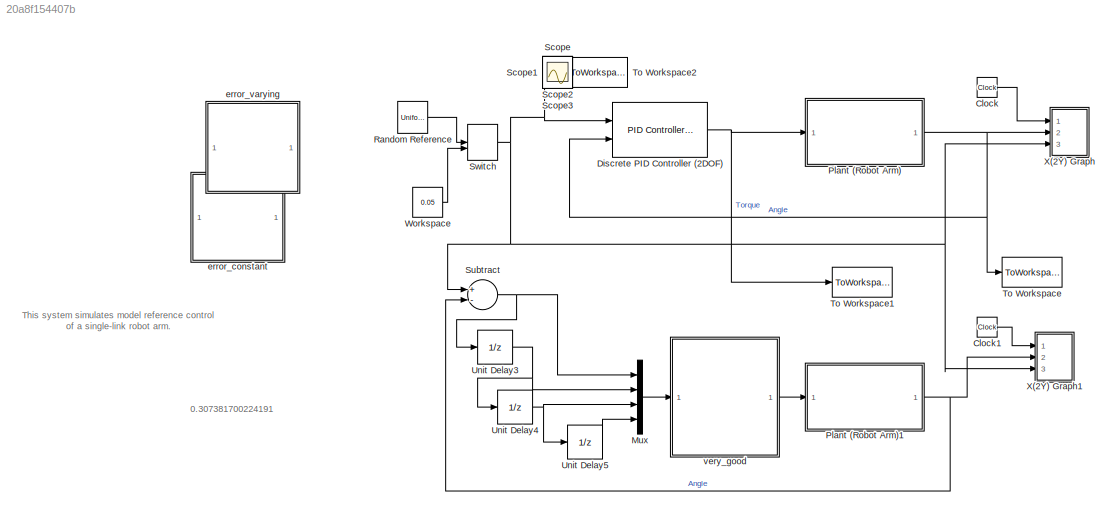
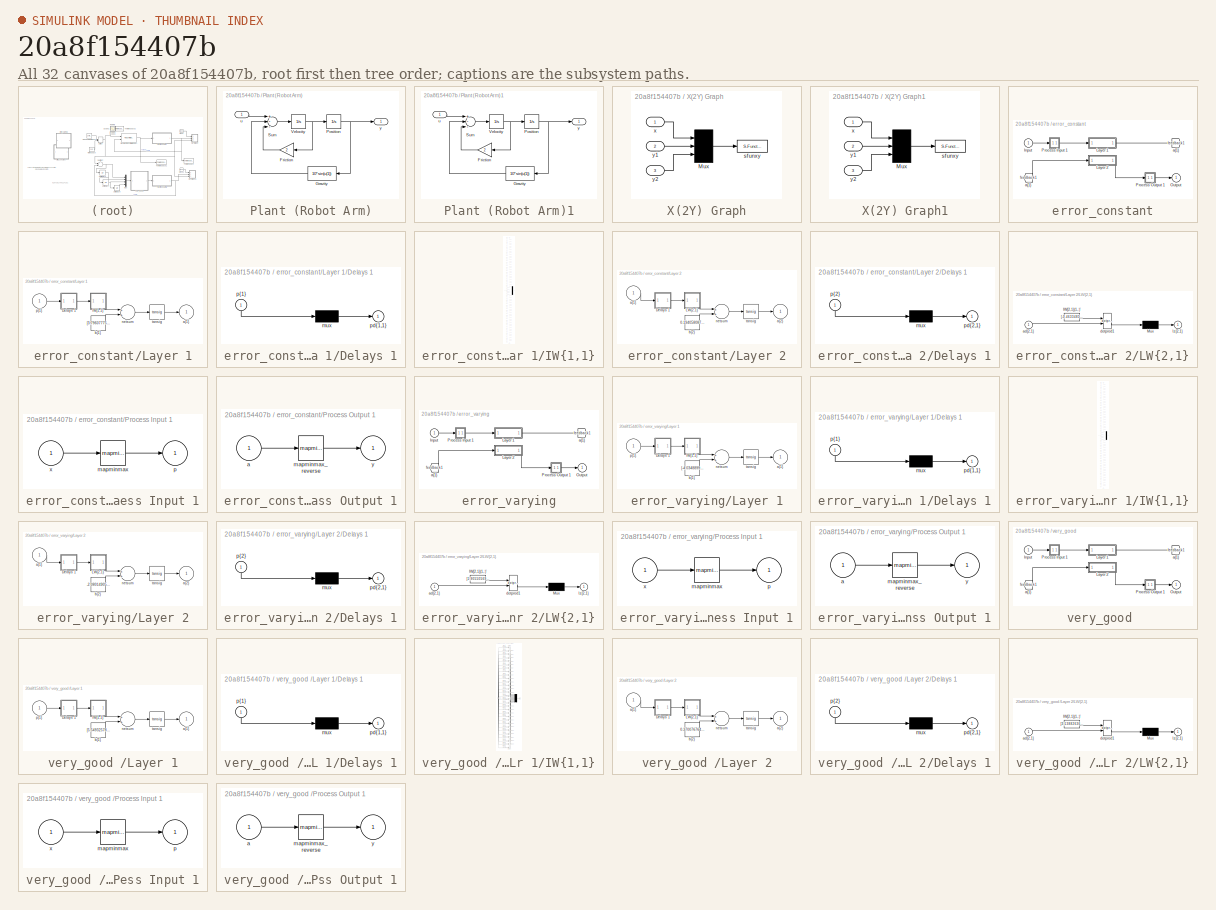
[diagram: thumbnail index - all 32 canvases of the model, root first then tree order]
MODEL slx_20a8f154407b
KIND model
CONFIG AbsTol = 1e-6
CONFIG EnableMultiTasking = off
CONFIG FixedStep = auto
CONFIG MaxStep = auto
CONFIG MinStep = auto
CONFIG RelTol = 1e-3
CONFIG SampleTimeConstraint = Unconstrained
CONFIG Solver = FixedStepAuto
CONFIG SolverName = FixedStepAuto
CONFIG StartTime = 0.0
CONFIG StopTime = 60
BLOCK [Clock] Clock
BLOCK [Clock] Clock1
BLOCK [Reference] Discrete PID Controller (2DOF)  REF=simulink/Continuous/PID Controller (2DOF)
  Ports = [2, 1]
  SourceBlock = simulink/Continuous/PID Controller (2DOF)
  SourceProductBaseCode = SL
  SourceProductName = Simulink
  SourceType = PID 2dof
BLOCK [Mux] Mux
  DisplayOption = bar
  Ports = [4, 1]
BLOCK [SubSystem] Plant (Robot Arm)
  Ports = [1, 1]
  RequestExecContextInheritance = off
BLOCK [Gain] Plant (Robot Arm)/Friction
  Gain = 2
BLOCK [Fcn] Plant (Robot Arm)/Gravity
  Expr = 10*sin(u(1))
BLOCK [Integrator] Plant (Robot Arm)/Position
  Ports = [1, 1]
  ZeroCross = off
BLOCK [Sum] Plant (Robot Arm)/Sum
  Inputs = +--
  Ports = [3, 1]
BLOCK [Integrator] Plant (Robot Arm)/Velocity
  Ports = [1, 1]
  ZeroCross = off
BLOCK [Inport] Plant (Robot Arm)/u
  IconDisplay = Port number
BLOCK [Outport] Plant (Robot Arm)/y
  IconDisplay = Port number
BLOCK [SubSystem] Plant (Robot Arm)1
  Ports = [1, 1]
  RequestExecContextInheritance = off
BLOCK [Gain] Plant (Robot Arm)1/Friction
  Gain = 2
BLOCK [Fcn] Plant (Robot Arm)1/Gravity
  Expr = 10*sin(u(1))
BLOCK [Integrator] Plant (Robot Arm)1/Position
  Ports = [1, 1]
  ZeroCross = off
BLOCK [Sum] Plant (Robot Arm)1/Sum
  Inputs = +--
  Ports = [3, 1]
BLOCK [Integrator] Plant (Robot Arm)1/Velocity
  Ports = [1, 1]
  ZeroCross = off
BLOCK [Inport] Plant (Robot Arm)1/u
  IconDisplay = Port number
BLOCK [Outport] Plant (Robot Arm)1/y
  IconDisplay = Port number
BLOCK [UniformRandomNumber] Random Reference
  Maximum = 0.2
  Minimum = -0.2
  SampleTime = 10
  Seed = randi(1000,1)
BLOCK [Scope] Scope
  Floating = off
  IOType = viewer
  NumInputPorts = 1
  Ports = []
  ScopeSpecificationString = Simulink.scopes.TimeScopeBlockCfg('CurrentConfiguration', extmgr.ConfigurationSet(extmgr.Configuration('Core','General UI',true),extmgr.Configuration('Core','Source UI',true),extmgr.Configuration('Sources','WiredSimulink',true),extmgr.Configuration('Visuals','Time Domain',true,'SerializedDisplays',{struct('MinYLimReal','-0.03897','MaxYLimReal','0.35069','YLabelReal','','MinYLimMag','0.00000','MaxY...<+1325ch>
BLOCK [Scope] Scope1
  Floating = off
  IOType = viewer
  NumInputPorts = 1
  Ports = []
  ScopeSpecificationString = Simulink.scopes.TimeScopeBlockCfg('CurrentConfiguration', extmgr.ConfigurationSet(extmgr.Configuration('Core','General UI',true),extmgr.Configuration('Core','Source UI',true),extmgr.Configuration('Sources','WiredSimulink',true,'DataLoggingVariableName','ScopeData1'),extmgr.Configuration('Visuals','Time Domain',true,'SerializedDisplays',{struct('MinYLimReal','-16381.38378','MaxYLimReal','1821.0846'...<+1390ch>
BLOCK [Scope] Scope2
  Floating = off
  IOType = viewer
  NumInputPorts = 1
  Ports = []
  ScopeSpecificationString = Simulink.scopes.TimeScopeBlockCfg('CurrentConfiguration', extmgr.ConfigurationSet(extmgr.Configuration('Core','General UI',true),extmgr.Configuration('Core','Source UI',true),extmgr.Configuration('Sources','WiredSimulink',true,'DataLoggingVariableName','ScopeData1'),extmgr.Configuration('Visuals','Time Domain',true,'SerializedDisplays',{struct('MinYLimReal','-53.32471','MaxYLimReal','61.59419','YL...<+1365ch>
BLOCK [Scope] Scope3
  Floating = off
  IOType = viewer
  NumInputPorts = 1
  Ports = []
  ScopeSpecificationString = Simulink.scopes.TimeScopeBlockCfg('CurrentConfiguration', extmgr.ConfigurationSet(extmgr.Configuration('Core','General UI',true),extmgr.Configuration('Core','Source UI',true),extmgr.Configuration('Sources','WiredSimulink',true,'DataLoggingVariableName','ScopeData2'),extmgr.Configuration('Visuals','Time Domain',true,'SerializedDisplays',{struct('MinYLimReal','-56.07545','MaxYLimReal','80.54644','YL...<+1371ch>
BLOCK [Sum] Subtract
  InputSameDT = off
  Inputs = +-
  OutDataTypeStr = Inherit: Inherit via internal rule
  Ports = [2, 1]
  SaturateOnIntegerOverflow = off
BLOCK [ManualSwitch] Switch
BLOCK [ToWorkspace] To Workspace
  FixptAsFi = on
  MaxDataPoints = inf
  Ports = [1]
  SampleTime = -1
  Save2DSignal = 3-D array (concatenate along third dimension)
  SaveFormat = Structure With Time
  VariableName = y
BLOCK [ToWorkspace] To Workspace1
  FixptAsFi = on
  MaxDataPoints = inf
  Ports = [1]
  SampleTime = -1
  Save2DSignal = 3-D array (concatenate along third dimension)
  SaveFormat = Structure With Time
  VariableName = u
BLOCK [ToWorkspace] To Workspace2
  FixptAsFi = on
  MaxDataPoints = inf
  Ports = [1]
  SampleTime = -1
  Save2DSignal = 3-D array (concatenate along third dimension)
  SaveFormat = Structure With Time
  VariableName = ref
BLOCK [UnitDelay] Unit Delay3
  InputProcessing = Elements as channels (sample based)
  SampleTime = 0.02
BLOCK [UnitDelay] Unit Delay4
  InputProcessing = Elements as channels (sample based)
  SampleTime = 0.02
BLOCK [UnitDelay] Unit Delay5
  InputProcessing = Elements as channels (sample based)
  SampleTime = 0.02
BLOCK [Constant] Workspace
  Value = 0.05
BLOCK [SubSystem] X(2Y) Graph
  CopyFcn = sfunxy2([],[],[],'CopyBlock')
  DeleteFcn = sfunxy2([],[],[],'DeleteBlock')
  LoadFcn = sfunxy2([],[],[],'LoadBlock')
  NameChangeFcn = sfunxy2([],[],[],'NameChange')
  Ports = [3]
  RequestExecContextInheritance = off
  StartFcn = sfunxy2([],[],[],'Start')
  StopFcn = sfunxy2([],[],[],'Stop')
BLOCK [Mux] X(2Y) Graph/Mux
  Inputs = 3
  Ports = [3, 1]
BLOCK [S-Function] X(2Y) Graph/sfunxy
  EnableBusSupport = off
  FunctionName = sfunxy2
  Parameters = [xmin xmax ymin ymax], st
  Ports = [1]
  SFcnIsStateOwnerBlock = off
  SFunctionDeploymentMode = off
BLOCK [Inport] X(2Y) Graph/x
  IconDisplay = Port number
BLOCK [Inport] X(2Y) Graph/y1
  IconDisplay = Port number
  Port = 2
BLOCK [Inport] X(2Y) Graph/y2
  IconDisplay = Port number
  Port = 3
BLOCK [SubSystem] X(2Y) Graph1
  CopyFcn = sfunxy2([],[],[],'CopyBlock')
  DeleteFcn = sfunxy2([],[],[],'DeleteBlock')
  LoadFcn = sfunxy2([],[],[],'LoadBlock')
  NameChangeFcn = sfunxy2([],[],[],'NameChange')
  Ports = [3]
  RequestExecContextInheritance = off
  StartFcn = sfunxy2([],[],[],'Start')
  StopFcn = sfunxy2([],[],[],'Stop')
BLOCK [Mux] X(2Y) Graph1/Mux
  Inputs = 3
  Ports = [3, 1]
BLOCK [S-Function] X(2Y) Graph1/sfunxy
  EnableBusSupport = off
  FunctionName = sfunxy2
  Parameters = [xmin xmax ymin ymax], st
  Ports = [1]
  SFcnIsStateOwnerBlock = off
  SFunctionDeploymentMode = off
BLOCK [Inport] X(2Y) Graph1/x
  IconDisplay = Port number
BLOCK [Inport] X(2Y) Graph1/y1
  IconDisplay = Port number
  Port = 2
BLOCK [Inport] X(2Y) Graph1/y2
  IconDisplay = Port number
  Port = 3
BLOCK [SubSystem] error_constant
  Ports = [1, 1]
  RequestExecContextInheritance = off
BLOCK [From] error_constant/ a{1} 
  GotoTag = feedback1
BLOCK [Inport] error_constant/Input
  IconDisplay = Port number
  PortDimensions = 4
BLOCK [SubSystem] error_constant/Layer 1
  Ports = [1, 1]
  RequestExecContextInheritance = off
BLOCK [SubSystem] error_constant/Layer 1/Delays 1
  Ports = [1, 1]
  RequestExecContextInheritance = off
BLOCK [Mux] error_constant/Layer 1/Delays 1/mux
  Inputs = 1
  Ports = [1, 1]
BLOCK [Outport] error_constant/Layer 1/Delays 1/pd{1,1}
  IconDisplay = Port number
BLOCK [Inport] error_constant/Layer 1/Delays 1/p{1}
  IconDisplay = Port number
  PortDimensions = 4
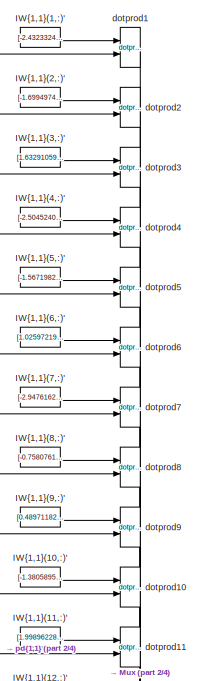
[diagram: error_constant/Layer 1/IW{1,1} - part 1/4, top center region]
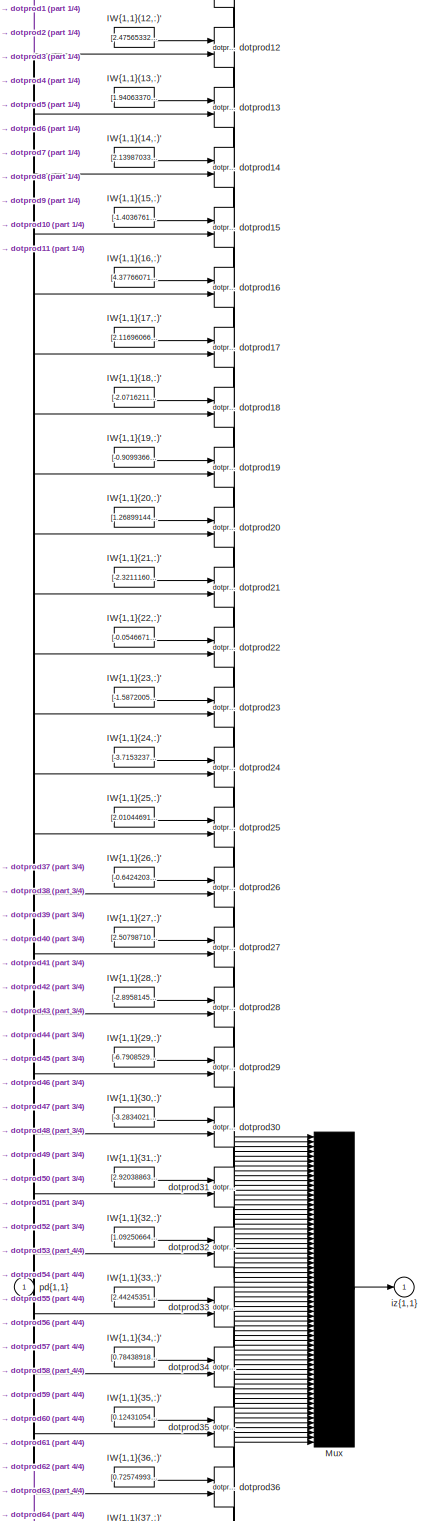
[diagram: error_constant/Layer 1/IW{1,1} - part 2/4, full width, middle band]
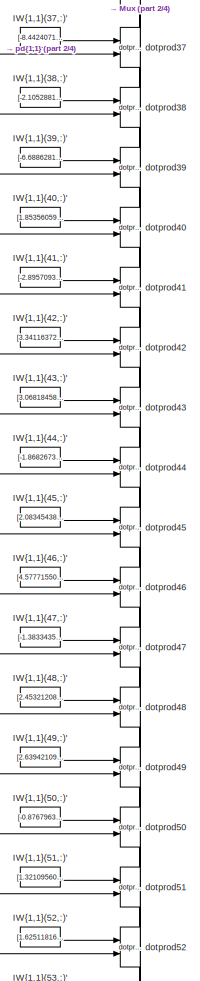
[diagram: error_constant/Layer 1/IW{1,1} - part 3/4, bottom center region]
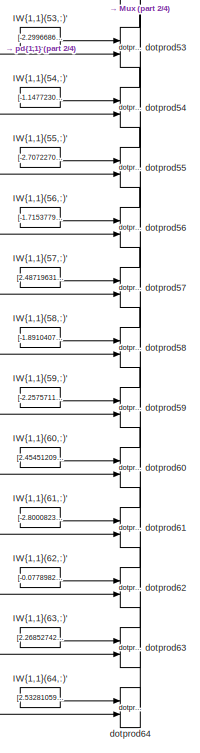
[diagram: error_constant/Layer 1/IW{1,1} - part 4/4, bottom center region]
BLOCK [SubSystem] error_constant/Layer 1/IW{1,1}
  Ports = [1, 1]
  RequestExecContextInheritance = off
BLOCK [Constant] error_constant/Layer 1/IW{1,1}/IW{1,1}(1,:)'
  Value = [-2.43233241842531100473934202454984188079833984375;0.53724084582970255130618397743091918528079986572265625;-1.7446596958500517615675562410615384578704833984375;2.769242968413069494459932684549130499362945556640625]
BLOCK [Constant] error_constant/Layer 1/IW{1,1}/IW{1,1}(10,:)'
  Value = [-1.3805895558746990037235491399769671261310577392578125;1.0523837349748867975307575761689804494380950927734375;3.32087041063710852739632173324935138225555419921875;-1.9846235619467640365343186203972436487674713134765625]
BLOCK [Constant] error_constant/Layer 1/IW{1,1}/IW{1,1}(11,:)'
  Value = [1.998962287171675011876459393533878028392791748046875;2.310661805085342468402131999027915298938751220703125;4.2825495640655990570166977704502642154693603515625;2.57581544284758745533281398820690810680389404296875]
BLOCK [Constant] error_constant/Layer 1/IW{1,1}/IW{1,1}(12,:)'
  Value = [2.475653328636938876883277771412394940853118896484375;2.51737830169140952563111568451859056949615478515625;2.271746290638229748282128639402799308300018310546875;0.2673401099274672620964565794565714895725250244140625]
BLOCK [Constant] error_constant/Layer 1/IW{1,1}/IW{1,1}(13,:)'
  Value = [1.940633708028386639199425189872272312641143798828125;-2.451157243681944208901768433861434459686279296875;0.56762750637017622690194684764719568192958831787109375;-2.335517132387092686940377461723983287811279296875]
BLOCK [Constant] error_constant/Layer 1/IW{1,1}/IW{1,1}(14,:)'
  Value = [2.13987033439976404025628653471358120441436767578125;-1.215993040349319098680780371068976819515228271484375;-1.85198147433575233122837744303978979587554931640625;-2.606168966697551159228396500111557543277740478515625]
BLOCK [Constant] error_constant/Layer 1/IW{1,1}/IW{1,1}(15,:)'
  Value = [-1.4036761768320360488360165618360042572021484375;1.553102503754810737035541023942641913890838623046875;-1.59080743976030891673190126311965286731719970703125;-2.9963855466331725807549446471966803073883056640625]
BLOCK [Constant] error_constant/Layer 1/IW{1,1}/IW{1,1}(16,:)'
  Value = [4.3776607156275613164098103879950940608978271484375;0.3087979823788054023481208787416107952594757080078125;2.421731633035435482526054329355247318744659423828125;2.079808152836895462911570575670339167118072509765625]
BLOCK [Constant] error_constant/Layer 1/IW{1,1}/IW{1,1}(17,:)'
  Value = [2.116960661167003987515045082545839250087738037109375;0.96422116321460304977364330625277943909168243408203125;-2.767232278203909157099360527354292571544647216796875;2.939053702794809819209831402986310422420501708984375]
BLOCK [Constant] error_constant/Layer 1/IW{1,1}/IW{1,1}(18,:)'
  Value = [-2.071621109135624028141364760813303291797637939453125;0.6625381885233367906806734026758931577205657958984375;3.24479108829416684756097311037592589855194091796875;0.71705773663659322370023119219695217907428741455078125]
BLOCK [Constant] error_constant/Layer 1/IW{1,1}/IW{1,1}(19,:)'
  Value = [-0.9099366307504392903382495205732993781566619873046875;1.3000059150809104568935481438529677689075469970703125;-3.259506508604137930973365655518136918544769287109375;-0.3067246086381134606568821254768408834934234619140625]
BLOCK [Constant] error_constant/Layer 1/IW{1,1}/IW{1,1}(2,:)'
  Value = [-1.6994974041828803112963441890315152704715728759765625;-0.7331392299330892203812481966451741755008697509765625;-1.7464429374093464186756818889989517629146575927734375;2.5153920966315563845228098216466605663299560546875]
BLOCK [Constant] error_constant/Layer 1/IW{1,1}/IW{1,1}(20,:)'
  Value = [1.2689914433269999793907345519983209669589996337890625;1.44436481767941327092330539016984403133392333984375;1.23468238423830545258397251018323004245758056640625;-3.534248446808714749778346231323666870594024658203125]
BLOCK [Constant] error_constant/Layer 1/IW{1,1}/IW{1,1}(21,:)'
  Value = [-2.3211160215726156508253552601672708988189697265625;-0.75725326087148359111012041466892696917057037353515625;0.352015022256641552100830949711962603032588958740234375;3.04325635920044224036473679007031023502349853515625]
BLOCK [Constant] error_constant/Layer 1/IW{1,1}/IW{1,1}(22,:)'
  Value = [-0.054667124606956725429984800257443566806614398956298828125;1.9076504975787156315192305555683560669422149658203125;2.8968876202908315775630399002693593502044677734375;2.674664878352978281128571325098164379596710205078125]
BLOCK [Constant] error_constant/Layer 1/IW{1,1}/IW{1,1}(23,:)'
  Value = [-1.5872005838303360203411784823401831090450286865234375;-2.776735900968776871167165154474787414073944091796875;-1.6042181073069359253935317610739730298519134521484375;-3.294230202681585950585940736345946788787841796875]
BLOCK [Constant] error_constant/Layer 1/IW{1,1}/IW{1,1}(24,:)'
  Value = [-3.71532373385590286574142737663350999355316162109375;-0.98781164895985795748600821752916090190410614013671875;1.69450127681222806330652019823901355266571044921875;1.136122349429470101966899164835922420024871826171875]
BLOCK [Constant] error_constant/Layer 1/IW{1,1}/IW{1,1}(25,:)'
  Value = [2.0104469118515044812056657974608242511749267578125;0.83378104226025595568927428757888264954090118408203125;1.7401999580561826608260389548377133905887603759765625;-2.92414529519173260752040732768364250659942626953125]
BLOCK [Constant] error_constant/Layer 1/IW{1,1}/IW{1,1}(26,:)'
  Value = [-0.64242036923840284412534629154833965003490447998046875;0.95659679031924815806320339106605388224124908447265625;-1.55213990530000245371411438100039958953857421875;3.995843480605863806687239048187620937824249267578125]
BLOCK [Constant] error_constant/Layer 1/IW{1,1}/IW{1,1}(27,:)'
  Value = [2.50798710062178020763212771271355450153350830078125;2.463483868568963952583317222888581454753875732421875;2.081361530338791343552884427481330931186676025390625;-1.3336083732249293110072585477610118687152862548828125]
BLOCK [Constant] error_constant/Layer 1/IW{1,1}/IW{1,1}(28,:)'
  Value = [-2.895814548680518907275427409331314265727996826171875;0.9123130571690214463131951561081223189830780029296875;-3.776567060320976221277078366256318986415863037109375;-0.96081683653641236642073408802389167249202728271484375]
BLOCK [Constant] error_constant/Layer 1/IW{1,1}/IW{1,1}(29,:)'
  Value = [-6.79085293043760973574762829230166971683502197265625;-0.329166552854214422563217112838174216449260711669921875;-2.48015441787140833440616916050203144550323486328125;-2.332738545912835359530390633153729140758514404296875]
BLOCK [Constant] error_constant/Layer 1/IW{1,1}/IW{1,1}(3,:)'
  Value = [1.632910592592653475918496042140759527683258056640625;-2.809147968952146356969024054706096649169921875;-2.10920534388511526913134730421006679534912109375;-0.991808738849886406541145333903841674327850341796875]
BLOCK [Constant] error_constant/Layer 1/IW{1,1}/IW{1,1}(30,:)'
  Value = [-3.283402143292323938084109613555483520030975341796875;-0.5005818711365408457680814535706304013729095458984375;2.7872021360557681646241690032184123992919921875;0.78151172943224056499644802897819317877292633056640625]
BLOCK [Constant] error_constant/Layer 1/IW{1,1}/IW{1,1}(31,:)'
  Value = [2.92038863306233764660646556876599788665771484375;-1.3005657920042494879453442990779876708984375;3.161709247522253019013760422240011394023895263671875;-3.608658026432543852735079781268723309040069580078125]
BLOCK [Constant] error_constant/Layer 1/IW{1,1}/IW{1,1}(32,:)'
  Value = [1.0925066474481373024474351041135378181934356689453125;-3.368607141727761433713794758659787476062774658203125;-0.44495848067301790873528943848214112222194671630859375;-2.731139525528754941063880323781631886959075927734375]
BLOCK [Constant] error_constant/Layer 1/IW{1,1}/IW{1,1}(33,:)'
  Value = [2.442453513679252896650950788171030580997467041015625;-12.07136687286119780537774204276502132415771484375;6.58277641893328802069618177483789622783660888671875;2.171780750214052257973662563017569482326507568359375]
BLOCK [Constant] error_constant/Layer 1/IW{1,1}/IW{1,1}(34,:)'
  Value = [0.78438918148621106229967381295864470303058624267578125;0.97431832031261389470699896264704875648021697998046875;2.998999415484962849376415761071257293224334716796875;-2.65601812822876492958812377764843404293060302734375]
BLOCK [Constant] error_constant/Layer 1/IW{1,1}/IW{1,1}(35,:)'
  Value = [0.1243105416810873220523347981725237332284450531005859375;-0.5824488343747067364830627411720342934131622314453125;-10.64751982130191976239075302146375179290771484375;2.876189020983356048333234866731800138950347900390625]
BLOCK [Constant] error_constant/Layer 1/IW{1,1}/IW{1,1}(36,:)'
  Value = [0.725749932060747227069441578350961208343505859375;5.9091610489142905038306707865558564662933349609375;-2.690300208309138074724842226714827120304107666015625;15.615835320780217188030292163603007793426513671875]
BLOCK [Constant] error_constant/Layer 1/IW{1,1}/IW{1,1}(37,:)'
  Value = [-8.4424071143540100337077092262916266918182373046875;-3.59804249451865931774818818666972219944000244140625;-5.5978654414502191372093875543214380741119384765625;-5.50813880159688995519218224217183887958526611328125]
BLOCK [Constant] error_constant/Layer 1/IW{1,1}/IW{1,1}(38,:)'
  Value = [-2.105288191408011488903184726950712502002716064453125;1.854349047567340758035925318836234509944915771484375;-9.1364427906518468347485395497642457485198974609375;-10.6410961844754723415462649427354335784912109375]
BLOCK [Constant] error_constant/Layer 1/IW{1,1}/IW{1,1}(39,:)'
  Value = [-6.688628166920931761296742479316890239715576171875;-6.241229353622731679251955938525497913360595703125;-0.60809564312211961123466608114540576934814453125;-7.6800384456687655898576849722303450107574462890625]
BLOCK [Constant] error_constant/Layer 1/IW{1,1}/IW{1,1}(4,:)'
  Value = [-2.504524015758663235686753978370688855648040771484375;-0.8505459236832724201349265058524906635284423828125;2.56646973206198492079010975430719554424285888671875;-1.6220434603425761821426931419409811496734619140625]
BLOCK [Constant] error_constant/Layer 1/IW{1,1}/IW{1,1}(40,:)'
  Value = [1.8535605945466839816759829773218370974063873291015625;3.380461102543363960393207889865152537822723388671875;-1.2502966001872761747648610253236256539821624755859375;1.54369856571814434431644258438609540462493896484375]
BLOCK [Constant] error_constant/Layer 1/IW{1,1}/IW{1,1}(41,:)'
  Value = [-2.8957093005595613277591837686486542224884033203125;-1.310971466724889733512782186153344810009002685546875;-2.21063775405342344271275578648783266544342041015625;-3.6232670318092008443500162684358656406402587890625]
BLOCK [Constant] error_constant/Layer 1/IW{1,1}/IW{1,1}(42,:)'
  Value = [3.34116372854472754028165581985376775264739990234375;-0.6759122895102491757057805443764664232730865478515625;0.00414673366213228443422078584035261883400380611419677734375;-2.47694216182951532090328328195028007030487060546875]
BLOCK [Constant] error_constant/Layer 1/IW{1,1}/IW{1,1}(43,:)'
  Value = [3.068184581066675686855660387664102017879486083984375;-0.463678694787951040101603439325117506086826324462890625;0.73742165176610929844258635057485662400722503662109375;2.453155465251326550202293219626881182193756103515625]
BLOCK [Constant] error_constant/Layer 1/IW{1,1}/IW{1,1}(44,:)'
  Value = [-1.8682673933279165812137989632901735603809356689453125;1.952797619549319296794465117272920906543731689453125;2.34892646780064939804333334905095398426055908203125;0.2272177852826580968237379920537932775914669036865234375]
BLOCK [Constant] error_constant/Layer 1/IW{1,1}/IW{1,1}(45,:)'
  Value = [2.083454384099825862364241402246989309787750244140625;0.688161658448492641326765806297771632671356201171875;-2.361857168734448730873509703087620437145233154296875;3.02072782125585970192105378373526036739349365234375]
BLOCK [Constant] error_constant/Layer 1/IW{1,1}/IW{1,1}(46,:)'
  Value = [4.57771550364450785508552144165150821208953857421875;2.508254280421414961210757610388100147247314453125;-0.2247505781413499936771671627866453491151332855224609375;2.02822517967594162513478295295499265193939208984375]
BLOCK [Constant] error_constant/Layer 1/IW{1,1}/IW{1,1}(47,:)'
  Value = [-1.383343595817557503124817230855114758014678955078125;2.72708964471886528002642080537043511867523193359375;2.550425418464666638129756393027491867542266845703125;0.8256193991066969051217938613262958824634552001953125]
BLOCK [Constant] error_constant/Layer 1/IW{1,1}/IW{1,1}(48,:)'
  Value = [2.4532120828969414816356220399029552936553955078125;3.684938794411537710260517997085116803646087646484375;0.416415759051700862247713530450710095465183258056640625;0.451374219234845497350505638678441755473613739013671875]
BLOCK [Constant] error_constant/Layer 1/IW{1,1}/IW{1,1}(49,:)'
  Value = [2.639421098188992953481601944076828658580780029296875;2.31616818954909842176448364625684916973114013671875;3.17737374877135447803766510332934558391571044921875;2.76379482744106130809313981444574892520904541015625]
BLOCK [Constant] error_constant/Layer 1/IW{1,1}/IW{1,1}(5,:)'
  Value = [-1.5671982901982819402775248818215914070606231689453125;2.288835277328819639564017052180133759975433349609375;2.19666639097007365677427515038289129734039306640625;1.967178850326677608251202400424517691135406494140625]
BLOCK [Constant] error_constant/Layer 1/IW{1,1}/IW{1,1}(50,:)'
  Value = [-0.8767963942749978922819309445912949740886688232421875;1.7678993740429849168549480964429676532745361328125;-2.21690614672699926046561813564039766788482666015625;-2.88041191787637185228732050745747983455657958984375]
BLOCK [Constant] error_constant/Layer 1/IW{1,1}/IW{1,1}(51,:)'
  Value = [1.3210956055405602693753053245018236339092254638671875;-0.69636004618413294142698077848763205111026763916015625;-2.8488877421823364244346521445550024509429931640625;-2.35031567687386289122741800383664667606353759765625]
BLOCK [Constant] error_constant/Layer 1/IW{1,1}/IW{1,1}(52,:)'
  Value = [1.6251181620055163978832979410071857273578643798828125;2.492464920810345763158011322957463562488555908203125;2.5030334957269513296296281623654067516326904296875;1.084068782315973589192026338423602283000946044921875]
BLOCK [Constant] error_constant/Layer 1/IW{1,1}/IW{1,1}(53,:)'
  Value = [-2.299668630456228157754594576545059680938720703125;1.3416030661639890553260556771419942378997802734375;2.61760836415864606152581472997553646564483642578125;1.8998087543333259663569378972169943153858184814453125]
BLOCK [Constant] error_constant/Layer 1/IW{1,1}/IW{1,1}(54,:)'
  Value = [-1.147723044257411562085735567961819469928741455078125;2.3205083969995765613703042617999017238616943359375;-2.811930141670857974389718947350047528743743896484375;-1.7885784915466735878197823694790713489055633544921875]
BLOCK [Constant] error_constant/Layer 1/IW{1,1}/IW{1,1}(55,:)'
  Value = [-2.707227011919772774461989683913998305797576904296875;-1.6466385621116235160599217124399729073047637939453125;2.044804785523465451291258432320319116115570068359375;-1.62117005928830959504693964845500886440277099609375]
BLOCK [Constant] error_constant/Layer 1/IW{1,1}/IW{1,1}(56,:)'
  Value = [-1.7153779251952523399182837238186039030551910400390625;2.02386574496940596645799814723432064056396484375;2.7712701147147154046024297713302075862884521484375;-1.6572281209804515800243507328559644520282745361328125]
BLOCK [Constant] error_constant/Layer 1/IW{1,1}/IW{1,1}(57,:)'
  Value = [2.487196313898447641577149624936282634735107421875;3.04560908159774701431388166383840143680572509765625;-0.55733161116825591374634996100212447345256805419921875;0.19247009759844491139091360309976153075695037841796875]
BLOCK [Constant] error_constant/Layer 1/IW{1,1}/IW{1,1}(58,:)'
  Value = [-1.8910407335101127035414947386016137897968292236328125;1.9468035968533954349624082169611938297748565673828125;-2.421808529224164008297748296172358095645904541015625;-1.431468063663114964612077528727240860462188720703125]
BLOCK [Constant] error_constant/Layer 1/IW{1,1}/IW{1,1}(59,:)'
  Value = [-2.257571126531866756437239018850959837436676025390625;-2.130711270995288231233644182793796062469482421875;-0.61668073724362371113016934032202698290348052978515625;2.13575124514144665255344079923816025257110595703125]
BLOCK [Constant] error_constant/Layer 1/IW{1,1}/IW{1,1}(6,:)'
  Value = [1.02597219581006360300534652196802198886871337890625;-2.682688873248638916635400164523161947727203369140625;2.499473436316614449737016911967657506465911865234375;-1.2487812898107224501842438257881440222263336181640625]
BLOCK [Constant] error_constant/Layer 1/IW{1,1}/IW{1,1}(60,:)'
  Value = [2.45451209884293763963114543003030121326446533203125;-1.7976197371326574359073902087402530014514923095703125;-2.512727392482329680234443003428168594837188720703125;-0.12444340714055568408724639084539376199245452880859375]
BLOCK [Constant] error_constant/Layer 1/IW{1,1}/IW{1,1}(61,:)'
  Value = [-2.800082358837008289498271551565267145633697509765625;0.37662721314935698746495518207666464149951934814453125;1.8271085480143034462940931916818954050540924072265625;2.1700214710490062230974217527545988559722900390625]
BLOCK [Constant] error_constant/Layer 1/IW{1,1}/IW{1,1}(62,:)'
  Value = [-0.07789822592963469016780209130956791341304779052734375;-1.9266685389727913335633502356358803808689117431640625;2.010906219506999104140732015366666018962860107421875;-2.93099157880860783365051247528754174709320068359375]
BLOCK [Constant] error_constant/Layer 1/IW{1,1}/IW{1,1}(63,:)'
  Value = [2.268527424746399123733908709255047142505645751953125;1.40824503216267515881554572843015193939208984375;0.03984006140648101157442084740978316403925418853759765625;-2.8945053390613111332640983164310455322265625]
BLOCK [Constant] error_constant/Layer 1/IW{1,1}/IW{1,1}(64,:)'
  Value = [2.532810593092563511419257338275201618671417236328125;-2.195770163046886214175401619286276400089263916015625;-1.6933862279552138740967848207219503819942474365234375;-1.2311754207786498316323786639259196817874908447265625]
BLOCK [Constant] error_constant/Layer 1/IW{1,1}/IW{1,1}(7,:)'
  Value = [-2.9476162952960027752169480663724243640899658203125;1.4580767561499126117041669203899800777435302734375;2.384438308440179010716519769630394876003265380859375;-0.11084095752595357620151617084047757089138031005859375]
BLOCK [Constant] error_constant/Layer 1/IW{1,1}/IW{1,1}(8,:)'
  Value = [-0.75807615660004834534646533938939683139324188232421875;-2.651593545019018893782458690111525356769561767578125;-1.9850867694408396157967899853247217833995819091796875;1.6531872707530947952392352817696519196033477783203125]
BLOCK [Constant] error_constant/Layer 1/IW{1,1}/IW{1,1}(9,:)'
  Value = [0.489711828109820335175328409604844637215137481689453125;3.3044972702809847220351002761162817478179931640625;-1.1499486227347877065341208435711450874805450439453125;-2.398093608216747885109043636475689709186553955078125]
BLOCK [Mux] error_constant/Layer 1/IW{1,1}/Mux
  Inputs = 64
  Ports = [64, 1]
BLOCK [Reference] error_constant/Layer 1/IW{1,1}/dotprod1  REF=neural/Weight Functions/dotprod
  Ports = [2, 1]
  SourceBlock = neural/Weight Functions/dotprod
  SourceProductBaseCode = NN
  SourceProductName = Neural Network Toolbox
  SourceType = DOTPROD
BLOCK [Reference] error_constant/Layer 1/IW{1,1}/dotprod10  REF=neural/Weight Functions/dotprod
  Ports = [2, 1]
  SourceBlock = neural/Weight Functions/dotprod
  SourceProductBaseCode = NN
  SourceProductName = Neural Network Toolbox
  SourceType = DOTPROD
BLOCK [Reference] error_constant/Layer 1/IW{1,1}/dotprod11  REF=neural/Weight Functions/dotprod
  Ports = [2, 1]
  SourceBlock = neural/Weight Functions/dotprod
  SourceProductBaseCode = NN
  SourceProductName = Neural Network Toolbox
  SourceType = DOTPROD
BLOCK [Reference] error_constant/Layer 1/IW{1,1}/dotprod12  REF=neural/Weight Functions/dotprod
  Ports = [2, 1]
  SourceBlock = neural/Weight Functions/dotprod
  SourceProductBaseCode = NN
  SourceProductName = Neural Network Toolbox
  SourceType = DOTPROD
BLOCK [Reference] error_constant/Layer 1/IW{1,1}/dotprod13  REF=neural/Weight Functions/dotprod
  Ports = [2, 1]
  SourceBlock = neural/Weight Functions/dotprod
  SourceProductBaseCode = NN
  SourceProductName = Neural Network Toolbox
  SourceType = DOTPROD
BLOCK [Reference] error_constant/Layer 1/IW{1,1}/dotprod14  REF=neural/Weight Functions/dotprod
  Ports = [2, 1]
  SourceBlock = neural/Weight Functions/dotprod
  SourceProductBaseCode = NN
  SourceProductName = Neural Network Toolbox
  SourceType = DOTPROD
BLOCK [Reference] error_constant/Layer 1/IW{1,1}/dotprod15  REF=neural/Weight Functions/dotprod
  Ports = [2, 1]
  SourceBlock = neural/Weight Functions/dotprod
  SourceProductBaseCode = NN
  SourceProductName = Neural Network Toolbox
  SourceType = DOTPROD
BLOCK [Reference] error_constant/Layer 1/IW{1,1}/dotprod16  REF=neural/Weight Functions/dotprod
  Ports = [2, 1]
  SourceBlock = neural/Weight Functions/dotprod
  SourceProductBaseCode = NN
  SourceProductName = Neural Network Toolbox
  SourceType = DOTPROD
BLOCK [Reference] error_constant/Layer 1/IW{1,1}/dotprod17  REF=neural/Weight Functions/dotprod
  Ports = [2, 1]
  SourceBlock = neural/Weight Functions/dotprod
  SourceProductBaseCode = NN
  SourceProductName = Neural Network Toolbox
  SourceType = DOTPROD
BLOCK [Reference] error_constant/Layer 1/IW{1,1}/dotprod18  REF=neural/Weight Functions/dotprod
  Ports = [2, 1]
  SourceBlock = neural/Weight Functions/dotprod
  SourceProductBaseCode = NN
  SourceProductName = Neural Network Toolbox
  SourceType = DOTPROD
BLOCK [Reference] error_constant/Layer 1/IW{1,1}/dotprod19  REF=neural/Weight Functions/dotprod
  Ports = [2, 1]
  SourceBlock = neural/Weight Functions/dotprod
  SourceProductBaseCode = NN
  SourceProductName = Neural Network Toolbox
  SourceType = DOTPROD
BLOCK [Reference] error_constant/Layer 1/IW{1,1}/dotprod2  REF=neural/Weight Functions/dotprod
  Ports = [2, 1]
  SourceBlock = neural/Weight Functions/dotprod
  SourceProductBaseCode = NN
  SourceProductName = Neural Network Toolbox
  SourceType = DOTPROD
BLOCK [Reference] error_constant/Layer 1/IW{1,1}/dotprod20  REF=neural/Weight Functions/dotprod
  Ports = [2, 1]
  SourceBlock = neural/Weight Functions/dotprod
  SourceProductBaseCode = NN
  SourceProductName = Neural Network Toolbox
  SourceType = DOTPROD
BLOCK [Reference] error_constant/Layer 1/IW{1,1}/dotprod21  REF=neural/Weight Functions/dotprod
  Ports = [2, 1]
  SourceBlock = neural/Weight Functions/dotprod
  SourceProductBaseCode = NN
  SourceProductName = Neural Network Toolbox
  SourceType = DOTPROD
BLOCK [Reference] error_constant/Layer 1/IW{1,1}/dotprod22  REF=neural/Weight Functions/dotprod
  Ports = [2, 1]
  SourceBlock = neural/Weight Functions/dotprod
  SourceProductBaseCode = NN
  SourceProductName = Neural Network Toolbox
  SourceType = DOTPROD
BLOCK [Reference] error_constant/Layer 1/IW{1,1}/dotprod23  REF=neural/Weight Functions/dotprod
  Ports = [2, 1]
  SourceBlock = neural/Weight Functions/dotprod
  SourceProductBaseCode = NN
  SourceProductName = Neural Network Toolbox
  SourceType = DOTPROD
BLOCK [Reference] error_constant/Layer 1/IW{1,1}/dotprod24  REF=neural/Weight Functions/dotprod
  Ports = [2, 1]
  SourceBlock = neural/Weight Functions/dotprod
  SourceProductBaseCode = NN
  SourceProductName = Neural Network Toolbox
  SourceType = DOTPROD
BLOCK [Reference] error_constant/Layer 1/IW{1,1}/dotprod25  REF=neural/Weight Functions/dotprod
  Ports = [2, 1]
  SourceBlock = neural/Weight Functions/dotprod
  SourceProductBaseCode = NN
  SourceProductName = Neural Network Toolbox
  SourceType = DOTPROD
BLOCK [Reference] error_constant/Layer 1/IW{1,1}/dotprod26  REF=neural/Weight Functions/dotprod
  Ports = [2, 1]
  SourceBlock = neural/Weight Functions/dotprod
  SourceProductBaseCode = NN
  SourceProductName = Neural Network Toolbox
  SourceType = DOTPROD
BLOCK [Reference] error_constant/Layer 1/IW{1,1}/dotprod27  REF=neural/Weight Functions/dotprod
  Ports = [2, 1]
  SourceBlock = neural/Weight Functions/dotprod
  SourceProductBaseCode = NN
  SourceProductName = Neural Network Toolbox
  SourceType = DOTPROD
BLOCK [Reference] error_constant/Layer 1/IW{1,1}/dotprod28  REF=neural/Weight Functions/dotprod
  Ports = [2, 1]
  SourceBlock = neural/Weight Functions/dotprod
  SourceProductBaseCode = NN
  SourceProductName = Neural Network Toolbox
  SourceType = DOTPROD
BLOCK [Reference] error_constant/Layer 1/IW{1,1}/dotprod29  REF=neural/Weight Functions/dotprod
  Ports = [2, 1]
  SourceBlock = neural/Weight Functions/dotprod
  SourceProductBaseCode = NN
  SourceProductName = Neural Network Toolbox
  SourceType = DOTPROD
BLOCK [Reference] error_constant/Layer 1/IW{1,1}/dotprod3  REF=neural/Weight Functions/dotprod
  Ports = [2, 1]
  SourceBlock = neural/Weight Functions/dotprod
  SourceProductBaseCode = NN
  SourceProductName = Neural Network Toolbox
  SourceType = DOTPROD
BLOCK [Reference] error_constant/Layer 1/IW{1,1}/dotprod30  REF=neural/Weight Functions/dotprod
  Ports = [2, 1]
  SourceBlock = neural/Weight Functions/dotprod
  SourceProductBaseCode = NN
  SourceProductName = Neural Network Toolbox
  SourceType = DOTPROD
BLOCK [Reference] error_constant/Layer 1/IW{1,1}/dotprod31  REF=neural/Weight Functions/dotprod
  Ports = [2, 1]
  SourceBlock = neural/Weight Functions/dotprod
  SourceProductBaseCode = NN
  SourceProductName = Neural Network Toolbox
  SourceType = DOTPROD
BLOCK [Reference] error_constant/Layer 1/IW{1,1}/dotprod32  REF=neural/Weight Functions/dotprod
  Ports = [2, 1]
  SourceBlock = neural/Weight Functions/dotprod
  SourceProductBaseCode = NN
  SourceProductName = Neural Network Toolbox
  SourceType = DOTPROD
BLOCK [Reference] error_constant/Layer 1/IW{1,1}/dotprod33  REF=neural/Weight Functions/dotprod
  Ports = [2, 1]
  SourceBlock = neural/Weight Functions/dotprod
  SourceProductBaseCode = NN
  SourceProductName = Neural Network Toolbox
  SourceType = DOTPROD
BLOCK [Reference] error_constant/Layer 1/IW{1,1}/dotprod34  REF=neural/Weight Functions/dotprod
  Ports = [2, 1]
  SourceBlock = neural/Weight Functions/dotprod
  SourceProductBaseCode = NN
  SourceProductName = Neural Network Toolbox
  SourceType = DOTPROD
BLOCK [Reference] error_constant/Layer 1/IW{1,1}/dotprod35  REF=neural/Weight Functions/dotprod
  Ports = [2, 1]
  SourceBlock = neural/Weight Functions/dotprod
  SourceProductBaseCode = NN
  SourceProductName = Neural Network Toolbox
  SourceType = DOTPROD
BLOCK [Reference] error_constant/Layer 1/IW{1,1}/dotprod36  REF=neural/Weight Functions/dotprod
  Ports = [2, 1]
  SourceBlock = neural/Weight Functions/dotprod
  SourceProductBaseCode = NN
  SourceProductName = Neural Network Toolbox
  SourceType = DOTPROD
BLOCK [Reference] error_constant/Layer 1/IW{1,1}/dotprod37  REF=neural/Weight Functions/dotprod
  Ports = [2, 1]
  SourceBlock = neural/Weight Functions/dotprod
  SourceProductBaseCode = NN
  SourceProductName = Neural Network Toolbox
  SourceType = DOTPROD
BLOCK [Reference] error_constant/Layer 1/IW{1,1}/dotprod38  REF=neural/Weight Functions/dotprod
  Ports = [2, 1]
  SourceBlock = neural/Weight Functions/dotprod
  SourceProductBaseCode = NN
  SourceProductName = Neural Network Toolbox
  SourceType = DOTPROD
BLOCK [Reference] error_constant/Layer 1/IW{1,1}/dotprod39  REF=neural/Weight Functions/dotprod
  Ports = [2, 1]
  SourceBlock = neural/Weight Functions/dotprod
  SourceProductBaseCode = NN
  SourceProductName = Neural Network Toolbox
  SourceType = DOTPROD
BLOCK [Reference] error_constant/Layer 1/IW{1,1}/dotprod4  REF=neural/Weight Functions/dotprod
  Ports = [2, 1]
  SourceBlock = neural/Weight Functions/dotprod
  SourceProductBaseCode = NN
  SourceProductName = Neural Network Toolbox
  SourceType = DOTPROD
BLOCK [Reference] error_constant/Layer 1/IW{1,1}/dotprod40  REF=neural/Weight Functions/dotprod
  Ports = [2, 1]
  SourceBlock = neural/Weight Functions/dotprod
  SourceProductBaseCode = NN
  SourceProductName = Neural Network Toolbox
  SourceType = DOTPROD
BLOCK [Reference] error_constant/Layer 1/IW{1,1}/dotprod41  REF=neural/Weight Functions/dotprod
  Ports = [2, 1]
  SourceBlock = neural/Weight Functions/dotprod
  SourceProductBaseCode = NN
  SourceProductName = Neural Network Toolbox
  SourceType = DOTPROD
BLOCK [Reference] error_constant/Layer 1/IW{1,1}/dotprod42  REF=neural/Weight Functions/dotprod
  Ports = [2, 1]
  SourceBlock = neural/Weight Functions/dotprod
  SourceProductBaseCode = NN
  SourceProductName = Neural Network Toolbox
  SourceType = DOTPROD
BLOCK [Reference] error_constant/Layer 1/IW{1,1}/dotprod43  REF=neural/Weight Functions/dotprod
  Ports = [2, 1]
  SourceBlock = neural/Weight Functions/dotprod
  SourceProductBaseCode = NN
  SourceProductName = Neural Network Toolbox
  SourceType = DOTPROD
BLOCK [Reference] error_constant/Layer 1/IW{1,1}/dotprod44  REF=neural/Weight Functions/dotprod
  Ports = [2, 1]
  SourceBlock = neural/Weight Functions/dotprod
  SourceProductBaseCode = NN
  SourceProductName = Neural Network Toolbox
  SourceType = DOTPROD
BLOCK [Reference] error_constant/Layer 1/IW{1,1}/dotprod45  REF=neural/Weight Functions/dotprod
  Ports = [2, 1]
  SourceBlock = neural/Weight Functions/dotprod
  SourceProductBaseCode = NN
  SourceProductName = Neural Network Toolbox
  SourceType = DOTPROD
BLOCK [Reference] error_constant/Layer 1/IW{1,1}/dotprod46  REF=neural/Weight Functions/dotprod
  Ports = [2, 1]
  SourceBlock = neural/Weight Functions/dotprod
  SourceProductBaseCode = NN
  SourceProductName = Neural Network Toolbox
  SourceType = DOTPROD
BLOCK [Reference] error_constant/Layer 1/IW{1,1}/dotprod47  REF=neural/Weight Functions/dotprod
  Ports = [2, 1]
  SourceBlock = neural/Weight Functions/dotprod
  SourceProductBaseCode = NN
  SourceProductName = Neural Network Toolbox
  SourceType = DOTPROD
BLOCK [Reference] error_constant/Layer 1/IW{1,1}/dotprod48  REF=neural/Weight Functions/dotprod
  Ports = [2, 1]
  SourceBlock = neural/Weight Functions/dotprod
  SourceProductBaseCode = NN
  SourceProductName = Neural Network Toolbox
  SourceType = DOTPROD
BLOCK [Reference] error_constant/Layer 1/IW{1,1}/dotprod49  REF=neural/Weight Functions/dotprod
  Ports = [2, 1]
  SourceBlock = neural/Weight Functions/dotprod
  SourceProductBaseCode = NN
  SourceProductName = Neural Network Toolbox
  SourceType = DOTPROD
BLOCK [Reference] error_constant/Layer 1/IW{1,1}/dotprod5  REF=neural/Weight Functions/dotprod
  Ports = [2, 1]
  SourceBlock = neural/Weight Functions/dotprod
  SourceProductBaseCode = NN
  SourceProductName = Neural Network Toolbox
  SourceType = DOTPROD
BLOCK [Reference] error_constant/Layer 1/IW{1,1}/dotprod50  REF=neural/Weight Functions/dotprod
  Ports = [2, 1]
  SourceBlock = neural/Weight Functions/dotprod
  SourceProductBaseCode = NN
  SourceProductName = Neural Network Toolbox
  SourceType = DOTPROD
BLOCK [Reference] error_constant/Layer 1/IW{1,1}/dotprod51  REF=neural/Weight Functions/dotprod
  Ports = [2, 1]
  SourceBlock = neural/Weight Functions/dotprod
  SourceProductBaseCode = NN
  SourceProductName = Neural Network Toolbox
  SourceType = DOTPROD
BLOCK [Reference] error_constant/Layer 1/IW{1,1}/dotprod52  REF=neural/Weight Functions/dotprod
  Ports = [2, 1]
  SourceBlock = neural/Weight Functions/dotprod
  SourceProductBaseCode = NN
  SourceProductName = Neural Network Toolbox
  SourceType = DOTPROD
BLOCK [Reference] error_constant/Layer 1/IW{1,1}/dotprod53  REF=neural/Weight Functions/dotprod
  Ports = [2, 1]
  SourceBlock = neural/Weight Functions/dotprod
  SourceProductBaseCode = NN
  SourceProductName = Neural Network Toolbox
  SourceType = DOTPROD
BLOCK [Reference] error_constant/Layer 1/IW{1,1}/dotprod54  REF=neural/Weight Functions/dotprod
  Ports = [2, 1]
  SourceBlock = neural/Weight Functions/dotprod
  SourceProductBaseCode = NN
  SourceProductName = Neural Network Toolbox
  SourceType = DOTPROD
BLOCK [Reference] error_constant/Layer 1/IW{1,1}/dotprod55  REF=neural/Weight Functions/dotprod
  Ports = [2, 1]
  SourceBlock = neural/Weight Functions/dotprod
  SourceProductBaseCode = NN
  SourceProductName = Neural Network Toolbox
  SourceType = DOTPROD
BLOCK [Reference] error_constant/Layer 1/IW{1,1}/dotprod56  REF=neural/Weight Functions/dotprod
  Ports = [2, 1]
  SourceBlock = neural/Weight Functions/dotprod
  SourceProductBaseCode = NN
  SourceProductName = Neural Network Toolbox
  SourceType = DOTPROD
BLOCK [Reference] error_constant/Layer 1/IW{1,1}/dotprod57  REF=neural/Weight Functions/dotprod
  Ports = [2, 1]
  SourceBlock = neural/Weight Functions/dotprod
  SourceProductBaseCode = NN
  SourceProductName = Neural Network Toolbox
  SourceType = DOTPROD
BLOCK [Reference] error_constant/Layer 1/IW{1,1}/dotprod58  REF=neural/Weight Functions/dotprod
  Ports = [2, 1]
  SourceBlock = neural/Weight Functions/dotprod
  SourceProductBaseCode = NN
  SourceProductName = Neural Network Toolbox
  SourceType = DOTPROD
BLOCK [Reference] error_constant/Layer 1/IW{1,1}/dotprod59  REF=neural/Weight Functions/dotprod
  Ports = [2, 1]
  SourceBlock = neural/Weight Functions/dotprod
  SourceProductBaseCode = NN
  SourceProductName = Neural Network Toolbox
  SourceType = DOTPROD
BLOCK [Reference] error_constant/Layer 1/IW{1,1}/dotprod6  REF=neural/Weight Functions/dotprod
  Ports = [2, 1]
  SourceBlock = neural/Weight Functions/dotprod
  SourceProductBaseCode = NN
  SourceProductName = Neural Network Toolbox
  SourceType = DOTPROD
BLOCK [Reference] error_constant/Layer 1/IW{1,1}/dotprod60  REF=neural/Weight Functions/dotprod
  Ports = [2, 1]
  SourceBlock = neural/Weight Functions/dotprod
  SourceProductBaseCode = NN
  SourceProductName = Neural Network Toolbox
  SourceType = DOTPROD
BLOCK [Reference] error_constant/Layer 1/IW{1,1}/dotprod61  REF=neural/Weight Functions/dotprod
  Ports = [2, 1]
  SourceBlock = neural/Weight Functions/dotprod
  SourceProductBaseCode = NN
  SourceProductName = Neural Network Toolbox
  SourceType = DOTPROD
BLOCK [Reference] error_constant/Layer 1/IW{1,1}/dotprod62  REF=neural/Weight Functions/dotprod
  Ports = [2, 1]
  SourceBlock = neural/Weight Functions/dotprod
  SourceProductBaseCode = NN
  SourceProductName = Neural Network Toolbox
  SourceType = DOTPROD
BLOCK [Reference] error_constant/Layer 1/IW{1,1}/dotprod63  REF=neural/Weight Functions/dotprod
  Ports = [2, 1]
  SourceBlock = neural/Weight Functions/dotprod
  SourceProductBaseCode = NN
  SourceProductName = Neural Network Toolbox
  SourceType = DOTPROD
BLOCK [Reference] error_constant/Layer 1/IW{1,1}/dotprod64  REF=neural/Weight Functions/dotprod
  Ports = [2, 1]
  SourceBlock = neural/Weight Functions/dotprod
  SourceProductBaseCode = NN
  SourceProductName = Neural Network Toolbox
  SourceType = DOTPROD
BLOCK [Reference] error_constant/Layer 1/IW{1,1}/dotprod7  REF=neural/Weight Functions/dotprod
  Ports = [2, 1]
  SourceBlock = neural/Weight Functions/dotprod
  SourceProductBaseCode = NN
  SourceProductName = Neural Network Toolbox
  SourceType = DOTPROD
BLOCK [Reference] error_constant/Layer 1/IW{1,1}/dotprod8  REF=neural/Weight Functions/dotprod
  Ports = [2, 1]
  SourceBlock = neural/Weight Functions/dotprod
  SourceProductBaseCode = NN
  SourceProductName = Neural Network Toolbox
  SourceType = DOTPROD
BLOCK [Reference] error_constant/Layer 1/IW{1,1}/dotprod9  REF=neural/Weight Functions/dotprod
  Ports = [2, 1]
  SourceBlock = neural/Weight Functions/dotprod
  SourceProductBaseCode = NN
  SourceProductName = Neural Network Toolbox
  SourceType = DOTPROD
BLOCK [Outport] error_constant/Layer 1/IW{1,1}/iz{1,1}
  IconDisplay = Port number
BLOCK [Inport] error_constant/Layer 1/IW{1,1}/pd{1,1}
  IconDisplay = Port number
  PortDimensions = 4
BLOCK [Outport] error_constant/Layer 1/a{1}
  IconDisplay = Port number
  InitialOutput = [0;0;0;0;0;0;0;0;0;0;0;0;0;0;0;0;0;0;0;0;0;0;0;0;0;0;0;0;0;0;0;0;0;0;0;0;0;0;0;0;0;0;0;0;0;0;0;0;0;0;0;0;0;0;0;0;0;0;0;0;0;0;0;0]
BLOCK [Constant] error_constant/Layer 1/b{1}
  Value = [3.79607775929432289530041089165024459362030029296875;4.26564587412558449130983717623166739940643310546875;-3.7649913284174676419979732600040733814239501953125;3.539198937923476950828671760973520576953887939453125;3.31493315035476410201908947783522307872772216796875;-3.233467794829397501388257296639494597911834716796875;3.25903747377164787479841834283433854579925537109375;2.91863198163465309420416...<+3153ch>
BLOCK [Sum] error_constant/Layer 1/netsum
  Inputs = 2
  Ports = [2, 1]
BLOCK [Inport] error_constant/Layer 1/p{1}
  IconDisplay = Port number
  PortDimensions = 4
BLOCK [Reference] error_constant/Layer 1/tansig  REF=neural/Transfer Functions/tansig
  Ports = [1, 1]
  SourceBlock = neural/Transfer Functions/tansig
  SourceProductBaseCode = NN
  SourceProductName = Neural Network Toolbox
  SourceType = TANSIG
BLOCK [SubSystem] error_constant/Layer 2
  Ports = [1, 1]
  RequestExecContextInheritance = off
BLOCK [SubSystem] error_constant/Layer 2/Delays 1
  Ports = [1, 1]
  RequestExecContextInheritance = off
BLOCK [Mux] error_constant/Layer 2/Delays 1/mux
  Inputs = 1
  Ports = [1, 1]
BLOCK [Outport] error_constant/Layer 2/Delays 1/pd{2,1}
  IconDisplay = Port number
BLOCK [Inport] error_constant/Layer 2/Delays 1/p{2}
  IconDisplay = Port number
  PortDimensions = 64
BLOCK [SubSystem] error_constant/Layer 2/LW{2,1}
  Ports = [1, 1]
  RequestExecContextInheritance = off
BLOCK [Constant] error_constant/Layer 2/LW{2,1}/IW{2,1}(1,:)'
  Value = [-0.46334853776193762886492777397506870329380035400390625;-0.68023219015442648593960939251701347529888153076171875;-1.0192740001082400969067975893267430365085601806640625;0.40316367688946253000636943397694267332553863525390625;0.282960138258647464493122924977797083556652069091796875;0.286328443658654396841711786692030727863311767578125;-0.6308207097738962598754142163670621812343597412109375;0.5213...<+3126ch>
BLOCK [Mux] error_constant/Layer 2/LW{2,1}/Mux
  Inputs = 1
  Ports = [1, 1]
BLOCK [Inport] error_constant/Layer 2/LW{2,1}/ad{2,1}
  IconDisplay = Port number
  PortDimensions = 64
BLOCK [Reference] error_constant/Layer 2/LW{2,1}/dotprod1  REF=neural/Weight Functions/dotprod
  Ports = [2, 1]
  SourceBlock = neural/Weight Functions/dotprod
  SourceProductBaseCode = NN
  SourceProductName = Neural Network Toolbox
  SourceType = DOTPROD
BLOCK [Outport] error_constant/Layer 2/LW{2,1}/lz{2,1}
  IconDisplay = Port number
BLOCK [Inport] error_constant/Layer 2/a{1} 
  IconDisplay = Port number
  PortDimensions = 64
BLOCK [Outport] error_constant/Layer 2/a{2}
  IconDisplay = Port number
  InitialOutput = 0
BLOCK [Constant] error_constant/Layer 2/b{2}
  Value = 0.1940580877277021387694588838712661527097225189208984375
BLOCK [Sum] error_constant/Layer 2/netsum
  Inputs = 2
  Ports = [2, 1]
BLOCK [Reference] error_constant/Layer 2/tansig  REF=neural/Transfer Functions/tansig
  Ports = [1, 1]
  SourceBlock = neural/Transfer Functions/tansig
  SourceProductBaseCode = NN
  SourceProductName = Neural Network Toolbox
  SourceType = TANSIG
BLOCK [Outport] error_constant/Output
  IconDisplay = Port number
  InitialOutput = 0
BLOCK [SubSystem] error_constant/Process Input 1
  Ports = [1, 1]
  RequestExecContextInheritance = off
BLOCK [Reference] error_constant/Process Input 1/mapminmax  REF=neural/Processing Functions/mapminmax
  Ports = [1, 1]
  SourceBlock = neural/Processing Functions/mapminmax
  SourceProductBaseCode = NN
  SourceProductName = Neural Network Toolbox
  SourceType = MAPMINMAX Preprocess
BLOCK [Outport] error_constant/Process Input 1/p
  IconDisplay = Port number
  PortDimensions = 4
BLOCK [Inport] error_constant/Process Input 1/x
  IconDisplay = Port number
  PortDimensions = 4
BLOCK [SubSystem] error_constant/Process Output 1
  Ports = [1, 1]
  RequestExecContextInheritance = off
BLOCK [Inport] error_constant/Process Output 1/a
  IconDisplay = Port number
  PortDimensions = 1
BLOCK [Reference] error_constant/Process Output 1/mapminmax_reverse  REF=neural/Processing Functions/mapminmax_reverse
  Ports = [1, 1]
  SourceBlock = neural/Processing Functions/mapminmax_reverse
  SourceProductBaseCode = NN
  SourceProductName = Neural Network Toolbox
  SourceType = MAPMINMAX Reverse Process
BLOCK [Outport] error_constant/Process Output 1/y
  IconDisplay = Port number
  PortDimensions = 1
BLOCK [Goto] error_constant/a{1}
  GotoTag = feedback1
BLOCK [SubSystem] error_varying
  Ports = [1, 1]
  RequestExecContextInheritance = off
BLOCK [From] error_varying/ a{1} 
  GotoTag = feedback1
BLOCK [Inport] error_varying/Input
  IconDisplay = Port number
  PortDimensions = 4
BLOCK [SubSystem] error_varying/Layer 1
  Ports = [1, 1]
  RequestExecContextInheritance = off
BLOCK [SubSystem] error_varying/Layer 1/Delays 1
  Ports = [1, 1]
  RequestExecContextInheritance = off
BLOCK [Mux] error_varying/Layer 1/Delays 1/mux
  Inputs = 1
  Ports = [1, 1]
BLOCK [Outport] error_varying/Layer 1/Delays 1/pd{1,1}
  IconDisplay = Port number
BLOCK [Inport] error_varying/Layer 1/Delays 1/p{1}
  IconDisplay = Port number
  PortDimensions = 4
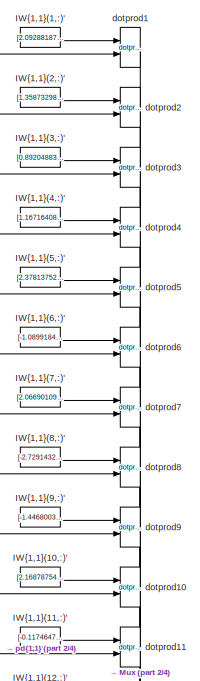
[diagram: error_varying/Layer 1/IW{1,1} - part 1/4, top center region]
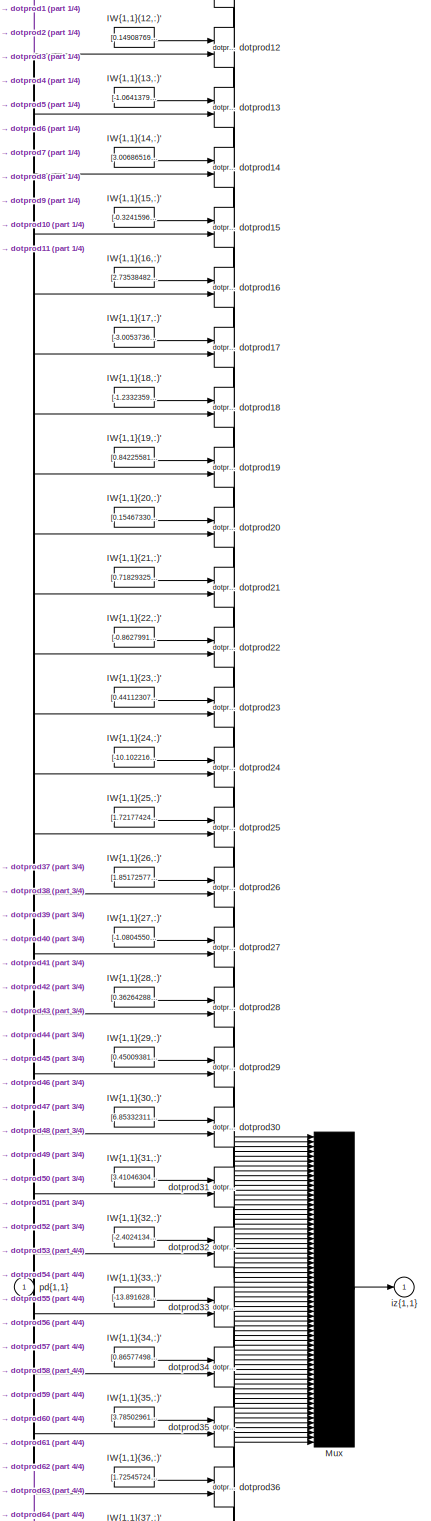
[diagram: error_varying/Layer 1/IW{1,1} - part 2/4, full width, middle band]
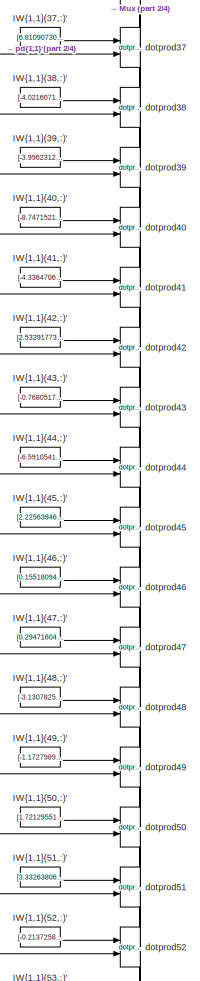
[diagram: error_varying/Layer 1/IW{1,1} - part 3/4, bottom center region]
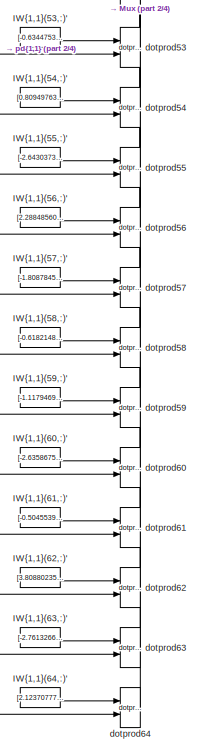
[diagram: error_varying/Layer 1/IW{1,1} - part 4/4, bottom center region]
BLOCK [SubSystem] error_varying/Layer 1/IW{1,1}
  Ports = [1, 1]
  RequestExecContextInheritance = off
BLOCK [Constant] error_varying/Layer 1/IW{1,1}/IW{1,1}(1,:)'
  Value = [2.092881878428506592371149963582865893840789794921875;-2.08795140959085490095503701013512909412384033203125;-1.5509927917503461003434495069086551666259765625;2.051771443745760592491933493874967098236083984375]
BLOCK [Constant] error_varying/Layer 1/IW{1,1}/IW{1,1}(10,:)'
  Value = [2.168787542811787094620967764058150351047515869140625;-3.194201127080929847323886860976926982402801513671875;1.81311781390410775571808699169196188449859619140625;-3.95851066216176139533899913658387959003448486328125]
BLOCK [Constant] error_varying/Layer 1/IW{1,1}/IW{1,1}(11,:)'
  Value = [-0.117464743795543558047000942679005675017833709716796875;-2.024051518517297143517907898058183491230010986328125;1.3450577564323376034138846080168150365352630615234375;-0.90114984904438155677297572765382938086986541748046875]
BLOCK [Constant] error_varying/Layer 1/IW{1,1}/IW{1,1}(12,:)'
  Value = [0.1490876905856967915564581517173792235553264617919921875;-3.171026519151638911608870330383069813251495361328125;-0.1382165524610755313883458939017145894467830657958984375;1.413896019112036217535433024750091135501861572265625]
BLOCK [Constant] error_varying/Layer 1/IW{1,1}/IW{1,1}(13,:)'
  Value = [-1.06413798277247817480883895768783986568450927734375;3.674485699296683005599106763838790357112884521484375;-1.1432297831646816010930933771305717527866363525390625;-1.2685416919501453225649356681969948112964630126953125]
BLOCK [Constant] error_varying/Layer 1/IW{1,1}/IW{1,1}(14,:)'
  Value = [3.006865160783255941367997365887276828289031982421875;-0.251815187693561204351766491527087055146694183349609375;-0.441348301697702727341976469688233919441699981689453125;-1.2056863236437662667555059670121408998966217041015625]
BLOCK [Constant] error_varying/Layer 1/IW{1,1}/IW{1,1}(15,:)'
  Value = [-0.324159639868743132407047369270003400743007659912109375;0.765996714039040238475308797205798327922821044921875;0.53381850331170122014867729376419447362422943115234375;4.86638171953799147928521051653660833835601806640625]
BLOCK [Constant] error_varying/Layer 1/IW{1,1}/IW{1,1}(16,:)'
  Value = [2.735384820819713791451022188994102180004119873046875;-1.3183938316587331396334548117010854184627532958984375;-1.1783793543880725085415406283573247492313385009765625;-1.0692426201097842142218041772139258682727813720703125]
BLOCK [Constant] error_varying/Layer 1/IW{1,1}/IW{1,1}(17,:)'
  Value = [-3.005373668390158403695977540337480604648590087890625;-0.64301442163476796309851124533452093601226806640625;-0.62776077774395500075144127549719996750354766845703125;-0.1332473391966286502263727697936701588332653045654296875]
BLOCK [Constant] error_varying/Layer 1/IW{1,1}/IW{1,1}(18,:)'
  Value = [-1.233235972101929700528444300289265811443328857421875;-1.36122749800698716882152439211495220661163330078125;0.6646127092611273656785897401277907192707061767578125;2.382685963242005211526475250138901174068450927734375]
BLOCK [Constant] error_varying/Layer 1/IW{1,1}/IW{1,1}(19,:)'
  Value = [0.842255816243994370751124733942560851573944091796875;0.2490277170360401248760950920768664218485355377197265625;-0.65979963109259032183473436816711910068988800048828125;0.55244152428273085586596380380797199904918670654296875]
BLOCK [Constant] error_varying/Layer 1/IW{1,1}/IW{1,1}(2,:)'
  Value = [1.3587329889449086817165834872866980731487274169921875;3.59695810731691612005533897900022566318511962890625;-1.5825722229317984446339551141136325895786285400390625;-1.2745870849052403084300522095873020589351654052734375]
BLOCK [Constant] error_varying/Layer 1/IW{1,1}/IW{1,1}(20,:)'
  Value = [0.1546733063257410278890091603898326866328716278076171875;4.01771599462202377850417178706265985965728759765625;9.2492485737723644234620223869569599628448486328125;7.78887401740201834599020003224723041057586669921875]
BLOCK [Constant] error_varying/Layer 1/IW{1,1}/IW{1,1}(21,:)'
  Value = [0.71829325224463846932820842994260601699352264404296875;-1.456634904586860290720551347476430237293243408203125;-3.47399695446784750885171888512559235095977783203125;3.567123959759122886481463865493424236774444580078125]
BLOCK [Constant] error_varying/Layer 1/IW{1,1}/IW{1,1}(22,:)'
  Value = [-0.86279914490490428047309023895650170743465423583984375;3.1041356119936676094539507175795733928680419921875;0.90006987276045846702032804387272335588932037353515625;2.066455871940337640779716821270994842052459716796875]
BLOCK [Constant] error_varying/Layer 1/IW{1,1}/IW{1,1}(23,:)'
  Value = [0.44112307963324770554436327074654400348663330078125;-3.432763811258587427488464527414180338382720947265625;0.89723675427882643163002285291440784931182861328125;-14.023312124122011113058761111460626125335693359375]
BLOCK [Constant] error_varying/Layer 1/IW{1,1}/IW{1,1}(24,:)'
  Value = [-10.102216886542915830204947269521653652191162109375;-7.96257214826256198847431733156554400920867919921875;-0.4712982366608760020909585364279337227344512939453125;-0.563416144761945236751898846705444157123565673828125]
BLOCK [Constant] error_varying/Layer 1/IW{1,1}/IW{1,1}(25,:)'
  Value = [1.7217742465385563743751617948873899877071380615234375;4.4351915470023239862484842888079583644866943359375;-3.8727081616477381231788967852480709552764892578125;0.9927385885480497496047291861032135784626007080078125]
BLOCK [Constant] error_varying/Layer 1/IW{1,1}/IW{1,1}(26,:)'
  Value = [1.851725779347119793527554065803997218608856201171875;-4.02463288972469257487318827770650386810302734375;-2.758882008647400407852501302841119468212127685546875;1.139280647216116104658567564911209046840667724609375]
BLOCK [Constant] error_varying/Layer 1/IW{1,1}/IW{1,1}(27,:)'
  Value = [-1.080455018885951634644015939556993544101715087890625;1.56389312554937731647441978566348552703857421875;-0.7246430082528310112621738880989141762256622314453125;-1.6340095473477591614397397279390133917331695556640625]
BLOCK [Constant] error_varying/Layer 1/IW{1,1}/IW{1,1}(28,:)'
  Value = [0.362642883585333752893831160690751858055591583251953125;-0.424584602845129055470607681854744441807270050048828125;1.650267652909170212893741336301900446414947509765625;-4.00375048163714541971103244577534496784210205078125]
BLOCK [Constant] error_varying/Layer 1/IW{1,1}/IW{1,1}(29,:)'
  Value = [0.450093815308996558766096995896077714860439300537109375;8.6166852076955624539778000325895845890045166015625;8.703450087415117053524227230809628963470458984375;-0.9090554265062571470679131380165927112102508544921875]
BLOCK [Constant] error_varying/Layer 1/IW{1,1}/IW{1,1}(3,:)'
  Value = [0.89204883676936008729541072170832194387912750244140625;-1.9476127624120749270986152623663656413555145263671875;-0.25908877143987918412193494077655486762523651123046875;3.383833244217310021184630386414937674999237060546875]
BLOCK [Constant] error_varying/Layer 1/IW{1,1}/IW{1,1}(30,:)'
  Value = [6.85332311019997231227307565859518945217132568359375;-10.0645899708818884477068422711454331874847412109375;-3.530485532471015819311332961660809814929962158203125;-9.9558409558111407022806815803050994873046875]
BLOCK [Constant] error_varying/Layer 1/IW{1,1}/IW{1,1}(31,:)'
  Value = [3.41046304932995436587361837155185639858245849609375;3.457721189896556523990511777810752391815185546875;-2.53168124661366977790066812303848564624786376953125;-2.105861892671867519055695083807222545146942138671875]
BLOCK [Constant] error_varying/Layer 1/IW{1,1}/IW{1,1}(32,:)'
  Value = [-2.4024134259714600148072349838912487030029296875;-1.78371426959622159102991645340807735919952392578125;-1.649512569051859944835314308875240385532379150390625;-2.798006666683512388971166728879325091838836669921875]
BLOCK [Constant] error_varying/Layer 1/IW{1,1}/IW{1,1}(33,:)'
  Value = [-13.8916283826430007053431836538948118686676025390625;0.0232049454843758877486958880353995482437312602996826171875;-3.723634587081554148113582414225675165653228759765625;-1.3559762780158053363521730716456659138202667236328125]
BLOCK [Constant] error_varying/Layer 1/IW{1,1}/IW{1,1}(34,:)'
  Value = [0.8657749854115761589667954467586241662502288818359375;-3.432047817370233122602485309471376240253448486328125;-1.2488254683815125378743005057913251221179962158203125;0.1628528205323877819932221200360800139605998992919921875]
BLOCK [Constant] error_varying/Layer 1/IW{1,1}/IW{1,1}(35,:)'
  Value = [3.78502961669624315987903173663653433322906494140625;-3.93235215712837060664242017082870006561279296875;13.204116063681620829584062448702752590179443359375;6.3312553505694264543990357196889817714691162109375]
BLOCK [Constant] error_varying/Layer 1/IW{1,1}/IW{1,1}(36,:)'
  Value = [1.7254572424196317204092565589235164225101470947265625;-2.68535469021549300094875434297136962413787841796875;4.88319999184186048779565680888481438159942626953125;-4.01129584879163747501706893672235310077667236328125]
BLOCK [Constant] error_varying/Layer 1/IW{1,1}/IW{1,1}(37,:)'
  Value = [6.8109073078713802118500098004005849361419677734375;6.52631656905699042425794687005691230297088623046875;2.771949203234168823684058224898763000965118408203125;-0.81243961629675254254578931067953817546367645263671875]
BLOCK [Constant] error_varying/Layer 1/IW{1,1}/IW{1,1}(38,:)'
  Value = [-4.02160711272221593759468305506743490695953369140625;-1.4273784096334425353092001387267373502254486083984375;-3.09988892843464736159830863471142947673797607421875;-1.6280125537452490025458473610342480242252349853515625]
BLOCK [Constant] error_varying/Layer 1/IW{1,1}/IW{1,1}(39,:)'
  Value = [-3.9962312587315320655534378602169454097747802734375;2.743502896834477677856511945719830691814422607421875;1.0099832759810685178791800353792496025562286376953125;2.674930561609480950124861919903196394443511962890625]
BLOCK [Constant] error_varying/Layer 1/IW{1,1}/IW{1,1}(4,:)'
  Value = [1.1671640844245831925007905738311819732189178466796875;-2.565509678345041510993951305863447487354278564453125;0.03251281006670213302722771686603664420545101165771484375;2.81805150468592113810473165358416736125946044921875]
BLOCK [Constant] error_varying/Layer 1/IW{1,1}/IW{1,1}(40,:)'
  Value = [-8.747152192944401605245730024762451648712158203125;-5.3606604013135115138766195741482079029083251953125;1.2405949635662334440411314062657766044139862060546875;-0.793992424132714536000321459141559898853302001953125]
BLOCK [Constant] error_varying/Layer 1/IW{1,1}/IW{1,1}(41,:)'
  Value = [-4.33647069036161525446004816330969333648681640625;-0.60180777910314053880114215644425712525844573974609375;-4.41584743462868711816327049746178090572357177734375;2.09468520427389393034900422208011150360107421875]
BLOCK [Constant] error_varying/Layer 1/IW{1,1}/IW{1,1}(42,:)'
  Value = [2.532917734040335044909397765877656638622283935546875;-1.494281431678045723998593530268408358097076416015625;0.86883510291657273238996594955096952617168426513671875;-1.1822092358283757818071535439230501651763916015625]
BLOCK [Constant] error_varying/Layer 1/IW{1,1}/IW{1,1}(43,:)'
  Value = [-0.7680517311897718801816381528624333441257476806640625;-1.9608091692238815983984068225254304707050323486328125;-5.59059336793233807583192174206487834453582763671875;-1.9730540929009894313139739097096025943756103515625]
BLOCK [Constant] error_varying/Layer 1/IW{1,1}/IW{1,1}(44,:)'
  Value = [-6.591054104823069081930952961556613445281982421875;-4.0349434554591656620914363884367048740386962890625;-3.927059099407683273597058359882794320583343505859375;-1.6917185741035469792592493831762112677097320556640625]
BLOCK [Constant] error_varying/Layer 1/IW{1,1}/IW{1,1}(45,:)'
  Value = [2.225639460603134001104308481444604694843292236328125;3.78034073466958187026421001064591109752655029296875;2.748429089749417908450368486228398978710174560546875;4.36895292349137687182292211218737065792083740234375]
BLOCK [Constant] error_varying/Layer 1/IW{1,1}/IW{1,1}(46,:)'
  Value = [0.1551809404698029914992929434447432868182659149169921875;0.361536764692571122026265584281645715236663818359375;-2.31432327752875277582234048168174922466278076171875;-0.8545303799622983031980538726202212274074554443359375]
BLOCK [Constant] error_varying/Layer 1/IW{1,1}/IW{1,1}(47,:)'
  Value = [0.294716047536057013100929680149420164525508880615234375;2.2736464368972661986845196224749088287353515625;1.5300188910736187697381183170364238321781158447265625;3.549874262939100244551582363783381879329681396484375]
BLOCK [Constant] error_varying/Layer 1/IW{1,1}/IW{1,1}(48,:)'
  Value = [-3.130782579417407784916349555714987218379974365234375;-1.76255048977836548118602877366356551647186279296875;-1.2468043407408624378973627244704402983188629150390625;-3.393362267598903248000397070427425205707550048828125]
BLOCK [Constant] error_varying/Layer 1/IW{1,1}/IW{1,1}(49,:)'
  Value = [-1.17279897808438260398133934359066188335418701171875;0.72297714901823473265807251664227806031703948974609375;-0.58905097301224007555475736808148212730884552001953125;3.654038158967617189176735337241552770137786865234375]
BLOCK [Constant] error_varying/Layer 1/IW{1,1}/IW{1,1}(5,:)'
  Value = [2.378137527542232287913748223218135535717010498046875;-1.8354793060642349278310803128988482058048248291015625;0.9257926094331987432184405406587757170200347900390625;-1.995968390064595698873972651199437677860260009765625]
BLOCK [Constant] error_varying/Layer 1/IW{1,1}/IW{1,1}(50,:)'
  Value = [1.7212955158835943070272378463414497673511505126953125;-0.1916061813128926427651776975835673511028289794921875;0.396526597703553473905913051567040383815765380859375;-2.044700553217306815412257492425851523876190185546875]
BLOCK [Constant] error_varying/Layer 1/IW{1,1}/IW{1,1}(51,:)'
  Value = [3.332638069393771385051650213426910340785980224609375;2.278848806521995395968360753613524138927459716796875;2.07362656566505432209623904782347381114959716796875;-1.8354713103474875612874939179164357483386993408203125]
BLOCK [Constant] error_varying/Layer 1/IW{1,1}/IW{1,1}(52,:)'
  Value = [-0.2137258499674831446757394814994768239557743072509765625;-2.9566956063182612268747107009403407573699951171875;4.73133210510793755787517511635087430477142333984375;2.3618242887180418421166905318386852741241455078125]
BLOCK [Constant] error_varying/Layer 1/IW{1,1}/IW{1,1}(53,:)'
  Value = [-0.634475359900088076159363481565378606319427490234375;3.307364541624139064879273064434528350830078125;-1.953716029681679788865267255459912121295928955078125;0.74646216686715372023996906136744655668735504150390625]
BLOCK [Constant] error_varying/Layer 1/IW{1,1}/IW{1,1}(54,:)'
  Value = [0.80949763660754692207177640739246271550655364990234375;3.652504640957498605047248929622583091259002685546875;0.6926140751391678396231554870610125362873077392578125;1.7576647827053459849366845446638762950897216796875]
BLOCK [Constant] error_varying/Layer 1/IW{1,1}/IW{1,1}(55,:)'
  Value = [-2.643037332388488369616652562399394810199737548828125;-0.6690863335327448258027516203583218157291412353515625;-3.790439858264114558750179639901034533977508544921875;1.6997832932710268405429587801336310803890228271484375]
BLOCK [Constant] error_varying/Layer 1/IW{1,1}/IW{1,1}(56,:)'
  Value = [2.288485602796967999239541313727386295795440673828125;2.62614783864315359807051208917982876300811767578125;2.309981243761723757046411265037022531032562255859375;-1.3597216490647701103711142422980628907680511474609375]
BLOCK [Constant] error_varying/Layer 1/IW{1,1}/IW{1,1}(57,:)'
  Value = [-1.8087845412315448623274960482376627624034881591796875;1.8749343511868235001571747488924302160739898681640625;2.259250165957773948122166984830982983112335205078125;0.59806944708769493868061317698447965085506439208984375]
BLOCK [Constant] error_varying/Layer 1/IW{1,1}/IW{1,1}(58,:)'
  Value = [-0.61821489700294385283285691912169568240642547607421875;0.02544742527627430472847436249139718711376190185546875;-3.796377313222116800517369483713991940021514892578125;2.336919069357153322386011495837010443210601806640625]
BLOCK [Constant] error_varying/Layer 1/IW{1,1}/IW{1,1}(59,:)'
  Value = [-1.117946990883121660687038456671871244907379150390625;-2.66672749865770253308028259198181331157684326171875;2.266944386892259633015100916964001953601837158203125;2.137701403118715592910348277655430138111114501953125]
BLOCK [Constant] error_varying/Layer 1/IW{1,1}/IW{1,1}(6,:)'
  Value = [-1.0899184530446677232617957997717894613742828369140625;2.588116145367116427422615743125788867473602294921875;-0.36428025496242300018678861306398175656795501708984375;-0.8330262816908413636696195680997334420680999755859375]
BLOCK [Constant] error_varying/Layer 1/IW{1,1}/IW{1,1}(60,:)'
  Value = [-2.635867578027530466755479210405610501766204833984375;1.1653934418432438935298023352515883743762969970703125;1.110802699214221700430016426253132522106170654296875;1.8957037099570224203404222862445749342441558837890625]
BLOCK [Constant] error_varying/Layer 1/IW{1,1}/IW{1,1}(61,:)'
  Value = [-0.50455393254928193602637520598364062607288360595703125;-3.89191898842299988103832220076583325862884521484375;1.8452737976400916952712805141345597803592681884765625;0.8515421615272966704424106865189969539642333984375]
BLOCK [Constant] error_varying/Layer 1/IW{1,1}/IW{1,1}(62,:)'
  Value = [3.808802358387099129544139941572211682796478271484375;1.8782238290188109086642498368746601045131683349609375;0.91941944354334648181747979833744466304779052734375;-2.54250540955296600031942944042384624481201171875]
BLOCK [Constant] error_varying/Layer 1/IW{1,1}/IW{1,1}(63,:)'
  Value = [-2.76132662612111889899324523867107927799224853515625;2.585210160074491891890602346393279731273651123046875;0.79511222346621635015395668233395554125308990478515625;-1.4603359166237890320871883886866271495819091796875]
BLOCK [Constant] error_varying/Layer 1/IW{1,1}/IW{1,1}(64,:)'
  Value = [2.123707774385479307710511420737020671367645263671875;-0.57247250120844750398418909753672778606414794921875;-2.284833206779741221481572210905142128467559814453125;2.369436212534717700606279322528280317783355712890625]
BLOCK [Constant] error_varying/Layer 1/IW{1,1}/IW{1,1}(7,:)'
  Value = [2.06690109902259511187594398506917059421539306640625;-0.68384804040051283546830518389469943940639495849609375;-3.158578332553700906970561845810152590274810791015625;-1.4147511344473802097354564466513693332672119140625]
BLOCK [Constant] error_varying/Layer 1/IW{1,1}/IW{1,1}(8,:)'
  Value = [-2.729143200734371443871850715368054807186126708984375;1.897708041382085486503683569026179611682891845703125;-2.23886177500115568506089402944780886173248291015625;1.2032837071752415791792145682848058640956878662109375]
BLOCK [Constant] error_varying/Layer 1/IW{1,1}/IW{1,1}(9,:)'
  Value = [-1.4468003133383533498346196211059577763080596923828125;-2.063844208012291847609276373987086117267608642578125;1.56152685669150503855462375213392078876495361328125;-3.8270618410718437729656216106377542018890380859375]
BLOCK [Mux] error_varying/Layer 1/IW{1,1}/Mux
  Inputs = 64
  Ports = [64, 1]
BLOCK [Reference] error_varying/Layer 1/IW{1,1}/dotprod1  REF=neural/Weight Functions/dotprod
  Ports = [2, 1]
  SourceBlock = neural/Weight Functions/dotprod
  SourceProductBaseCode = NN
  SourceProductName = Neural Network Toolbox
  SourceType = DOTPROD
BLOCK [Reference] error_varying/Layer 1/IW{1,1}/dotprod10  REF=neural/Weight Functions/dotprod
  Ports = [2, 1]
  SourceBlock = neural/Weight Functions/dotprod
  SourceProductBaseCode = NN
  SourceProductName = Neural Network Toolbox
  SourceType = DOTPROD
BLOCK [Reference] error_varying/Layer 1/IW{1,1}/dotprod11  REF=neural/Weight Functions/dotprod
  Ports = [2, 1]
  SourceBlock = neural/Weight Functions/dotprod
  SourceProductBaseCode = NN
  SourceProductName = Neural Network Toolbox
  SourceType = DOTPROD
BLOCK [Reference] error_varying/Layer 1/IW{1,1}/dotprod12  REF=neural/Weight Functions/dotprod
  Ports = [2, 1]
  SourceBlock = neural/Weight Functions/dotprod
  SourceProductBaseCode = NN
  SourceProductName = Neural Network Toolbox
  SourceType = DOTPROD
BLOCK [Reference] error_varying/Layer 1/IW{1,1}/dotprod13  REF=neural/Weight Functions/dotprod
  Ports = [2, 1]
  SourceBlock = neural/Weight Functions/dotprod
  SourceProductBaseCode = NN
  SourceProductName = Neural Network Toolbox
  SourceType = DOTPROD
BLOCK [Reference] error_varying/Layer 1/IW{1,1}/dotprod14  REF=neural/Weight Functions/dotprod
  Ports = [2, 1]
  SourceBlock = neural/Weight Functions/dotprod
  SourceProductBaseCode = NN
  SourceProductName = Neural Network Toolbox
  SourceType = DOTPROD
BLOCK [Reference] error_varying/Layer 1/IW{1,1}/dotprod15  REF=neural/Weight Functions/dotprod
  Ports = [2, 1]
  SourceBlock = neural/Weight Functions/dotprod
  SourceProductBaseCode = NN
  SourceProductName = Neural Network Toolbox
  SourceType = DOTPROD
BLOCK [Reference] error_varying/Layer 1/IW{1,1}/dotprod16  REF=neural/Weight Functions/dotprod
  Ports = [2, 1]
  SourceBlock = neural/Weight Functions/dotprod
  SourceProductBaseCode = NN
  SourceProductName = Neural Network Toolbox
  SourceType = DOTPROD
BLOCK [Reference] error_varying/Layer 1/IW{1,1}/dotprod17  REF=neural/Weight Functions/dotprod
  Ports = [2, 1]
  SourceBlock = neural/Weight Functions/dotprod
  SourceProductBaseCode = NN
  SourceProductName = Neural Network Toolbox
  SourceType = DOTPROD
BLOCK [Reference] error_varying/Layer 1/IW{1,1}/dotprod18  REF=neural/Weight Functions/dotprod
  Ports = [2, 1]
  SourceBlock = neural/Weight Functions/dotprod
  SourceProductBaseCode = NN
  SourceProductName = Neural Network Toolbox
  SourceType = DOTPROD
BLOCK [Reference] error_varying/Layer 1/IW{1,1}/dotprod19  REF=neural/Weight Functions/dotprod
  Ports = [2, 1]
  SourceBlock = neural/Weight Functions/dotprod
  SourceProductBaseCode = NN
  SourceProductName = Neural Network Toolbox
  SourceType = DOTPROD
BLOCK [Reference] error_varying/Layer 1/IW{1,1}/dotprod2  REF=neural/Weight Functions/dotprod
  Ports = [2, 1]
  SourceBlock = neural/Weight Functions/dotprod
  SourceProductBaseCode = NN
  SourceProductName = Neural Network Toolbox
  SourceType = DOTPROD
BLOCK [Reference] error_varying/Layer 1/IW{1,1}/dotprod20  REF=neural/Weight Functions/dotprod
  Ports = [2, 1]
  SourceBlock = neural/Weight Functions/dotprod
  SourceProductBaseCode = NN
  SourceProductName = Neural Network Toolbox
  SourceType = DOTPROD
BLOCK [Reference] error_varying/Layer 1/IW{1,1}/dotprod21  REF=neural/Weight Functions/dotprod
  Ports = [2, 1]
  SourceBlock = neural/Weight Functions/dotprod
  SourceProductBaseCode = NN
  SourceProductName = Neural Network Toolbox
  SourceType = DOTPROD
BLOCK [Reference] error_varying/Layer 1/IW{1,1}/dotprod22  REF=neural/Weight Functions/dotprod
  Ports = [2, 1]
  SourceBlock = neural/Weight Functions/dotprod
  SourceProductBaseCode = NN
  SourceProductName = Neural Network Toolbox
  SourceType = DOTPROD
BLOCK [Reference] error_varying/Layer 1/IW{1,1}/dotprod23  REF=neural/Weight Functions/dotprod
  Ports = [2, 1]
  SourceBlock = neural/Weight Functions/dotprod
  SourceProductBaseCode = NN
  SourceProductName = Neural Network Toolbox
  SourceType = DOTPROD
BLOCK [Reference] error_varying/Layer 1/IW{1,1}/dotprod24  REF=neural/Weight Functions/dotprod
  Ports = [2, 1]
  SourceBlock = neural/Weight Functions/dotprod
  SourceProductBaseCode = NN
  SourceProductName = Neural Network Toolbox
  SourceType = DOTPROD
BLOCK [Reference] error_varying/Layer 1/IW{1,1}/dotprod25  REF=neural/Weight Functions/dotprod
  Ports = [2, 1]
  SourceBlock = neural/Weight Functions/dotprod
  SourceProductBaseCode = NN
  SourceProductName = Neural Network Toolbox
  SourceType = DOTPROD
BLOCK [Reference] error_varying/Layer 1/IW{1,1}/dotprod26  REF=neural/Weight Functions/dotprod
  Ports = [2, 1]
  SourceBlock = neural/Weight Functions/dotprod
  SourceProductBaseCode = NN
  SourceProductName = Neural Network Toolbox
  SourceType = DOTPROD
BLOCK [Reference] error_varying/Layer 1/IW{1,1}/dotprod27  REF=neural/Weight Functions/dotprod
  Ports = [2, 1]
  SourceBlock = neural/Weight Functions/dotprod
  SourceProductBaseCode = NN
  SourceProductName = Neural Network Toolbox
  SourceType = DOTPROD
BLOCK [Reference] error_varying/Layer 1/IW{1,1}/dotprod28  REF=neural/Weight Functions/dotprod
  Ports = [2, 1]
  SourceBlock = neural/Weight Functions/dotprod
  SourceProductBaseCode = NN
  SourceProductName = Neural Network Toolbox
  SourceType = DOTPROD
BLOCK [Reference] error_varying/Layer 1/IW{1,1}/dotprod29  REF=neural/Weight Functions/dotprod
  Ports = [2, 1]
  SourceBlock = neural/Weight Functions/dotprod
  SourceProductBaseCode = NN
  SourceProductName = Neural Network Toolbox
  SourceType = DOTPROD
BLOCK [Reference] error_varying/Layer 1/IW{1,1}/dotprod3  REF=neural/Weight Functions/dotprod
  Ports = [2, 1]
  SourceBlock = neural/Weight Functions/dotprod
  SourceProductBaseCode = NN
  SourceProductName = Neural Network Toolbox
  SourceType = DOTPROD
BLOCK [Reference] error_varying/Layer 1/IW{1,1}/dotprod30  REF=neural/Weight Functions/dotprod
  Ports = [2, 1]
  SourceBlock = neural/Weight Functions/dotprod
  SourceProductBaseCode = NN
  SourceProductName = Neural Network Toolbox
  SourceType = DOTPROD
BLOCK [Reference] error_varying/Layer 1/IW{1,1}/dotprod31  REF=neural/Weight Functions/dotprod
  Ports = [2, 1]
  SourceBlock = neural/Weight Functions/dotprod
  SourceProductBaseCode = NN
  SourceProductName = Neural Network Toolbox
  SourceType = DOTPROD
BLOCK [Reference] error_varying/Layer 1/IW{1,1}/dotprod32  REF=neural/Weight Functions/dotprod
  Ports = [2, 1]
  SourceBlock = neural/Weight Functions/dotprod
  SourceProductBaseCode = NN
  SourceProductName = Neural Network Toolbox
  SourceType = DOTPROD
BLOCK [Reference] error_varying/Layer 1/IW{1,1}/dotprod33  REF=neural/Weight Functions/dotprod
  Ports = [2, 1]
  SourceBlock = neural/Weight Functions/dotprod
  SourceProductBaseCode = NN
  SourceProductName = Neural Network Toolbox
  SourceType = DOTPROD
BLOCK [Reference] error_varying/Layer 1/IW{1,1}/dotprod34  REF=neural/Weight Functions/dotprod
  Ports = [2, 1]
  SourceBlock = neural/Weight Functions/dotprod
  SourceProductBaseCode = NN
  SourceProductName = Neural Network Toolbox
  SourceType = DOTPROD
BLOCK [Reference] error_varying/Layer 1/IW{1,1}/dotprod35  REF=neural/Weight Functions/dotprod
  Ports = [2, 1]
  SourceBlock = neural/Weight Functions/dotprod
  SourceProductBaseCode = NN
  SourceProductName = Neural Network Toolbox
  SourceType = DOTPROD
BLOCK [Reference] error_varying/Layer 1/IW{1,1}/dotprod36  REF=neural/Weight Functions/dotprod
  Ports = [2, 1]
  SourceBlock = neural/Weight Functions/dotprod
  SourceProductBaseCode = NN
  SourceProductName = Neural Network Toolbox
  SourceType = DOTPROD
BLOCK [Reference] error_varying/Layer 1/IW{1,1}/dotprod37  REF=neural/Weight Functions/dotprod
  Ports = [2, 1]
  SourceBlock = neural/Weight Functions/dotprod
  SourceProductBaseCode = NN
  SourceProductName = Neural Network Toolbox
  SourceType = DOTPROD
BLOCK [Reference] error_varying/Layer 1/IW{1,1}/dotprod38  REF=neural/Weight Functions/dotprod
  Ports = [2, 1]
  SourceBlock = neural/Weight Functions/dotprod
  SourceProductBaseCode = NN
  SourceProductName = Neural Network Toolbox
  SourceType = DOTPROD
BLOCK [Reference] error_varying/Layer 1/IW{1,1}/dotprod39  REF=neural/Weight Functions/dotprod
  Ports = [2, 1]
  SourceBlock = neural/Weight Functions/dotprod
  SourceProductBaseCode = NN
  SourceProductName = Neural Network Toolbox
  SourceType = DOTPROD
BLOCK [Reference] error_varying/Layer 1/IW{1,1}/dotprod4  REF=neural/Weight Functions/dotprod
  Ports = [2, 1]
  SourceBlock = neural/Weight Functions/dotprod
  SourceProductBaseCode = NN
  SourceProductName = Neural Network Toolbox
  SourceType = DOTPROD
BLOCK [Reference] error_varying/Layer 1/IW{1,1}/dotprod40  REF=neural/Weight Functions/dotprod
  Ports = [2, 1]
  SourceBlock = neural/Weight Functions/dotprod
  SourceProductBaseCode = NN
  SourceProductName = Neural Network Toolbox
  SourceType = DOTPROD
BLOCK [Reference] error_varying/Layer 1/IW{1,1}/dotprod41  REF=neural/Weight Functions/dotprod
  Ports = [2, 1]
  SourceBlock = neural/Weight Functions/dotprod
  SourceProductBaseCode = NN
  SourceProductName = Neural Network Toolbox
  SourceType = DOTPROD
BLOCK [Reference] error_varying/Layer 1/IW{1,1}/dotprod42  REF=neural/Weight Functions/dotprod
  Ports = [2, 1]
  SourceBlock = neural/Weight Functions/dotprod
  SourceProductBaseCode = NN
  SourceProductName = Neural Network Toolbox
  SourceType = DOTPROD
BLOCK [Reference] error_varying/Layer 1/IW{1,1}/dotprod43  REF=neural/Weight Functions/dotprod
  Ports = [2, 1]
  SourceBlock = neural/Weight Functions/dotprod
  SourceProductBaseCode = NN
  SourceProductName = Neural Network Toolbox
  SourceType = DOTPROD
BLOCK [Reference] error_varying/Layer 1/IW{1,1}/dotprod44  REF=neural/Weight Functions/dotprod
  Ports = [2, 1]
  SourceBlock = neural/Weight Functions/dotprod
  SourceProductBaseCode = NN
  SourceProductName = Neural Network Toolbox
  SourceType = DOTPROD
BLOCK [Reference] error_varying/Layer 1/IW{1,1}/dotprod45  REF=neural/Weight Functions/dotprod
  Ports = [2, 1]
  SourceBlock = neural/Weight Functions/dotprod
  SourceProductBaseCode = NN
  SourceProductName = Neural Network Toolbox
  SourceType = DOTPROD
BLOCK [Reference] error_varying/Layer 1/IW{1,1}/dotprod46  REF=neural/Weight Functions/dotprod
  Ports = [2, 1]
  SourceBlock = neural/Weight Functions/dotprod
  SourceProductBaseCode = NN
  SourceProductName = Neural Network Toolbox
  SourceType = DOTPROD
BLOCK [Reference] error_varying/Layer 1/IW{1,1}/dotprod47  REF=neural/Weight Functions/dotprod
  Ports = [2, 1]
  SourceBlock = neural/Weight Functions/dotprod
  SourceProductBaseCode = NN
  SourceProductName = Neural Network Toolbox
  SourceType = DOTPROD
BLOCK [Reference] error_varying/Layer 1/IW{1,1}/dotprod48  REF=neural/Weight Functions/dotprod
  Ports = [2, 1]
  SourceBlock = neural/Weight Functions/dotprod
  SourceProductBaseCode = NN
  SourceProductName = Neural Network Toolbox
  SourceType = DOTPROD
BLOCK [Reference] error_varying/Layer 1/IW{1,1}/dotprod49  REF=neural/Weight Functions/dotprod
  Ports = [2, 1]
  SourceBlock = neural/Weight Functions/dotprod
  SourceProductBaseCode = NN
  SourceProductName = Neural Network Toolbox
  SourceType = DOTPROD
BLOCK [Reference] error_varying/Layer 1/IW{1,1}/dotprod5  REF=neural/Weight Functions/dotprod
  Ports = [2, 1]
  SourceBlock = neural/Weight Functions/dotprod
  SourceProductBaseCode = NN
  SourceProductName = Neural Network Toolbox
  SourceType = DOTPROD
BLOCK [Reference] error_varying/Layer 1/IW{1,1}/dotprod50  REF=neural/Weight Functions/dotprod
  Ports = [2, 1]
  SourceBlock = neural/Weight Functions/dotprod
  SourceProductBaseCode = NN
  SourceProductName = Neural Network Toolbox
  SourceType = DOTPROD
BLOCK [Reference] error_varying/Layer 1/IW{1,1}/dotprod51  REF=neural/Weight Functions/dotprod
  Ports = [2, 1]
  SourceBlock = neural/Weight Functions/dotprod
  SourceProductBaseCode = NN
  SourceProductName = Neural Network Toolbox
  SourceType = DOTPROD
BLOCK [Reference] error_varying/Layer 1/IW{1,1}/dotprod52  REF=neural/Weight Functions/dotprod
  Ports = [2, 1]
  SourceBlock = neural/Weight Functions/dotprod
  SourceProductBaseCode = NN
  SourceProductName = Neural Network Toolbox
  SourceType = DOTPROD
BLOCK [Reference] error_varying/Layer 1/IW{1,1}/dotprod53  REF=neural/Weight Functions/dotprod
  Ports = [2, 1]
  SourceBlock = neural/Weight Functions/dotprod
  SourceProductBaseCode = NN
  SourceProductName = Neural Network Toolbox
  SourceType = DOTPROD
BLOCK [Reference] error_varying/Layer 1/IW{1,1}/dotprod54  REF=neural/Weight Functions/dotprod
  Ports = [2, 1]
  SourceBlock = neural/Weight Functions/dotprod
  SourceProductBaseCode = NN
  SourceProductName = Neural Network Toolbox
  SourceType = DOTPROD
BLOCK [Reference] error_varying/Layer 1/IW{1,1}/dotprod55  REF=neural/Weight Functions/dotprod
  Ports = [2, 1]
  SourceBlock = neural/Weight Functions/dotprod
  SourceProductBaseCode = NN
  SourceProductName = Neural Network Toolbox
  SourceType = DOTPROD
BLOCK [Reference] error_varying/Layer 1/IW{1,1}/dotprod56  REF=neural/Weight Functions/dotprod
  Ports = [2, 1]
  SourceBlock = neural/Weight Functions/dotprod
  SourceProductBaseCode = NN
  SourceProductName = Neural Network Toolbox
  SourceType = DOTPROD
BLOCK [Reference] error_varying/Layer 1/IW{1,1}/dotprod57  REF=neural/Weight Functions/dotprod
  Ports = [2, 1]
  SourceBlock = neural/Weight Functions/dotprod
  SourceProductBaseCode = NN
  SourceProductName = Neural Network Toolbox
  SourceType = DOTPROD
BLOCK [Reference] error_varying/Layer 1/IW{1,1}/dotprod58  REF=neural/Weight Functions/dotprod
  Ports = [2, 1]
  SourceBlock = neural/Weight Functions/dotprod
  SourceProductBaseCode = NN
  SourceProductName = Neural Network Toolbox
  SourceType = DOTPROD
BLOCK [Reference] error_varying/Layer 1/IW{1,1}/dotprod59  REF=neural/Weight Functions/dotprod
  Ports = [2, 1]
  SourceBlock = neural/Weight Functions/dotprod
  SourceProductBaseCode = NN
  SourceProductName = Neural Network Toolbox
  SourceType = DOTPROD
BLOCK [Reference] error_varying/Layer 1/IW{1,1}/dotprod6  REF=neural/Weight Functions/dotprod
  Ports = [2, 1]
  SourceBlock = neural/Weight Functions/dotprod
  SourceProductBaseCode = NN
  SourceProductName = Neural Network Toolbox
  SourceType = DOTPROD
BLOCK [Reference] error_varying/Layer 1/IW{1,1}/dotprod60  REF=neural/Weight Functions/dotprod
  Ports = [2, 1]
  SourceBlock = neural/Weight Functions/dotprod
  SourceProductBaseCode = NN
  SourceProductName = Neural Network Toolbox
  SourceType = DOTPROD
BLOCK [Reference] error_varying/Layer 1/IW{1,1}/dotprod61  REF=neural/Weight Functions/dotprod
  Ports = [2, 1]
  SourceBlock = neural/Weight Functions/dotprod
  SourceProductBaseCode = NN
  SourceProductName = Neural Network Toolbox
  SourceType = DOTPROD
BLOCK [Reference] error_varying/Layer 1/IW{1,1}/dotprod62  REF=neural/Weight Functions/dotprod
  Ports = [2, 1]
  SourceBlock = neural/Weight Functions/dotprod
  SourceProductBaseCode = NN
  SourceProductName = Neural Network Toolbox
  SourceType = DOTPROD
BLOCK [Reference] error_varying/Layer 1/IW{1,1}/dotprod63  REF=neural/Weight Functions/dotprod
  Ports = [2, 1]
  SourceBlock = neural/Weight Functions/dotprod
  SourceProductBaseCode = NN
  SourceProductName = Neural Network Toolbox
  SourceType = DOTPROD
BLOCK [Reference] error_varying/Layer 1/IW{1,1}/dotprod64  REF=neural/Weight Functions/dotprod
  Ports = [2, 1]
  SourceBlock = neural/Weight Functions/dotprod
  SourceProductBaseCode = NN
  SourceProductName = Neural Network Toolbox
  SourceType = DOTPROD
BLOCK [Reference] error_varying/Layer 1/IW{1,1}/dotprod7  REF=neural/Weight Functions/dotprod
  Ports = [2, 1]
  SourceBlock = neural/Weight Functions/dotprod
  SourceProductBaseCode = NN
  SourceProductName = Neural Network Toolbox
  SourceType = DOTPROD
BLOCK [Reference] error_varying/Layer 1/IW{1,1}/dotprod8  REF=neural/Weight Functions/dotprod
  Ports = [2, 1]
  SourceBlock = neural/Weight Functions/dotprod
  SourceProductBaseCode = NN
  SourceProductName = Neural Network Toolbox
  SourceType = DOTPROD
BLOCK [Reference] error_varying/Layer 1/IW{1,1}/dotprod9  REF=neural/Weight Functions/dotprod
  Ports = [2, 1]
  SourceBlock = neural/Weight Functions/dotprod
  SourceProductBaseCode = NN
  SourceProductName = Neural Network Toolbox
  SourceType = DOTPROD
BLOCK [Outport] error_varying/Layer 1/IW{1,1}/iz{1,1}
  IconDisplay = Port number
BLOCK [Inport] error_varying/Layer 1/IW{1,1}/pd{1,1}
  IconDisplay = Port number
  PortDimensions = 4
BLOCK [Outport] error_varying/Layer 1/a{1}
  IconDisplay = Port number
  InitialOutput = [0;0;0;0;0;0;0;0;0;0;0;0;0;0;0;0;0;0;0;0;0;0;0;0;0;0;0;0;0;0;0;0;0;0;0;0;0;0;0;0;0;0;0;0;0;0;0;0;0;0;0;0;0;0;0;0;0;0;0;0;0;0;0;0]
BLOCK [Constant] error_varying/Layer 1/b{1}
  Value = [-4.0348899796054826794033942860551178455352783203125;-3.9136084722632897836547272163443267345428466796875;-3.6348415483558511596129392273724079132080078125;-3.543944539610482724611983940121717751026153564453125;-3.94585399242113599171943860710598528385162353515625;4.93594630966109182423906531766988337039947509765625;-3.04025188769144083522633081884123384952545166015625;2.7767476064159608561965342...<+3071ch>
BLOCK [Sum] error_varying/Layer 1/netsum
  Inputs = 2
  Ports = [2, 1]
BLOCK [Inport] error_varying/Layer 1/p{1}
  IconDisplay = Port number
  PortDimensions = 4
BLOCK [Reference] error_varying/Layer 1/tansig  REF=neural/Transfer Functions/tansig
  Ports = [1, 1]
  SourceBlock = neural/Transfer Functions/tansig
  SourceProductBaseCode = NN
  SourceProductName = Neural Network Toolbox
  SourceType = TANSIG
BLOCK [SubSystem] error_varying/Layer 2
  Ports = [1, 1]
  RequestExecContextInheritance = off
BLOCK [SubSystem] error_varying/Layer 2/Delays 1
  Ports = [1, 1]
  RequestExecContextInheritance = off
BLOCK [Mux] error_varying/Layer 2/Delays 1/mux
  Inputs = 1
  Ports = [1, 1]
BLOCK [Outport] error_varying/Layer 2/Delays 1/pd{2,1}
  IconDisplay = Port number
BLOCK [Inport] error_varying/Layer 2/Delays 1/p{2}
  IconDisplay = Port number
  PortDimensions = 64
BLOCK [SubSystem] error_varying/Layer 2/LW{2,1}
  Ports = [1, 1]
  RequestExecContextInheritance = off
BLOCK [Constant] error_varying/Layer 2/LW{2,1}/IW{2,1}(1,:)'
  Value = [1.905505698183821206015409188694320619106292724609375;-3.83109137602781490983261392102576792240142822265625;2.4177920367224405850947732687927782535552978515625;2.30519687532290884490748794632963836193084716796875;1.55571045709290078917774735600687563419342041015625;1.34452657310894085895824900944717228412628173828125;3.8765095990888251975547973415814340114593505859375;-1.5721255674900620480372026...<+3023ch>
BLOCK [Mux] error_varying/Layer 2/LW{2,1}/Mux
  Inputs = 1
  Ports = [1, 1]
BLOCK [Inport] error_varying/Layer 2/LW{2,1}/ad{2,1}
  IconDisplay = Port number
  PortDimensions = 64
BLOCK [Reference] error_varying/Layer 2/LW{2,1}/dotprod1  REF=neural/Weight Functions/dotprod
  Ports = [2, 1]
  SourceBlock = neural/Weight Functions/dotprod
  SourceProductBaseCode = NN
  SourceProductName = Neural Network Toolbox
  SourceType = DOTPROD
BLOCK [Outport] error_varying/Layer 2/LW{2,1}/lz{2,1}
  IconDisplay = Port number
BLOCK [Inport] error_varying/Layer 2/a{1} 
  IconDisplay = Port number
  PortDimensions = 64
BLOCK [Outport] error_varying/Layer 2/a{2}
  IconDisplay = Port number
  InitialOutput = 0
BLOCK [Constant] error_varying/Layer 2/b{2}
  Value = -2.08014905947176576006540926755405962467193603515625
BLOCK [Sum] error_varying/Layer 2/netsum
  Inputs = 2
  Ports = [2, 1]
BLOCK [Reference] error_varying/Layer 2/tansig  REF=neural/Transfer Functions/tansig
  Ports = [1, 1]
  SourceBlock = neural/Transfer Functions/tansig
  SourceProductBaseCode = NN
  SourceProductName = Neural Network Toolbox
  SourceType = TANSIG
BLOCK [Outport] error_varying/Output
  IconDisplay = Port number
  InitialOutput = 0
BLOCK [SubSystem] error_varying/Process Input 1
  Ports = [1, 1]
  RequestExecContextInheritance = off
BLOCK [Reference] error_varying/Process Input 1/mapminmax  REF=neural/Processing Functions/mapminmax
  Ports = [1, 1]
  SourceBlock = neural/Processing Functions/mapminmax
  SourceProductBaseCode = NN
  SourceProductName = Neural Network Toolbox
  SourceType = MAPMINMAX Preprocess
BLOCK [Outport] error_varying/Process Input 1/p
  IconDisplay = Port number
  PortDimensions = 4
BLOCK [Inport] error_varying/Process Input 1/x
  IconDisplay = Port number
  PortDimensions = 4
BLOCK [SubSystem] error_varying/Process Output 1
  Ports = [1, 1]
  RequestExecContextInheritance = off
BLOCK [Inport] error_varying/Process Output 1/a
  IconDisplay = Port number
  PortDimensions = 1
BLOCK [Reference] error_varying/Process Output 1/mapminmax_reverse  REF=neural/Processing Functions/mapminmax_reverse
  Ports = [1, 1]
  SourceBlock = neural/Processing Functions/mapminmax_reverse
  SourceProductBaseCode = NN
  SourceProductName = Neural Network Toolbox
  SourceType = MAPMINMAX Reverse Process
BLOCK [Outport] error_varying/Process Output 1/y
  IconDisplay = Port number
  PortDimensions = 1
BLOCK [Goto] error_varying/a{1}
  GotoTag = feedback1
BLOCK [SubSystem] very_good 
  Ports = [1, 1]
  RequestExecContextInheritance = off
BLOCK [From] very_good / a{1} 
  GotoTag = feedback1
BLOCK [Inport] very_good /Input
  IconDisplay = Port number
  PortDimensions = 4
BLOCK [SubSystem] very_good /Layer 1
  Ports = [1, 1]
  RequestExecContextInheritance = off
BLOCK [SubSystem] very_good /Layer 1/Delays 1
  Ports = [1, 1]
  RequestExecContextInheritance = off
BLOCK [Mux] very_good /Layer 1/Delays 1/mux
  Inputs = 1
  Ports = [1, 1]
BLOCK [Outport] very_good /Layer 1/Delays 1/pd{1,1}
  IconDisplay = Port number
BLOCK [Inport] very_good /Layer 1/Delays 1/p{1}
  IconDisplay = Port number
  PortDimensions = 4
BLOCK [SubSystem] very_good /Layer 1/IW{1,1}
  Ports = [1, 1]
  RequestExecContextInheritance = off
BLOCK [Constant] very_good /Layer 1/IW{1,1}/IW{1,1}(1,:)'
  Value = [-1.25078124704226123498074230155907571315765380859375;-0.72934071577186887491706102082389406859874725341796875;-0.0963623300259458248628874343921779654920101165771484375;0.38208804726218581482299896379117853939533233642578125]
BLOCK [Constant] very_good /Layer 1/IW{1,1}/IW{1,1}(10,:)'
  Value = [2.3785893080932591914233853458426892757415771484375;3.516653226822637368087498543900437653064727783203125;-4.89283448208775695320582599379122257232666015625;3.827665274204024914439514759578742086887359619140625]
BLOCK [Constant] very_good /Layer 1/IW{1,1}/IW{1,1}(11,:)'
  Value = [-3.604700791135043491664191606105305254459381103515625;2.44844761113319098200236112461425364017486572265625;0.447011028388394848764875177948852069675922393798828125;-1.0787239024188479685761876680771820247173309326171875]
BLOCK [Constant] very_good /Layer 1/IW{1,1}/IW{1,1}(12,:)'
  Value = [0.94619576369694369244456311207613907754421234130859375;1.868452349666806622252579472842626273632049560546875;3.817239920040091050168484798632562160491943359375;-0.1500986484372070217663264202201389707624912261962890625]
BLOCK [Constant] very_good /Layer 1/IW{1,1}/IW{1,1}(13,:)'
  Value = [0.11944388638511833911071136071768705733120441436767578125;-2.85623655855147529081250468152575194835662841796875;-1.554273402465414566364643178530968725681304931640625;-2.525219943903775909888054229668341577053070068359375]
BLOCK [Constant] very_good /Layer 1/IW{1,1}/IW{1,1}(14,:)'
  Value = [1.4526662830589518460300268998253159224987030029296875;-0.10939650855649403482505732654317398555576801300048828125;3.5995829226743136786126342485658824443817138671875;1.3546649239072809933759344858117401599884033203125]
BLOCK [Constant] very_good /Layer 1/IW{1,1}/IW{1,1}(15,:)'
  Value = [0.0228580679214183228598056274449845659546554088592529296875;5.4132969272469306787343157338909804821014404296875;4.42850152950911279958745581097900867462158203125;1.5940277650633352113374030523118562996387481689453125]
BLOCK [Constant] very_good /Layer 1/IW{1,1}/IW{1,1}(16,:)'
  Value = [1.46851491773251296990565606392920017242431640625;2.044696983555307934210532039287500083446502685546875;-7.49955998225466746731626699329353868961334228515625;-5.7716485262155909907733075669966638088226318359375]
BLOCK [Constant] very_good /Layer 1/IW{1,1}/IW{1,1}(17,:)'
  Value = [5.448065775122810094899250543676316738128662109375;-3.1866952540918607184039501589722931385040283203125;-6.1666891903807705688222995377145707607269287109375;3.33896950616295651315112991142086684703826904296875]
BLOCK [Constant] very_good /Layer 1/IW{1,1}/IW{1,1}(18,:)'
  Value = [-1.500294464624464030322315011289902031421661376953125;-0.453516254019325437685239421625738032162189483642578125;-0.5317317882285907959527548882761038839817047119140625;2.7350850007729601287564946687780320644378662109375]
BLOCK [Constant] very_good /Layer 1/IW{1,1}/IW{1,1}(19,:)'
  Value = [3.115076661133581392704172685625962913036346435546875;-0.72172951161837473055271630073548294603824615478515625;3.888126189968829304888231490622274577617645263671875;0.8752207636729167905542681182851083576679229736328125]
BLOCK [Constant] very_good /Layer 1/IW{1,1}/IW{1,1}(2,:)'
  Value = [0.386315077817644125790508269346901215612888336181640625;-2.381564007683954375949042514548636972904205322265625;3.02638019101621491557807530625723302364349365234375;4.2746393312478883075300473137758672237396240234375]
BLOCK [Constant] very_good /Layer 1/IW{1,1}/IW{1,1}(20,:)'
  Value = [-0.5343649860437824639092241341131739318370819091796875;3.311075996844551116993216055561788380146026611328125;-0.16358608816335984403878001103294081985950469970703125;0.429404240128123448894115199436782859265804290771484375]
BLOCK [Constant] very_good /Layer 1/IW{1,1}/IW{1,1}(21,:)'
  Value = [1.6139638174740529308337499969638884067535400390625;2.739444250916576617527198322932235896587371826171875;-1.159514503510900684801754323416389524936676025390625;3.4568809882939603994600474834442138671875]
BLOCK [Constant] very_good /Layer 1/IW{1,1}/IW{1,1}(22,:)'
  Value = [-2.721487402258311316671779422904364764690399169921875;3.469386452419216393394663100480102002620697021484375;-3.328281570966443947412471970892511308193206787109375;11.82698285447479946697058039717376232147216796875]
BLOCK [Constant] very_good /Layer 1/IW{1,1}/IW{1,1}(23,:)'
  Value = [-1.997497006928133256309365606284700334072113037109375;-7.75812500772058033504663399071432650089263916015625;-1.759147238339535679330083439708687365055084228515625;-2.41400365835170305217616260051727294921875]
BLOCK [Constant] very_good /Layer 1/IW{1,1}/IW{1,1}(24,:)'
  Value = [4.7636046375212171000157468370161950588226318359375;-6.64004734858640777162008816958405077457427978515625;3.672037045656184606201577480533160269260406494140625;-1.134518223491165489491550033562816679477691650390625]
BLOCK [Constant] very_good /Layer 1/IW{1,1}/IW{1,1}(25,:)'
  Value = [1.0086453522402585303296973506803624331951141357421875;1.476915116306608322105375918908976018428802490234375;2.746315120400245834986208137706853449344635009765625;2.997164622719339366341273489524610340595245361328125]
BLOCK [Constant] very_good /Layer 1/IW{1,1}/IW{1,1}(26,:)'
  Value = [1.21178062303553613077156114741228520870208740234375;-3.3199084622330001792533948901109397411346435546875;4.38942311089573511395656169042922556400299072265625;1.8046513843325138193307566325529478490352630615234375]
BLOCK [Constant] very_good /Layer 1/IW{1,1}/IW{1,1}(27,:)'
  Value = [-1.5332082594406732933833836796111427247524261474609375;2.76574877678307284867287307861261069774627685546875;-0.319564806131221956775334547273814678192138671875;3.29603571172816511847258880152367055416107177734375]
BLOCK [Constant] very_good /Layer 1/IW{1,1}/IW{1,1}(28,:)'
  Value = [-1.959585991483323130779581333626993000507354736328125;-2.268046323916282691612877897568978369235992431640625;-0.64183332202449905334873392348526977002620697021484375;1.8602057760409618225594385876320302486419677734375]
BLOCK [Constant] very_good /Layer 1/IW{1,1}/IW{1,1}(29,:)'
  Value = [-0.77640411945228426926490783444023691117763519287109375;-1.649882967080583906493984613916836678981781005859375;-2.099663121258414921754820170463062822818756103515625;2.017843455945379727012323201051913201808929443359375]
BLOCK [Constant] very_good /Layer 1/IW{1,1}/IW{1,1}(3,:)'
  Value = [0.491252126821866974548669304567738436162471771240234375;-0.83285918772594647041529469788656570017337799072265625;1.9652277875011610053235244777170009911060333251953125;-2.4486543835794396528626748477108776569366455078125]
BLOCK [Constant] very_good /Layer 1/IW{1,1}/IW{1,1}(30,:)'
  Value = [1.7056780952874903700688946628361009061336517333984375;2.315308764677723729619174264371395111083984375;-1.7494910296471564148390598347759805619716644287109375;-0.33850397287514033539679303430602885782718658447265625]
BLOCK [Constant] very_good /Layer 1/IW{1,1}/IW{1,1}(4,:)'
  Value = [-2.226870231107545006210557403392158448696136474609375;-0.1757330090825903468054747236237744800746440887451171875;1.513032925324821587054202609579078853130340576171875;1.7792814783765205088883476491901092231273651123046875]
BLOCK [Constant] very_good /Layer 1/IW{1,1}/IW{1,1}(5,:)'
  Value = [0.044157867755067546633451769366729422472417354583740234375;1.60907592517310948920794544392265379428863525390625;2.024000442881284111962258975836448371410369873046875;5.03821777402900128350893282913602888584136962890625]
BLOCK [Constant] very_good /Layer 1/IW{1,1}/IW{1,1}(6,:)'
  Value = [-8.40534175434066810339572839438915252685546875;5.670475162584580175462178885936737060546875;5.24917183107398699348777881823480129241943359375;6.62381192126853335366831743158400058746337890625]
BLOCK [Constant] very_good /Layer 1/IW{1,1}/IW{1,1}(7,:)'
  Value = [-1.3305467237134458446945473042433150112628936767578125;3.682960688048418251838711512391455471515655517578125;-5.1135613171346445682274861610494554042816162109375;0.54288134446128566423794836737215518951416015625]
BLOCK [Constant] very_good /Layer 1/IW{1,1}/IW{1,1}(8,:)'
  Value = [-2.4019788156906685117064625956118106842041015625;-3.101380619275151406810664411750622093677520751953125;1.1657865330043259977088609957718290388584136962890625;-0.353383557133937653560451508383266627788543701171875]
BLOCK [Constant] very_good /Layer 1/IW{1,1}/IW{1,1}(9,:)'
  Value = [-1.056388230643780179462964952108450233936309814453125;-2.190894518209412833442684132023714482784271240234375;-0.52198436085303512310673568208585493266582489013671875;-3.64009430456123528330181216006167232990264892578125]
BLOCK [Mux] very_good /Layer 1/IW{1,1}/Mux
  Inputs = 30
  Ports = [30, 1]
BLOCK [Reference] very_good /Layer 1/IW{1,1}/dotprod1  REF=neural/Weight Functions/dotprod
  Ports = [2, 1]
  SourceBlock = neural/Weight Functions/dotprod
  SourceProductBaseCode = NN
  SourceProductName = Neural Network Toolbox
  SourceType = DOTPROD
BLOCK [Reference] very_good /Layer 1/IW{1,1}/dotprod10  REF=neural/Weight Functions/dotprod
  Ports = [2, 1]
  SourceBlock = neural/Weight Functions/dotprod
  SourceProductBaseCode = NN
  SourceProductName = Neural Network Toolbox
  SourceType = DOTPROD
BLOCK [Reference] very_good /Layer 1/IW{1,1}/dotprod11  REF=neural/Weight Functions/dotprod
  Ports = [2, 1]
  SourceBlock = neural/Weight Functions/dotprod
  SourceProductBaseCode = NN
  SourceProductName = Neural Network Toolbox
  SourceType = DOTPROD
BLOCK [Reference] very_good /Layer 1/IW{1,1}/dotprod12  REF=neural/Weight Functions/dotprod
  Ports = [2, 1]
  SourceBlock = neural/Weight Functions/dotprod
  SourceProductBaseCode = NN
  SourceProductName = Neural Network Toolbox
  SourceType = DOTPROD
BLOCK [Reference] very_good /Layer 1/IW{1,1}/dotprod13  REF=neural/Weight Functions/dotprod
  Ports = [2, 1]
  SourceBlock = neural/Weight Functions/dotprod
  SourceProductBaseCode = NN
  SourceProductName = Neural Network Toolbox
  SourceType = DOTPROD
BLOCK [Reference] very_good /Layer 1/IW{1,1}/dotprod14  REF=neural/Weight Functions/dotprod
  Ports = [2, 1]
  SourceBlock = neural/Weight Functions/dotprod
  SourceProductBaseCode = NN
  SourceProductName = Neural Network Toolbox
  SourceType = DOTPROD
BLOCK [Reference] very_good /Layer 1/IW{1,1}/dotprod15  REF=neural/Weight Functions/dotprod
  Ports = [2, 1]
  SourceBlock = neural/Weight Functions/dotprod
  SourceProductBaseCode = NN
  SourceProductName = Neural Network Toolbox
  SourceType = DOTPROD
BLOCK [Reference] very_good /Layer 1/IW{1,1}/dotprod16  REF=neural/Weight Functions/dotprod
  Ports = [2, 1]
  SourceBlock = neural/Weight Functions/dotprod
  SourceProductBaseCode = NN
  SourceProductName = Neural Network Toolbox
  SourceType = DOTPROD
BLOCK [Reference] very_good /Layer 1/IW{1,1}/dotprod17  REF=neural/Weight Functions/dotprod
  Ports = [2, 1]
  SourceBlock = neural/Weight Functions/dotprod
  SourceProductBaseCode = NN
  SourceProductName = Neural Network Toolbox
  SourceType = DOTPROD
BLOCK [Reference] very_good /Layer 1/IW{1,1}/dotprod18  REF=neural/Weight Functions/dotprod
  Ports = [2, 1]
  SourceBlock = neural/Weight Functions/dotprod
  SourceProductBaseCode = NN
  SourceProductName = Neural Network Toolbox
  SourceType = DOTPROD
BLOCK [Reference] very_good /Layer 1/IW{1,1}/dotprod19  REF=neural/Weight Functions/dotprod
  Ports = [2, 1]
  SourceBlock = neural/Weight Functions/dotprod
  SourceProductBaseCode = NN
  SourceProductName = Neural Network Toolbox
  SourceType = DOTPROD
BLOCK [Reference] very_good /Layer 1/IW{1,1}/dotprod2  REF=neural/Weight Functions/dotprod
  Ports = [2, 1]
  SourceBlock = neural/Weight Functions/dotprod
  SourceProductBaseCode = NN
  SourceProductName = Neural Network Toolbox
  SourceType = DOTPROD
BLOCK [Reference] very_good /Layer 1/IW{1,1}/dotprod20  REF=neural/Weight Functions/dotprod
  Ports = [2, 1]
  SourceBlock = neural/Weight Functions/dotprod
  SourceProductBaseCode = NN
  SourceProductName = Neural Network Toolbox
  SourceType = DOTPROD
BLOCK [Reference] very_good /Layer 1/IW{1,1}/dotprod21  REF=neural/Weight Functions/dotprod
  Ports = [2, 1]
  SourceBlock = neural/Weight Functions/dotprod
  SourceProductBaseCode = NN
  SourceProductName = Neural Network Toolbox
  SourceType = DOTPROD
BLOCK [Reference] very_good /Layer 1/IW{1,1}/dotprod22  REF=neural/Weight Functions/dotprod
  Ports = [2, 1]
  SourceBlock = neural/Weight Functions/dotprod
  SourceProductBaseCode = NN
  SourceProductName = Neural Network Toolbox
  SourceType = DOTPROD
BLOCK [Reference] very_good /Layer 1/IW{1,1}/dotprod23  REF=neural/Weight Functions/dotprod
  Ports = [2, 1]
  SourceBlock = neural/Weight Functions/dotprod
  SourceProductBaseCode = NN
  SourceProductName = Neural Network Toolbox
  SourceType = DOTPROD
BLOCK [Reference] very_good /Layer 1/IW{1,1}/dotprod24  REF=neural/Weight Functions/dotprod
  Ports = [2, 1]
  SourceBlock = neural/Weight Functions/dotprod
  SourceProductBaseCode = NN
  SourceProductName = Neural Network Toolbox
  SourceType = DOTPROD
BLOCK [Reference] very_good /Layer 1/IW{1,1}/dotprod25  REF=neural/Weight Functions/dotprod
  Ports = [2, 1]
  SourceBlock = neural/Weight Functions/dotprod
  SourceProductBaseCode = NN
  SourceProductName = Neural Network Toolbox
  SourceType = DOTPROD
BLOCK [Reference] very_good /Layer 1/IW{1,1}/dotprod26  REF=neural/Weight Functions/dotprod
  Ports = [2, 1]
  SourceBlock = neural/Weight Functions/dotprod
  SourceProductBaseCode = NN
  SourceProductName = Neural Network Toolbox
  SourceType = DOTPROD
BLOCK [Reference] very_good /Layer 1/IW{1,1}/dotprod27  REF=neural/Weight Functions/dotprod
  Ports = [2, 1]
  SourceBlock = neural/Weight Functions/dotprod
  SourceProductBaseCode = NN
  SourceProductName = Neural Network Toolbox
  SourceType = DOTPROD
BLOCK [Reference] very_good /Layer 1/IW{1,1}/dotprod28  REF=neural/Weight Functions/dotprod
  Ports = [2, 1]
  SourceBlock = neural/Weight Functions/dotprod
  SourceProductBaseCode = NN
  SourceProductName = Neural Network Toolbox
  SourceType = DOTPROD
BLOCK [Reference] very_good /Layer 1/IW{1,1}/dotprod29  REF=neural/Weight Functions/dotprod
  Ports = [2, 1]
  SourceBlock = neural/Weight Functions/dotprod
  SourceProductBaseCode = NN
  SourceProductName = Neural Network Toolbox
  SourceType = DOTPROD
BLOCK [Reference] very_good /Layer 1/IW{1,1}/dotprod3  REF=neural/Weight Functions/dotprod
  Ports = [2, 1]
  SourceBlock = neural/Weight Functions/dotprod
  SourceProductBaseCode = NN
  SourceProductName = Neural Network Toolbox
  SourceType = DOTPROD
BLOCK [Reference] very_good /Layer 1/IW{1,1}/dotprod30  REF=neural/Weight Functions/dotprod
  Ports = [2, 1]
  SourceBlock = neural/Weight Functions/dotprod
  SourceProductBaseCode = NN
  SourceProductName = Neural Network Toolbox
  SourceType = DOTPROD
BLOCK [Reference] very_good /Layer 1/IW{1,1}/dotprod4  REF=neural/Weight Functions/dotprod
  Ports = [2, 1]
  SourceBlock = neural/Weight Functions/dotprod
  SourceProductBaseCode = NN
  SourceProductName = Neural Network Toolbox
  SourceType = DOTPROD
BLOCK [Reference] very_good /Layer 1/IW{1,1}/dotprod5  REF=neural/Weight Functions/dotprod
  Ports = [2, 1]
  SourceBlock = neural/Weight Functions/dotprod
  SourceProductBaseCode = NN
  SourceProductName = Neural Network Toolbox
  SourceType = DOTPROD
BLOCK [Reference] very_good /Layer 1/IW{1,1}/dotprod6  REF=neural/Weight Functions/dotprod
  Ports = [2, 1]
  SourceBlock = neural/Weight Functions/dotprod
  SourceProductBaseCode = NN
  SourceProductName = Neural Network Toolbox
  SourceType = DOTPROD
BLOCK [Reference] very_good /Layer 1/IW{1,1}/dotprod7  REF=neural/Weight Functions/dotprod
  Ports = [2, 1]
  SourceBlock = neural/Weight Functions/dotprod
  SourceProductBaseCode = NN
  SourceProductName = Neural Network Toolbox
  SourceType = DOTPROD
BLOCK [Reference] very_good /Layer 1/IW{1,1}/dotprod8  REF=neural/Weight Functions/dotprod
  Ports = [2, 1]
  SourceBlock = neural/Weight Functions/dotprod
  SourceProductBaseCode = NN
  SourceProductName = Neural Network Toolbox
  SourceType = DOTPROD
BLOCK [Reference] very_good /Layer 1/IW{1,1}/dotprod9  REF=neural/Weight Functions/dotprod
  Ports = [2, 1]
  SourceBlock = neural/Weight Functions/dotprod
  SourceProductBaseCode = NN
  SourceProductName = Neural Network Toolbox
  SourceType = DOTPROD
BLOCK [Outport] very_good /Layer 1/IW{1,1}/iz{1,1}
  IconDisplay = Port number
BLOCK [Inport] very_good /Layer 1/IW{1,1}/pd{1,1}
  IconDisplay = Port number
  PortDimensions = 4
BLOCK [Outport] very_good /Layer 1/a{1}
  IconDisplay = Port number
  InitialOutput = [0;0;0;0;0;0;0;0;0;0;0;0;0;0;0;0;0;0;0;0;0;0;0;0;0;0;0;0;0;0]
BLOCK [Constant] very_good /Layer 1/b{1}
  Value = [5.54932578142761467887567050638608634471893310546875;2.661822834260962000740846633561886847019195556640625;-4.12901950748166068905220527085475623607635498046875;0.76055936780931976404218630705145187675952911376953125;3.93085957950300635133089599548839032649993896484375;-0.75144691290526666183069437465746887028217315673828125;2.296911719916794769602574888267554342746734619140625;3.9122279708717511...<+1234ch>
BLOCK [Sum] very_good /Layer 1/netsum
  Inputs = 2
  Ports = [2, 1]
BLOCK [Inport] very_good /Layer 1/p{1}
  IconDisplay = Port number
  PortDimensions = 4
BLOCK [Reference] very_good /Layer 1/tansig  REF=neural/Transfer Functions/tansig
  Ports = [1, 1]
  SourceBlock = neural/Transfer Functions/tansig
  SourceProductBaseCode = NN
  SourceProductName = Neural Network Toolbox
  SourceType = TANSIG
BLOCK [SubSystem] very_good /Layer 2
  Ports = [1, 1]
  RequestExecContextInheritance = off
BLOCK [SubSystem] very_good /Layer 2/Delays 1
  Ports = [1, 1]
  RequestExecContextInheritance = off
BLOCK [Mux] very_good /Layer 2/Delays 1/mux
  Inputs = 1
  Ports = [1, 1]
BLOCK [Outport] very_good /Layer 2/Delays 1/pd{2,1}
  IconDisplay = Port number
BLOCK [Inport] very_good /Layer 2/Delays 1/p{2}
  IconDisplay = Port number
  PortDimensions = 30
BLOCK [SubSystem] very_good /Layer 2/LW{2,1}
  Ports = [1, 1]
  RequestExecContextInheritance = off
BLOCK [Constant] very_good /Layer 2/LW{2,1}/IW{2,1}(1,:)'
  Value = [3.138826364206514174526319038704968988895416259765625;-2.744390142086558626033365726470947265625;3.209313534399729661572564509697258472442626953125;3.1873274234133841531502184807322919368743896484375;1.4829082661665633491310245517524890601634979248046875;4.7023002085828036200609858497045934200286865234375;7.078587678678022854228402138687670230865478515625;-2.75163451090502375606661189522128552198...<+1188ch>
BLOCK [Mux] very_good /Layer 2/LW{2,1}/Mux
  Inputs = 1
  Ports = [1, 1]
BLOCK [Inport] very_good /Layer 2/LW{2,1}/ad{2,1}
  IconDisplay = Port number
  PortDimensions = 30
BLOCK [Reference] very_good /Layer 2/LW{2,1}/dotprod1  REF=neural/Weight Functions/dotprod
  Ports = [2, 1]
  SourceBlock = neural/Weight Functions/dotprod
  SourceProductBaseCode = NN
  SourceProductName = Neural Network Toolbox
  SourceType = DOTPROD
BLOCK [Outport] very_good /Layer 2/LW{2,1}/lz{2,1}
  IconDisplay = Port number
BLOCK [Inport] very_good /Layer 2/a{1} 
  IconDisplay = Port number
  PortDimensions = 30
BLOCK [Outport] very_good /Layer 2/a{2}
  IconDisplay = Port number
  InitialOutput = 0
BLOCK [Constant] very_good /Layer 2/b{2}
  Value = 0.370076764429347893070598729536868631839752197265625
BLOCK [Sum] very_good /Layer 2/netsum
  Inputs = 2
  Ports = [2, 1]
BLOCK [Reference] very_good /Layer 2/tansig  REF=neural/Transfer Functions/tansig
  Ports = [1, 1]
  SourceBlock = neural/Transfer Functions/tansig
  SourceProductBaseCode = NN
  SourceProductName = Neural Network Toolbox
  SourceType = TANSIG
BLOCK [Outport] very_good /Output
  IconDisplay = Port number
  InitialOutput = 0
BLOCK [SubSystem] very_good /Process Input 1
  Ports = [1, 1]
  RequestExecContextInheritance = off
BLOCK [Reference] very_good /Process Input 1/mapminmax  REF=neural/Processing Functions/mapminmax
  Ports = [1, 1]
  SourceBlock = neural/Processing Functions/mapminmax
  SourceProductBaseCode = NN
  SourceProductName = Neural Network Toolbox
  SourceType = MAPMINMAX Preprocess
BLOCK [Outport] very_good /Process Input 1/p
  IconDisplay = Port number
  PortDimensions = 4
BLOCK [Inport] very_good /Process Input 1/x
  IconDisplay = Port number
  PortDimensions = 4
BLOCK [SubSystem] very_good /Process Output 1
  Ports = [1, 1]
  RequestExecContextInheritance = off
BLOCK [Inport] very_good /Process Output 1/a
  IconDisplay = Port number
  PortDimensions = 1
BLOCK [Reference] very_good /Process Output 1/mapminmax_reverse  REF=neural/Processing Functions/mapminmax_reverse
  Ports = [1, 1]
  SourceBlock = neural/Processing Functions/mapminmax_reverse
  SourceProductBaseCode = NN
  SourceProductName = Neural Network Toolbox
  SourceType = MAPMINMAX Reverse Process
BLOCK [Outport] very_good /Process Output 1/y
  IconDisplay = Port number
  PortDimensions = 1
BLOCK [Goto] very_good /a{1}
  GotoTag = feedback1
ANNOTATION (root): 0.307381700224191
ANNOTATION (root): This system simulates model reference control of a single-link robot arm.
LINE Clock1:1 -> X(2Y) Graph1:1
LINE Clock:1 -> X(2Y) Graph:1
NET Discrete PID Controller (2DOF):1 -> Plant (Robot Arm):1, To Workspace1:1
LINE Mux:1 -> very_good :1
LINE Plant (Robot Arm)/Friction:1 -> Plant (Robot Arm)/Sum:3
LINE Plant (Robot Arm)/Gravity:1 -> Plant (Robot Arm)/Sum:2
NET Plant (Robot Arm)/Position:1 -> Plant (Robot Arm)/Gravity:1, Plant (Robot Arm)/y:1
LINE Plant (Robot Arm)/Sum:1 -> Plant (Robot Arm)/Velocity:1
NET Plant (Robot Arm)/Velocity:1 -> Plant (Robot Arm)/Friction:1, Plant (Robot Arm)/Position:1
LINE Plant (Robot Arm)/u:1 -> Plant (Robot Arm)/Sum:1
LINE Plant (Robot Arm)1/Friction:1 -> Plant (Robot Arm)1/Sum:3
LINE Plant (Robot Arm)1/Gravity:1 -> Plant (Robot Arm)1/Sum:2
NET Plant (Robot Arm)1/Position:1 -> Plant (Robot Arm)1/Gravity:1, Plant (Robot Arm)1/y:1
LINE Plant (Robot Arm)1/Sum:1 -> Plant (Robot Arm)1/Velocity:1
NET Plant (Robot Arm)1/Velocity:1 -> Plant (Robot Arm)1/Friction:1, Plant (Robot Arm)1/Position:1
LINE Plant (Robot Arm)1/u:1 -> Plant (Robot Arm)1/Sum:1
NET Plant (Robot Arm)1:1 -> Subtract:2, X(2Y) Graph1:2
NET Plant (Robot Arm):1 -> Discrete PID Controller (2DOF):2, To Workspace:1, X(2Y) Graph:2
LINE Random Reference:1 -> Switch:1
NET Subtract:1 -> Mux:1, Unit Delay3:1
NET Switch:1 -> Discrete PID Controller (2DOF):1, Subtract:1, To Workspace2:1, X(2Y) Graph1:3, X(2Y) Graph:3
NET Unit Delay3:1 -> Mux:2, Unit Delay4:1
NET Unit Delay4:1 -> Mux:3, Unit Delay5:1
LINE Unit Delay5:1 -> Mux:4
LINE Workspace:1 -> Switch:2
LINE error_constant/ a{1} :1 -> error_constant/Layer 2:1
LINE error_constant/Input:1 -> error_constant/Process Input 1:1
LINE error_constant/Layer 1/Delays 1/mux:1 -> error_constant/Layer 1/Delays 1/pd{1,1}:1
LINE error_constant/Layer 1/Delays 1/p{1}:1 -> error_constant/Layer 1/Delays 1/mux:1
LINE error_constant/Layer 1/Delays 1:1 -> error_constant/Layer 1/IW{1,1}:1
LINE error_constant/Layer 1/IW{1,1}/IW{1,1}(1,:)':1 -> error_constant/Layer 1/IW{1,1}/dotprod1:1
LINE error_constant/Layer 1/IW{1,1}/IW{1,1}(10,:)':1 -> error_constant/Layer 1/IW{1,1}/dotprod10:1
LINE error_constant/Layer 1/IW{1,1}/IW{1,1}(11,:)':1 -> error_constant/Layer 1/IW{1,1}/dotprod11:1
LINE error_constant/Layer 1/IW{1,1}/IW{1,1}(12,:)':1 -> error_constant/Layer 1/IW{1,1}/dotprod12:1
LINE error_constant/Layer 1/IW{1,1}/IW{1,1}(13,:)':1 -> error_constant/Layer 1/IW{1,1}/dotprod13:1
LINE error_constant/Layer 1/IW{1,1}/IW{1,1}(14,:)':1 -> error_constant/Layer 1/IW{1,1}/dotprod14:1
LINE error_constant/Layer 1/IW{1,1}/IW{1,1}(15,:)':1 -> error_constant/Layer 1/IW{1,1}/dotprod15:1
LINE error_constant/Layer 1/IW{1,1}/IW{1,1}(16,:)':1 -> error_constant/Layer 1/IW{1,1}/dotprod16:1
LINE error_constant/Layer 1/IW{1,1}/IW{1,1}(17,:)':1 -> error_constant/Layer 1/IW{1,1}/dotprod17:1
LINE error_constant/Layer 1/IW{1,1}/IW{1,1}(18,:)':1 -> error_constant/Layer 1/IW{1,1}/dotprod18:1
LINE error_constant/Layer 1/IW{1,1}/IW{1,1}(19,:)':1 -> error_constant/Layer 1/IW{1,1}/dotprod19:1
LINE error_constant/Layer 1/IW{1,1}/IW{1,1}(2,:)':1 -> error_constant/Layer 1/IW{1,1}/dotprod2:1
LINE error_constant/Layer 1/IW{1,1}/IW{1,1}(20,:)':1 -> error_constant/Layer 1/IW{1,1}/dotprod20:1
LINE error_constant/Layer 1/IW{1,1}/IW{1,1}(21,:)':1 -> error_constant/Layer 1/IW{1,1}/dotprod21:1
LINE error_constant/Layer 1/IW{1,1}/IW{1,1}(22,:)':1 -> error_constant/Layer 1/IW{1,1}/dotprod22:1
LINE error_constant/Layer 1/IW{1,1}/IW{1,1}(23,:)':1 -> error_constant/Layer 1/IW{1,1}/dotprod23:1
LINE error_constant/Layer 1/IW{1,1}/IW{1,1}(24,:)':1 -> error_constant/Layer 1/IW{1,1}/dotprod24:1
LINE error_constant/Layer 1/IW{1,1}/IW{1,1}(25,:)':1 -> error_constant/Layer 1/IW{1,1}/dotprod25:1
LINE error_constant/Layer 1/IW{1,1}/IW{1,1}(26,:)':1 -> error_constant/Layer 1/IW{1,1}/dotprod26:1
LINE error_constant/Layer 1/IW{1,1}/IW{1,1}(27,:)':1 -> error_constant/Layer 1/IW{1,1}/dotprod27:1
LINE error_constant/Layer 1/IW{1,1}/IW{1,1}(28,:)':1 -> error_constant/Layer 1/IW{1,1}/dotprod28:1
LINE error_constant/Layer 1/IW{1,1}/IW{1,1}(29,:)':1 -> error_constant/Layer 1/IW{1,1}/dotprod29:1
LINE error_constant/Layer 1/IW{1,1}/IW{1,1}(3,:)':1 -> error_constant/Layer 1/IW{1,1}/dotprod3:1
LINE error_constant/Layer 1/IW{1,1}/IW{1,1}(30,:)':1 -> error_constant/Layer 1/IW{1,1}/dotprod30:1
LINE error_constant/Layer 1/IW{1,1}/IW{1,1}(31,:)':1 -> error_constant/Layer 1/IW{1,1}/dotprod31:1
LINE error_constant/Layer 1/IW{1,1}/IW{1,1}(32,:)':1 -> error_constant/Layer 1/IW{1,1}/dotprod32:1
LINE error_constant/Layer 1/IW{1,1}/IW{1,1}(33,:)':1 -> error_constant/Layer 1/IW{1,1}/dotprod33:1
LINE error_constant/Layer 1/IW{1,1}/IW{1,1}(34,:)':1 -> error_constant/Layer 1/IW{1,1}/dotprod34:1
LINE error_constant/Layer 1/IW{1,1}/IW{1,1}(35,:)':1 -> error_constant/Layer 1/IW{1,1}/dotprod35:1
LINE error_constant/Layer 1/IW{1,1}/IW{1,1}(36,:)':1 -> error_constant/Layer 1/IW{1,1}/dotprod36:1
LINE error_constant/Layer 1/IW{1,1}/IW{1,1}(37,:)':1 -> error_constant/Layer 1/IW{1,1}/dotprod37:1
LINE error_constant/Layer 1/IW{1,1}/IW{1,1}(38,:)':1 -> error_constant/Layer 1/IW{1,1}/dotprod38:1
LINE error_constant/Layer 1/IW{1,1}/IW{1,1}(39,:)':1 -> error_constant/Layer 1/IW{1,1}/dotprod39:1
LINE error_constant/Layer 1/IW{1,1}/IW{1,1}(4,:)':1 -> error_constant/Layer 1/IW{1,1}/dotprod4:1
LINE error_constant/Layer 1/IW{1,1}/IW{1,1}(40,:)':1 -> error_constant/Layer 1/IW{1,1}/dotprod40:1
LINE error_constant/Layer 1/IW{1,1}/IW{1,1}(41,:)':1 -> error_constant/Layer 1/IW{1,1}/dotprod41:1
LINE error_constant/Layer 1/IW{1,1}/IW{1,1}(42,:)':1 -> error_constant/Layer 1/IW{1,1}/dotprod42:1
LINE error_constant/Layer 1/IW{1,1}/IW{1,1}(43,:)':1 -> error_constant/Layer 1/IW{1,1}/dotprod43:1
LINE error_constant/Layer 1/IW{1,1}/IW{1,1}(44,:)':1 -> error_constant/Layer 1/IW{1,1}/dotprod44:1
LINE error_constant/Layer 1/IW{1,1}/IW{1,1}(45,:)':1 -> error_constant/Layer 1/IW{1,1}/dotprod45:1
LINE error_constant/Layer 1/IW{1,1}/IW{1,1}(46,:)':1 -> error_constant/Layer 1/IW{1,1}/dotprod46:1
LINE error_constant/Layer 1/IW{1,1}/IW{1,1}(47,:)':1 -> error_constant/Layer 1/IW{1,1}/dotprod47:1
LINE error_constant/Layer 1/IW{1,1}/IW{1,1}(48,:)':1 -> error_constant/Layer 1/IW{1,1}/dotprod48:1
LINE error_constant/Layer 1/IW{1,1}/IW{1,1}(49,:)':1 -> error_constant/Layer 1/IW{1,1}/dotprod49:1
LINE error_constant/Layer 1/IW{1,1}/IW{1,1}(5,:)':1 -> error_constant/Layer 1/IW{1,1}/dotprod5:1
LINE error_constant/Layer 1/IW{1,1}/IW{1,1}(50,:)':1 -> error_constant/Layer 1/IW{1,1}/dotprod50:1
LINE error_constant/Layer 1/IW{1,1}/IW{1,1}(51,:)':1 -> error_constant/Layer 1/IW{1,1}/dotprod51:1
LINE error_constant/Layer 1/IW{1,1}/IW{1,1}(52,:)':1 -> error_constant/Layer 1/IW{1,1}/dotprod52:1
LINE error_constant/Layer 1/IW{1,1}/IW{1,1}(53,:)':1 -> error_constant/Layer 1/IW{1,1}/dotprod53:1
LINE error_constant/Layer 1/IW{1,1}/IW{1,1}(54,:)':1 -> error_constant/Layer 1/IW{1,1}/dotprod54:1
LINE error_constant/Layer 1/IW{1,1}/IW{1,1}(55,:)':1 -> error_constant/Layer 1/IW{1,1}/dotprod55:1
LINE error_constant/Layer 1/IW{1,1}/IW{1,1}(56,:)':1 -> error_constant/Layer 1/IW{1,1}/dotprod56:1
LINE error_constant/Layer 1/IW{1,1}/IW{1,1}(57,:)':1 -> error_constant/Layer 1/IW{1,1}/dotprod57:1
LINE error_constant/Layer 1/IW{1,1}/IW{1,1}(58,:)':1 -> error_constant/Layer 1/IW{1,1}/dotprod58:1
LINE error_constant/Layer 1/IW{1,1}/IW{1,1}(59,:)':1 -> error_constant/Layer 1/IW{1,1}/dotprod59:1
LINE error_constant/Layer 1/IW{1,1}/IW{1,1}(6,:)':1 -> error_constant/Layer 1/IW{1,1}/dotprod6:1
LINE error_constant/Layer 1/IW{1,1}/IW{1,1}(60,:)':1 -> error_constant/Layer 1/IW{1,1}/dotprod60:1
LINE error_constant/Layer 1/IW{1,1}/IW{1,1}(61,:)':1 -> error_constant/Layer 1/IW{1,1}/dotprod61:1
LINE error_constant/Layer 1/IW{1,1}/IW{1,1}(62,:)':1 -> error_constant/Layer 1/IW{1,1}/dotprod62:1
LINE error_constant/Layer 1/IW{1,1}/IW{1,1}(63,:)':1 -> error_constant/Layer 1/IW{1,1}/dotprod63:1
LINE error_constant/Layer 1/IW{1,1}/IW{1,1}(64,:)':1 -> error_constant/Layer 1/IW{1,1}/dotprod64:1
LINE error_constant/Layer 1/IW{1,1}/IW{1,1}(7,:)':1 -> error_constant/Layer 1/IW{1,1}/dotprod7:1
LINE error_constant/Layer 1/IW{1,1}/IW{1,1}(8,:)':1 -> error_constant/Layer 1/IW{1,1}/dotprod8:1
LINE error_constant/Layer 1/IW{1,1}/IW{1,1}(9,:)':1 -> error_constant/Layer 1/IW{1,1}/dotprod9:1
LINE error_constant/Layer 1/IW{1,1}/Mux:1 -> error_constant/Layer 1/IW{1,1}/iz{1,1}:1
LINE error_constant/Layer 1/IW{1,1}/dotprod10:1 -> error_constant/Layer 1/IW{1,1}/Mux:10
LINE error_constant/Layer 1/IW{1,1}/dotprod11:1 -> error_constant/Layer 1/IW{1,1}/Mux:11
LINE error_constant/Layer 1/IW{1,1}/dotprod12:1 -> error_constant/Layer 1/IW{1,1}/Mux:12
LINE error_constant/Layer 1/IW{1,1}/dotprod13:1 -> error_constant/Layer 1/IW{1,1}/Mux:13
LINE error_constant/Layer 1/IW{1,1}/dotprod14:1 -> error_constant/Layer 1/IW{1,1}/Mux:14
LINE error_constant/Layer 1/IW{1,1}/dotprod15:1 -> error_constant/Layer 1/IW{1,1}/Mux:15
LINE error_constant/Layer 1/IW{1,1}/dotprod16:1 -> error_constant/Layer 1/IW{1,1}/Mux:16
LINE error_constant/Layer 1/IW{1,1}/dotprod17:1 -> error_constant/Layer 1/IW{1,1}/Mux:17
LINE error_constant/Layer 1/IW{1,1}/dotprod18:1 -> error_constant/Layer 1/IW{1,1}/Mux:18
LINE error_constant/Layer 1/IW{1,1}/dotprod19:1 -> error_constant/Layer 1/IW{1,1}/Mux:19
LINE error_constant/Layer 1/IW{1,1}/dotprod1:1 -> error_constant/Layer 1/IW{1,1}/Mux:1
LINE error_constant/Layer 1/IW{1,1}/dotprod20:1 -> error_constant/Layer 1/IW{1,1}/Mux:20
LINE error_constant/Layer 1/IW{1,1}/dotprod21:1 -> error_constant/Layer 1/IW{1,1}/Mux:21
LINE error_constant/Layer 1/IW{1,1}/dotprod22:1 -> error_constant/Layer 1/IW{1,1}/Mux:22
LINE error_constant/Layer 1/IW{1,1}/dotprod23:1 -> error_constant/Layer 1/IW{1,1}/Mux:23
LINE error_constant/Layer 1/IW{1,1}/dotprod24:1 -> error_constant/Layer 1/IW{1,1}/Mux:24
LINE error_constant/Layer 1/IW{1,1}/dotprod25:1 -> error_constant/Layer 1/IW{1,1}/Mux:25
LINE error_constant/Layer 1/IW{1,1}/dotprod26:1 -> error_constant/Layer 1/IW{1,1}/Mux:26
LINE error_constant/Layer 1/IW{1,1}/dotprod27:1 -> error_constant/Layer 1/IW{1,1}/Mux:27
LINE error_constant/Layer 1/IW{1,1}/dotprod28:1 -> error_constant/Layer 1/IW{1,1}/Mux:28
LINE error_constant/Layer 1/IW{1,1}/dotprod29:1 -> error_constant/Layer 1/IW{1,1}/Mux:29
LINE error_constant/Layer 1/IW{1,1}/dotprod2:1 -> error_constant/Layer 1/IW{1,1}/Mux:2
LINE error_constant/Layer 1/IW{1,1}/dotprod30:1 -> error_constant/Layer 1/IW{1,1}/Mux:30
LINE error_constant/Layer 1/IW{1,1}/dotprod31:1 -> error_constant/Layer 1/IW{1,1}/Mux:31
LINE error_constant/Layer 1/IW{1,1}/dotprod32:1 -> error_constant/Layer 1/IW{1,1}/Mux:32
LINE error_constant/Layer 1/IW{1,1}/dotprod33:1 -> error_constant/Layer 1/IW{1,1}/Mux:33
LINE error_constant/Layer 1/IW{1,1}/dotprod34:1 -> error_constant/Layer 1/IW{1,1}/Mux:34
LINE error_constant/Layer 1/IW{1,1}/dotprod35:1 -> error_constant/Layer 1/IW{1,1}/Mux:35
LINE error_constant/Layer 1/IW{1,1}/dotprod36:1 -> error_constant/Layer 1/IW{1,1}/Mux:36
LINE error_constant/Layer 1/IW{1,1}/dotprod37:1 -> error_constant/Layer 1/IW{1,1}/Mux:37
LINE error_constant/Layer 1/IW{1,1}/dotprod38:1 -> error_constant/Layer 1/IW{1,1}/Mux:38
LINE error_constant/Layer 1/IW{1,1}/dotprod39:1 -> error_constant/Layer 1/IW{1,1}/Mux:39
LINE error_constant/Layer 1/IW{1,1}/dotprod3:1 -> error_constant/Layer 1/IW{1,1}/Mux:3
LINE error_constant/Layer 1/IW{1,1}/dotprod40:1 -> error_constant/Layer 1/IW{1,1}/Mux:40
LINE error_constant/Layer 1/IW{1,1}/dotprod41:1 -> error_constant/Layer 1/IW{1,1}/Mux:41
LINE error_constant/Layer 1/IW{1,1}/dotprod42:1 -> error_constant/Layer 1/IW{1,1}/Mux:42
LINE error_constant/Layer 1/IW{1,1}/dotprod43:1 -> error_constant/Layer 1/IW{1,1}/Mux:43
LINE error_constant/Layer 1/IW{1,1}/dotprod44:1 -> error_constant/Layer 1/IW{1,1}/Mux:44
LINE error_constant/Layer 1/IW{1,1}/dotprod45:1 -> error_constant/Layer 1/IW{1,1}/Mux:45
LINE error_constant/Layer 1/IW{1,1}/dotprod46:1 -> error_constant/Layer 1/IW{1,1}/Mux:46
LINE error_constant/Layer 1/IW{1,1}/dotprod47:1 -> error_constant/Layer 1/IW{1,1}/Mux:47
LINE error_constant/Layer 1/IW{1,1}/dotprod48:1 -> error_constant/Layer 1/IW{1,1}/Mux:48
LINE error_constant/Layer 1/IW{1,1}/dotprod49:1 -> error_constant/Layer 1/IW{1,1}/Mux:49
LINE error_constant/Layer 1/IW{1,1}/dotprod4:1 -> error_constant/Layer 1/IW{1,1}/Mux:4
LINE error_constant/Layer 1/IW{1,1}/dotprod50:1 -> error_constant/Layer 1/IW{1,1}/Mux:50
LINE error_constant/Layer 1/IW{1,1}/dotprod51:1 -> error_constant/Layer 1/IW{1,1}/Mux:51
LINE error_constant/Layer 1/IW{1,1}/dotprod52:1 -> error_constant/Layer 1/IW{1,1}/Mux:52
LINE error_constant/Layer 1/IW{1,1}/dotprod53:1 -> error_constant/Layer 1/IW{1,1}/Mux:53
LINE error_constant/Layer 1/IW{1,1}/dotprod54:1 -> error_constant/Layer 1/IW{1,1}/Mux:54
LINE error_constant/Layer 1/IW{1,1}/dotprod55:1 -> error_constant/Layer 1/IW{1,1}/Mux:55
LINE error_constant/Layer 1/IW{1,1}/dotprod56:1 -> error_constant/Layer 1/IW{1,1}/Mux:56
LINE error_constant/Layer 1/IW{1,1}/dotprod57:1 -> error_constant/Layer 1/IW{1,1}/Mux:57
LINE error_constant/Layer 1/IW{1,1}/dotprod58:1 -> error_constant/Layer 1/IW{1,1}/Mux:58
LINE error_constant/Layer 1/IW{1,1}/dotprod59:1 -> error_constant/Layer 1/IW{1,1}/Mux:59
LINE error_constant/Layer 1/IW{1,1}/dotprod5:1 -> error_constant/Layer 1/IW{1,1}/Mux:5
LINE error_constant/Layer 1/IW{1,1}/dotprod60:1 -> error_constant/Layer 1/IW{1,1}/Mux:60
LINE error_constant/Layer 1/IW{1,1}/dotprod61:1 -> error_constant/Layer 1/IW{1,1}/Mux:61
LINE error_constant/Layer 1/IW{1,1}/dotprod62:1 -> error_constant/Layer 1/IW{1,1}/Mux:62
LINE error_constant/Layer 1/IW{1,1}/dotprod63:1 -> error_constant/Layer 1/IW{1,1}/Mux:63
LINE error_constant/Layer 1/IW{1,1}/dotprod64:1 -> error_constant/Layer 1/IW{1,1}/Mux:64
LINE error_constant/Layer 1/IW{1,1}/dotprod6:1 -> error_constant/Layer 1/IW{1,1}/Mux:6
LINE error_constant/Layer 1/IW{1,1}/dotprod7:1 -> error_constant/Layer 1/IW{1,1}/Mux:7
LINE error_constant/Layer 1/IW{1,1}/dotprod8:1 -> error_constant/Layer 1/IW{1,1}/Mux:8
LINE error_constant/Layer 1/IW{1,1}/dotprod9:1 -> error_constant/Layer 1/IW{1,1}/Mux:9
NET error_constant/Layer 1/IW{1,1}/pd{1,1}:1 -> error_constant/Layer 1/IW{1,1}/dotprod10:2, error_constant/Layer 1/IW{1,1}/dotprod11:2, error_constant/Layer 1/IW{1,1}/dotprod12:2, error_constant/Layer 1/IW{1,1}/dotprod13:2, error_constant/Layer 1/IW{1,1}/dotprod14:2, error_constant/Layer 1/IW{1,1}/dotprod15:2, error_constant/Layer 1/IW{1,1}/dotprod16:2, error_constant/Layer 1/IW{1,1}/dotprod17:2, error_constant/Layer 1/IW{1,1}/dotprod18:2, error_constant/Layer 1/IW{1,1}/dotprod19:2, error_constant/Layer 1/IW{1,1}/dotprod1:2, error_constant/Layer 1/IW{1,1}/dotprod20:2, error_constant/Layer 1/IW{1,1}/dotprod21:2, error_constant/Layer 1/IW{1,1}/dotprod22:2, error_constant/Layer 1/IW{1,1}/dotprod23:2, error_constant/Layer 1/IW{1,1}/dotprod24:2, error_constant/Layer 1/IW{1,1}/dotprod25:2, error_constant/Layer 1/IW{1,1}/dotprod26:2, error_constant/Layer 1/IW{1,1}/dotprod27:2, error_constant/Layer 1/IW{1,1}/dotprod28:2, error_constant/Layer 1/IW{1,1}/dotprod29:2, error_constant/Layer 1/IW{1,1}/dotprod2:2, error_constant/Layer 1/IW{1,1}/dotprod30:2, error_constant/Layer 1/IW{1,1}/dotprod31:2, error_constant/Layer 1/IW{1,1}/dotprod32:2, error_constant/Layer 1/IW{1,1}/dotprod33:2, error_constant/Layer 1/IW{1,1}/dotprod34:2, error_constant/Layer 1/IW{1,1}/dotprod35:2, error_constant/Layer 1/IW{1,1}/dotprod36:2, error_constant/Layer 1/IW{1,1}/dotprod37:2, error_constant/Layer 1/IW{1,1}/dotprod38:2, error_constant/Layer 1/IW{1,1}/dotprod39:2, error_constant/Layer 1/IW{1,1}/dotprod3:2, error_constant/Layer 1/IW{1,1}/dotprod40:2, error_constant/Layer 1/IW{1,1}/dotprod41:2, error_constant/Layer 1/IW{1,1}/dotprod42:2, error_constant/Layer 1/IW{1,1}/dotprod43:2, error_constant/Layer 1/IW{1,1}/dotprod44:2, error_constant/Layer 1/IW{1,1}/dotprod45:2, error_constant/Layer 1/IW{1,1}/dotprod46:2, error_constant/Layer 1/IW{1,1}/dotprod47:2, error_constant/Layer 1/IW{1,1}/dotprod48:2, error_constant/Layer 1/IW{1,1}/dotprod49:2, error_constant/Layer 1/IW{1,1}/dotprod4:2, error_constant/Layer 1/IW{1,1}/dotprod50:2, error_constant/Layer 1/IW{1,1}/dotprod51:2, error_constant/Layer 1/IW{1,1}/dotprod52:2, error_constant/Layer 1/IW{1,1}/dotprod53:2, error_constant/Layer 1/IW{1,1}/dotprod54:2, error_constant/Layer 1/IW{1,1}/dotprod55:2, error_constant/Layer 1/IW{1,1}/dotprod56:2, error_constant/Layer 1/IW{1,1}/dotprod57:2, error_constant/Layer 1/IW{1,1}/dotprod58:2, error_constant/Layer 1/IW{1,1}/dotprod59:2, error_constant/Layer 1/IW{1,1}/dotprod5:2, error_constant/Layer 1/IW{1,1}/dotprod60:2, error_constant/Layer 1/IW{1,1}/dotprod61:2, error_constant/Layer 1/IW{1,1}/dotprod62:2, error_constant/Layer 1/IW{1,1}/dotprod63:2, error_constant/Layer 1/IW{1,1}/dotprod64:2, error_constant/Layer 1/IW{1,1}/dotprod6:2, error_constant/Layer 1/IW{1,1}/dotprod7:2, error_constant/Layer 1/IW{1,1}/dotprod8:2, error_constant/Layer 1/IW{1,1}/dotprod9:2
LINE error_constant/Layer 1/IW{1,1}:1 -> error_constant/Layer 1/netsum:1
LINE error_constant/Layer 1/b{1}:1 -> error_constant/Layer 1/netsum:2
LINE error_constant/Layer 1/netsum:1 -> error_constant/Layer 1/tansig:1
LINE error_constant/Layer 1/p{1}:1 -> error_constant/Layer 1/Delays 1:1
LINE error_constant/Layer 1/tansig:1 -> error_constant/Layer 1/a{1}:1
LINE error_constant/Layer 1:1 -> error_constant/a{1}:1
LINE error_constant/Layer 2/Delays 1/mux:1 -> error_constant/Layer 2/Delays 1/pd{2,1}:1
LINE error_constant/Layer 2/Delays 1/p{2}:1 -> error_constant/Layer 2/Delays 1/mux:1
LINE error_constant/Layer 2/Delays 1:1 -> error_constant/Layer 2/LW{2,1}:1
LINE error_constant/Layer 2/LW{2,1}/IW{2,1}(1,:)':1 -> error_constant/Layer 2/LW{2,1}/dotprod1:1
LINE error_constant/Layer 2/LW{2,1}/Mux:1 -> error_constant/Layer 2/LW{2,1}/lz{2,1}:1
LINE error_constant/Layer 2/LW{2,1}/ad{2,1}:1 -> error_constant/Layer 2/LW{2,1}/dotprod1:2
LINE error_constant/Layer 2/LW{2,1}/dotprod1:1 -> error_constant/Layer 2/LW{2,1}/Mux:1
LINE error_constant/Layer 2/LW{2,1}:1 -> error_constant/Layer 2/netsum:1
LINE error_constant/Layer 2/a{1} :1 -> error_constant/Layer 2/Delays 1:1
LINE error_constant/Layer 2/b{2}:1 -> error_constant/Layer 2/netsum:2
LINE error_constant/Layer 2/netsum:1 -> error_constant/Layer 2/tansig:1
LINE error_constant/Layer 2/tansig:1 -> error_constant/Layer 2/a{2}:1
LINE error_constant/Layer 2:1 -> error_constant/Process Output 1:1
LINE error_constant/Process Input 1/mapminmax:1 -> error_constant/Process Input 1/p:1
LINE error_constant/Process Input 1/x:1 -> error_constant/Process Input 1/mapminmax:1
LINE error_constant/Process Input 1:1 -> error_constant/Layer 1:1
LINE error_constant/Process Output 1/a:1 -> error_constant/Process Output 1/mapminmax_reverse:1
LINE error_constant/Process Output 1/mapminmax_reverse:1 -> error_constant/Process Output 1/y:1
LINE error_constant/Process Output 1:1 -> error_constant/Output:1
LINE error_varying/ a{1} :1 -> error_varying/Layer 2:1
LINE error_varying/Input:1 -> error_varying/Process Input 1:1
LINE error_varying/Layer 1/Delays 1/mux:1 -> error_varying/Layer 1/Delays 1/pd{1,1}:1
LINE error_varying/Layer 1/Delays 1/p{1}:1 -> error_varying/Layer 1/Delays 1/mux:1
LINE error_varying/Layer 1/Delays 1:1 -> error_varying/Layer 1/IW{1,1}:1
LINE error_varying/Layer 1/IW{1,1}/IW{1,1}(1,:)':1 -> error_varying/Layer 1/IW{1,1}/dotprod1:1
LINE error_varying/Layer 1/IW{1,1}/IW{1,1}(10,:)':1 -> error_varying/Layer 1/IW{1,1}/dotprod10:1
LINE error_varying/Layer 1/IW{1,1}/IW{1,1}(11,:)':1 -> error_varying/Layer 1/IW{1,1}/dotprod11:1
LINE error_varying/Layer 1/IW{1,1}/IW{1,1}(12,:)':1 -> error_varying/Layer 1/IW{1,1}/dotprod12:1
LINE error_varying/Layer 1/IW{1,1}/IW{1,1}(13,:)':1 -> error_varying/Layer 1/IW{1,1}/dotprod13:1
LINE error_varying/Layer 1/IW{1,1}/IW{1,1}(14,:)':1 -> error_varying/Layer 1/IW{1,1}/dotprod14:1
LINE error_varying/Layer 1/IW{1,1}/IW{1,1}(15,:)':1 -> error_varying/Layer 1/IW{1,1}/dotprod15:1
LINE error_varying/Layer 1/IW{1,1}/IW{1,1}(16,:)':1 -> error_varying/Layer 1/IW{1,1}/dotprod16:1
LINE error_varying/Layer 1/IW{1,1}/IW{1,1}(17,:)':1 -> error_varying/Layer 1/IW{1,1}/dotprod17:1
LINE error_varying/Layer 1/IW{1,1}/IW{1,1}(18,:)':1 -> error_varying/Layer 1/IW{1,1}/dotprod18:1
LINE error_varying/Layer 1/IW{1,1}/IW{1,1}(19,:)':1 -> error_varying/Layer 1/IW{1,1}/dotprod19:1
LINE error_varying/Layer 1/IW{1,1}/IW{1,1}(2,:)':1 -> error_varying/Layer 1/IW{1,1}/dotprod2:1
LINE error_varying/Layer 1/IW{1,1}/IW{1,1}(20,:)':1 -> error_varying/Layer 1/IW{1,1}/dotprod20:1
LINE error_varying/Layer 1/IW{1,1}/IW{1,1}(21,:)':1 -> error_varying/Layer 1/IW{1,1}/dotprod21:1
LINE error_varying/Layer 1/IW{1,1}/IW{1,1}(22,:)':1 -> error_varying/Layer 1/IW{1,1}/dotprod22:1
LINE error_varying/Layer 1/IW{1,1}/IW{1,1}(23,:)':1 -> error_varying/Layer 1/IW{1,1}/dotprod23:1
LINE error_varying/Layer 1/IW{1,1}/IW{1,1}(24,:)':1 -> error_varying/Layer 1/IW{1,1}/dotprod24:1
LINE error_varying/Layer 1/IW{1,1}/IW{1,1}(25,:)':1 -> error_varying/Layer 1/IW{1,1}/dotprod25:1
LINE error_varying/Layer 1/IW{1,1}/IW{1,1}(26,:)':1 -> error_varying/Layer 1/IW{1,1}/dotprod26:1
LINE error_varying/Layer 1/IW{1,1}/IW{1,1}(27,:)':1 -> error_varying/Layer 1/IW{1,1}/dotprod27:1
LINE error_varying/Layer 1/IW{1,1}/IW{1,1}(28,:)':1 -> error_varying/Layer 1/IW{1,1}/dotprod28:1
LINE error_varying/Layer 1/IW{1,1}/IW{1,1}(29,:)':1 -> error_varying/Layer 1/IW{1,1}/dotprod29:1
LINE error_varying/Layer 1/IW{1,1}/IW{1,1}(3,:)':1 -> error_varying/Layer 1/IW{1,1}/dotprod3:1
LINE error_varying/Layer 1/IW{1,1}/IW{1,1}(30,:)':1 -> error_varying/Layer 1/IW{1,1}/dotprod30:1
LINE error_varying/Layer 1/IW{1,1}/IW{1,1}(31,:)':1 -> error_varying/Layer 1/IW{1,1}/dotprod31:1
LINE error_varying/Layer 1/IW{1,1}/IW{1,1}(32,:)':1 -> error_varying/Layer 1/IW{1,1}/dotprod32:1
LINE error_varying/Layer 1/IW{1,1}/IW{1,1}(33,:)':1 -> error_varying/Layer 1/IW{1,1}/dotprod33:1
LINE error_varying/Layer 1/IW{1,1}/IW{1,1}(34,:)':1 -> error_varying/Layer 1/IW{1,1}/dotprod34:1
LINE error_varying/Layer 1/IW{1,1}/IW{1,1}(35,:)':1 -> error_varying/Layer 1/IW{1,1}/dotprod35:1
LINE error_varying/Layer 1/IW{1,1}/IW{1,1}(36,:)':1 -> error_varying/Layer 1/IW{1,1}/dotprod36:1
LINE error_varying/Layer 1/IW{1,1}/IW{1,1}(37,:)':1 -> error_varying/Layer 1/IW{1,1}/dotprod37:1
LINE error_varying/Layer 1/IW{1,1}/IW{1,1}(38,:)':1 -> error_varying/Layer 1/IW{1,1}/dotprod38:1
LINE error_varying/Layer 1/IW{1,1}/IW{1,1}(39,:)':1 -> error_varying/Layer 1/IW{1,1}/dotprod39:1
LINE error_varying/Layer 1/IW{1,1}/IW{1,1}(4,:)':1 -> error_varying/Layer 1/IW{1,1}/dotprod4:1
LINE error_varying/Layer 1/IW{1,1}/IW{1,1}(40,:)':1 -> error_varying/Layer 1/IW{1,1}/dotprod40:1
LINE error_varying/Layer 1/IW{1,1}/IW{1,1}(41,:)':1 -> error_varying/Layer 1/IW{1,1}/dotprod41:1
LINE error_varying/Layer 1/IW{1,1}/IW{1,1}(42,:)':1 -> error_varying/Layer 1/IW{1,1}/dotprod42:1
LINE error_varying/Layer 1/IW{1,1}/IW{1,1}(43,:)':1 -> error_varying/Layer 1/IW{1,1}/dotprod43:1
LINE error_varying/Layer 1/IW{1,1}/IW{1,1}(44,:)':1 -> error_varying/Layer 1/IW{1,1}/dotprod44:1
LINE error_varying/Layer 1/IW{1,1}/IW{1,1}(45,:)':1 -> error_varying/Layer 1/IW{1,1}/dotprod45:1
LINE error_varying/Layer 1/IW{1,1}/IW{1,1}(46,:)':1 -> error_varying/Layer 1/IW{1,1}/dotprod46:1
LINE error_varying/Layer 1/IW{1,1}/IW{1,1}(47,:)':1 -> error_varying/Layer 1/IW{1,1}/dotprod47:1
LINE error_varying/Layer 1/IW{1,1}/IW{1,1}(48,:)':1 -> error_varying/Layer 1/IW{1,1}/dotprod48:1
LINE error_varying/Layer 1/IW{1,1}/IW{1,1}(49,:)':1 -> error_varying/Layer 1/IW{1,1}/dotprod49:1
LINE error_varying/Layer 1/IW{1,1}/IW{1,1}(5,:)':1 -> error_varying/Layer 1/IW{1,1}/dotprod5:1
LINE error_varying/Layer 1/IW{1,1}/IW{1,1}(50,:)':1 -> error_varying/Layer 1/IW{1,1}/dotprod50:1
LINE error_varying/Layer 1/IW{1,1}/IW{1,1}(51,:)':1 -> error_varying/Layer 1/IW{1,1}/dotprod51:1
LINE error_varying/Layer 1/IW{1,1}/IW{1,1}(52,:)':1 -> error_varying/Layer 1/IW{1,1}/dotprod52:1
LINE error_varying/Layer 1/IW{1,1}/IW{1,1}(53,:)':1 -> error_varying/Layer 1/IW{1,1}/dotprod53:1
LINE error_varying/Layer 1/IW{1,1}/IW{1,1}(54,:)':1 -> error_varying/Layer 1/IW{1,1}/dotprod54:1
LINE error_varying/Layer 1/IW{1,1}/IW{1,1}(55,:)':1 -> error_varying/Layer 1/IW{1,1}/dotprod55:1
LINE error_varying/Layer 1/IW{1,1}/IW{1,1}(56,:)':1 -> error_varying/Layer 1/IW{1,1}/dotprod56:1
LINE error_varying/Layer 1/IW{1,1}/IW{1,1}(57,:)':1 -> error_varying/Layer 1/IW{1,1}/dotprod57:1
LINE error_varying/Layer 1/IW{1,1}/IW{1,1}(58,:)':1 -> error_varying/Layer 1/IW{1,1}/dotprod58:1
LINE error_varying/Layer 1/IW{1,1}/IW{1,1}(59,:)':1 -> error_varying/Layer 1/IW{1,1}/dotprod59:1
LINE error_varying/Layer 1/IW{1,1}/IW{1,1}(6,:)':1 -> error_varying/Layer 1/IW{1,1}/dotprod6:1
LINE error_varying/Layer 1/IW{1,1}/IW{1,1}(60,:)':1 -> error_varying/Layer 1/IW{1,1}/dotprod60:1
LINE error_varying/Layer 1/IW{1,1}/IW{1,1}(61,:)':1 -> error_varying/Layer 1/IW{1,1}/dotprod61:1
LINE error_varying/Layer 1/IW{1,1}/IW{1,1}(62,:)':1 -> error_varying/Layer 1/IW{1,1}/dotprod62:1
LINE error_varying/Layer 1/IW{1,1}/IW{1,1}(63,:)':1 -> error_varying/Layer 1/IW{1,1}/dotprod63:1
LINE error_varying/Layer 1/IW{1,1}/IW{1,1}(64,:)':1 -> error_varying/Layer 1/IW{1,1}/dotprod64:1
LINE error_varying/Layer 1/IW{1,1}/IW{1,1}(7,:)':1 -> error_varying/Layer 1/IW{1,1}/dotprod7:1
LINE error_varying/Layer 1/IW{1,1}/IW{1,1}(8,:)':1 -> error_varying/Layer 1/IW{1,1}/dotprod8:1
LINE error_varying/Layer 1/IW{1,1}/IW{1,1}(9,:)':1 -> error_varying/Layer 1/IW{1,1}/dotprod9:1
LINE error_varying/Layer 1/IW{1,1}/Mux:1 -> error_varying/Layer 1/IW{1,1}/iz{1,1}:1
LINE error_varying/Layer 1/IW{1,1}/dotprod10:1 -> error_varying/Layer 1/IW{1,1}/Mux:10
LINE error_varying/Layer 1/IW{1,1}/dotprod11:1 -> error_varying/Layer 1/IW{1,1}/Mux:11
LINE error_varying/Layer 1/IW{1,1}/dotprod12:1 -> error_varying/Layer 1/IW{1,1}/Mux:12
LINE error_varying/Layer 1/IW{1,1}/dotprod13:1 -> error_varying/Layer 1/IW{1,1}/Mux:13
LINE error_varying/Layer 1/IW{1,1}/dotprod14:1 -> error_varying/Layer 1/IW{1,1}/Mux:14
LINE error_varying/Layer 1/IW{1,1}/dotprod15:1 -> error_varying/Layer 1/IW{1,1}/Mux:15
LINE error_varying/Layer 1/IW{1,1}/dotprod16:1 -> error_varying/Layer 1/IW{1,1}/Mux:16
LINE error_varying/Layer 1/IW{1,1}/dotprod17:1 -> error_varying/Layer 1/IW{1,1}/Mux:17
LINE error_varying/Layer 1/IW{1,1}/dotprod18:1 -> error_varying/Layer 1/IW{1,1}/Mux:18
LINE error_varying/Layer 1/IW{1,1}/dotprod19:1 -> error_varying/Layer 1/IW{1,1}/Mux:19
LINE error_varying/Layer 1/IW{1,1}/dotprod1:1 -> error_varying/Layer 1/IW{1,1}/Mux:1
LINE error_varying/Layer 1/IW{1,1}/dotprod20:1 -> error_varying/Layer 1/IW{1,1}/Mux:20
LINE error_varying/Layer 1/IW{1,1}/dotprod21:1 -> error_varying/Layer 1/IW{1,1}/Mux:21
LINE error_varying/Layer 1/IW{1,1}/dotprod22:1 -> error_varying/Layer 1/IW{1,1}/Mux:22
LINE error_varying/Layer 1/IW{1,1}/dotprod23:1 -> error_varying/Layer 1/IW{1,1}/Mux:23
LINE error_varying/Layer 1/IW{1,1}/dotprod24:1 -> error_varying/Layer 1/IW{1,1}/Mux:24
LINE error_varying/Layer 1/IW{1,1}/dotprod25:1 -> error_varying/Layer 1/IW{1,1}/Mux:25
LINE error_varying/Layer 1/IW{1,1}/dotprod26:1 -> error_varying/Layer 1/IW{1,1}/Mux:26
LINE error_varying/Layer 1/IW{1,1}/dotprod27:1 -> error_varying/Layer 1/IW{1,1}/Mux:27
LINE error_varying/Layer 1/IW{1,1}/dotprod28:1 -> error_varying/Layer 1/IW{1,1}/Mux:28
LINE error_varying/Layer 1/IW{1,1}/dotprod29:1 -> error_varying/Layer 1/IW{1,1}/Mux:29
LINE error_varying/Layer 1/IW{1,1}/dotprod2:1 -> error_varying/Layer 1/IW{1,1}/Mux:2
LINE error_varying/Layer 1/IW{1,1}/dotprod30:1 -> error_varying/Layer 1/IW{1,1}/Mux:30
LINE error_varying/Layer 1/IW{1,1}/dotprod31:1 -> error_varying/Layer 1/IW{1,1}/Mux:31
LINE error_varying/Layer 1/IW{1,1}/dotprod32:1 -> error_varying/Layer 1/IW{1,1}/Mux:32
LINE error_varying/Layer 1/IW{1,1}/dotprod33:1 -> error_varying/Layer 1/IW{1,1}/Mux:33
LINE error_varying/Layer 1/IW{1,1}/dotprod34:1 -> error_varying/Layer 1/IW{1,1}/Mux:34
LINE error_varying/Layer 1/IW{1,1}/dotprod35:1 -> error_varying/Layer 1/IW{1,1}/Mux:35
LINE error_varying/Layer 1/IW{1,1}/dotprod36:1 -> error_varying/Layer 1/IW{1,1}/Mux:36
LINE error_varying/Layer 1/IW{1,1}/dotprod37:1 -> error_varying/Layer 1/IW{1,1}/Mux:37
LINE error_varying/Layer 1/IW{1,1}/dotprod38:1 -> error_varying/Layer 1/IW{1,1}/Mux:38
LINE error_varying/Layer 1/IW{1,1}/dotprod39:1 -> error_varying/Layer 1/IW{1,1}/Mux:39
LINE error_varying/Layer 1/IW{1,1}/dotprod3:1 -> error_varying/Layer 1/IW{1,1}/Mux:3
LINE error_varying/Layer 1/IW{1,1}/dotprod40:1 -> error_varying/Layer 1/IW{1,1}/Mux:40
LINE error_varying/Layer 1/IW{1,1}/dotprod41:1 -> error_varying/Layer 1/IW{1,1}/Mux:41
LINE error_varying/Layer 1/IW{1,1}/dotprod42:1 -> error_varying/Layer 1/IW{1,1}/Mux:42
LINE error_varying/Layer 1/IW{1,1}/dotprod43:1 -> error_varying/Layer 1/IW{1,1}/Mux:43
LINE error_varying/Layer 1/IW{1,1}/dotprod44:1 -> error_varying/Layer 1/IW{1,1}/Mux:44
LINE error_varying/Layer 1/IW{1,1}/dotprod45:1 -> error_varying/Layer 1/IW{1,1}/Mux:45
LINE error_varying/Layer 1/IW{1,1}/dotprod46:1 -> error_varying/Layer 1/IW{1,1}/Mux:46
LINE error_varying/Layer 1/IW{1,1}/dotprod47:1 -> error_varying/Layer 1/IW{1,1}/Mux:47
LINE error_varying/Layer 1/IW{1,1}/dotprod48:1 -> error_varying/Layer 1/IW{1,1}/Mux:48
LINE error_varying/Layer 1/IW{1,1}/dotprod49:1 -> error_varying/Layer 1/IW{1,1}/Mux:49
LINE error_varying/Layer 1/IW{1,1}/dotprod4:1 -> error_varying/Layer 1/IW{1,1}/Mux:4
LINE error_varying/Layer 1/IW{1,1}/dotprod50:1 -> error_varying/Layer 1/IW{1,1}/Mux:50
LINE error_varying/Layer 1/IW{1,1}/dotprod51:1 -> error_varying/Layer 1/IW{1,1}/Mux:51
LINE error_varying/Layer 1/IW{1,1}/dotprod52:1 -> error_varying/Layer 1/IW{1,1}/Mux:52
LINE error_varying/Layer 1/IW{1,1}/dotprod53:1 -> error_varying/Layer 1/IW{1,1}/Mux:53
LINE error_varying/Layer 1/IW{1,1}/dotprod54:1 -> error_varying/Layer 1/IW{1,1}/Mux:54
LINE error_varying/Layer 1/IW{1,1}/dotprod55:1 -> error_varying/Layer 1/IW{1,1}/Mux:55
LINE error_varying/Layer 1/IW{1,1}/dotprod56:1 -> error_varying/Layer 1/IW{1,1}/Mux:56
LINE error_varying/Layer 1/IW{1,1}/dotprod57:1 -> error_varying/Layer 1/IW{1,1}/Mux:57
LINE error_varying/Layer 1/IW{1,1}/dotprod58:1 -> error_varying/Layer 1/IW{1,1}/Mux:58
LINE error_varying/Layer 1/IW{1,1}/dotprod59:1 -> error_varying/Layer 1/IW{1,1}/Mux:59
LINE error_varying/Layer 1/IW{1,1}/dotprod5:1 -> error_varying/Layer 1/IW{1,1}/Mux:5
LINE error_varying/Layer 1/IW{1,1}/dotprod60:1 -> error_varying/Layer 1/IW{1,1}/Mux:60
LINE error_varying/Layer 1/IW{1,1}/dotprod61:1 -> error_varying/Layer 1/IW{1,1}/Mux:61
LINE error_varying/Layer 1/IW{1,1}/dotprod62:1 -> error_varying/Layer 1/IW{1,1}/Mux:62
LINE error_varying/Layer 1/IW{1,1}/dotprod63:1 -> error_varying/Layer 1/IW{1,1}/Mux:63
LINE error_varying/Layer 1/IW{1,1}/dotprod64:1 -> error_varying/Layer 1/IW{1,1}/Mux:64
LINE error_varying/Layer 1/IW{1,1}/dotprod6:1 -> error_varying/Layer 1/IW{1,1}/Mux:6
LINE error_varying/Layer 1/IW{1,1}/dotprod7:1 -> error_varying/Layer 1/IW{1,1}/Mux:7
LINE error_varying/Layer 1/IW{1,1}/dotprod8:1 -> error_varying/Layer 1/IW{1,1}/Mux:8
LINE error_varying/Layer 1/IW{1,1}/dotprod9:1 -> error_varying/Layer 1/IW{1,1}/Mux:9
NET error_varying/Layer 1/IW{1,1}/pd{1,1}:1 -> error_varying/Layer 1/IW{1,1}/dotprod10:2, error_varying/Layer 1/IW{1,1}/dotprod11:2, error_varying/Layer 1/IW{1,1}/dotprod12:2, error_varying/Layer 1/IW{1,1}/dotprod13:2, error_varying/Layer 1/IW{1,1}/dotprod14:2, error_varying/Layer 1/IW{1,1}/dotprod15:2, error_varying/Layer 1/IW{1,1}/dotprod16:2, error_varying/Layer 1/IW{1,1}/dotprod17:2, error_varying/Layer 1/IW{1,1}/dotprod18:2, error_varying/Layer 1/IW{1,1}/dotprod19:2, error_varying/Layer 1/IW{1,1}/dotprod1:2, error_varying/Layer 1/IW{1,1}/dotprod20:2, error_varying/Layer 1/IW{1,1}/dotprod21:2, error_varying/Layer 1/IW{1,1}/dotprod22:2, error_varying/Layer 1/IW{1,1}/dotprod23:2, error_varying/Layer 1/IW{1,1}/dotprod24:2, error_varying/Layer 1/IW{1,1}/dotprod25:2, error_varying/Layer 1/IW{1,1}/dotprod26:2, error_varying/Layer 1/IW{1,1}/dotprod27:2, error_varying/Layer 1/IW{1,1}/dotprod28:2, error_varying/Layer 1/IW{1,1}/dotprod29:2, error_varying/Layer 1/IW{1,1}/dotprod2:2, error_varying/Layer 1/IW{1,1}/dotprod30:2, error_varying/Layer 1/IW{1,1}/dotprod31:2, error_varying/Layer 1/IW{1,1}/dotprod32:2, error_varying/Layer 1/IW{1,1}/dotprod33:2, error_varying/Layer 1/IW{1,1}/dotprod34:2, error_varying/Layer 1/IW{1,1}/dotprod35:2, error_varying/Layer 1/IW{1,1}/dotprod36:2, error_varying/Layer 1/IW{1,1}/dotprod37:2, error_varying/Layer 1/IW{1,1}/dotprod38:2, error_varying/Layer 1/IW{1,1}/dotprod39:2, error_varying/Layer 1/IW{1,1}/dotprod3:2, error_varying/Layer 1/IW{1,1}/dotprod40:2, error_varying/Layer 1/IW{1,1}/dotprod41:2, error_varying/Layer 1/IW{1,1}/dotprod42:2, error_varying/Layer 1/IW{1,1}/dotprod43:2, error_varying/Layer 1/IW{1,1}/dotprod44:2, error_varying/Layer 1/IW{1,1}/dotprod45:2, error_varying/Layer 1/IW{1,1}/dotprod46:2, error_varying/Layer 1/IW{1,1}/dotprod47:2, error_varying/Layer 1/IW{1,1}/dotprod48:2, error_varying/Layer 1/IW{1,1}/dotprod49:2, error_varying/Layer 1/IW{1,1}/dotprod4:2, error_varying/Layer 1/IW{1,1}/dotprod50:2, error_varying/Layer 1/IW{1,1}/dotprod51:2, error_varying/Layer 1/IW{1,1}/dotprod52:2, error_varying/Layer 1/IW{1,1}/dotprod53:2, error_varying/Layer 1/IW{1,1}/dotprod54:2, error_varying/Layer 1/IW{1,1}/dotprod55:2, error_varying/Layer 1/IW{1,1}/dotprod56:2, error_varying/Layer 1/IW{1,1}/dotprod57:2, error_varying/Layer 1/IW{1,1}/dotprod58:2, error_varying/Layer 1/IW{1,1}/dotprod59:2, error_varying/Layer 1/IW{1,1}/dotprod5:2, error_varying/Layer 1/IW{1,1}/dotprod60:2, error_varying/Layer 1/IW{1,1}/dotprod61:2, error_varying/Layer 1/IW{1,1}/dotprod62:2, error_varying/Layer 1/IW{1,1}/dotprod63:2, error_varying/Layer 1/IW{1,1}/dotprod64:2, error_varying/Layer 1/IW{1,1}/dotprod6:2, error_varying/Layer 1/IW{1,1}/dotprod7:2, error_varying/Layer 1/IW{1,1}/dotprod8:2, error_varying/Layer 1/IW{1,1}/dotprod9:2
LINE error_varying/Layer 1/IW{1,1}:1 -> error_varying/Layer 1/netsum:1
LINE error_varying/Layer 1/b{1}:1 -> error_varying/Layer 1/netsum:2
LINE error_varying/Layer 1/netsum:1 -> error_varying/Layer 1/tansig:1
LINE error_varying/Layer 1/p{1}:1 -> error_varying/Layer 1/Delays 1:1
LINE error_varying/Layer 1/tansig:1 -> error_varying/Layer 1/a{1}:1
LINE error_varying/Layer 1:1 -> error_varying/a{1}:1
LINE error_varying/Layer 2/Delays 1/mux:1 -> error_varying/Layer 2/Delays 1/pd{2,1}:1
LINE error_varying/Layer 2/Delays 1/p{2}:1 -> error_varying/Layer 2/Delays 1/mux:1
LINE error_varying/Layer 2/Delays 1:1 -> error_varying/Layer 2/LW{2,1}:1
LINE error_varying/Layer 2/LW{2,1}/IW{2,1}(1,:)':1 -> error_varying/Layer 2/LW{2,1}/dotprod1:1
LINE error_varying/Layer 2/LW{2,1}/Mux:1 -> error_varying/Layer 2/LW{2,1}/lz{2,1}:1
LINE error_varying/Layer 2/LW{2,1}/ad{2,1}:1 -> error_varying/Layer 2/LW{2,1}/dotprod1:2
LINE error_varying/Layer 2/LW{2,1}/dotprod1:1 -> error_varying/Layer 2/LW{2,1}/Mux:1
LINE error_varying/Layer 2/LW{2,1}:1 -> error_varying/Layer 2/netsum:1
LINE error_varying/Layer 2/a{1} :1 -> error_varying/Layer 2/Delays 1:1
LINE error_varying/Layer 2/b{2}:1 -> error_varying/Layer 2/netsum:2
LINE error_varying/Layer 2/netsum:1 -> error_varying/Layer 2/tansig:1
LINE error_varying/Layer 2/tansig:1 -> error_varying/Layer 2/a{2}:1
LINE error_varying/Layer 2:1 -> error_varying/Process Output 1:1
LINE error_varying/Process Input 1/mapminmax:1 -> error_varying/Process Input 1/p:1
LINE error_varying/Process Input 1/x:1 -> error_varying/Process Input 1/mapminmax:1
LINE error_varying/Process Input 1:1 -> error_varying/Layer 1:1
LINE error_varying/Process Output 1/a:1 -> error_varying/Process Output 1/mapminmax_reverse:1
LINE error_varying/Process Output 1/mapminmax_reverse:1 -> error_varying/Process Output 1/y:1
LINE error_varying/Process Output 1:1 -> error_varying/Output:1
LINE very_good / a{1} :1 -> very_good /Layer 2:1
LINE very_good /Input:1 -> very_good /Process Input 1:1
LINE very_good /Layer 1/Delays 1/mux:1 -> very_good /Layer 1/Delays 1/pd{1,1}:1
LINE very_good /Layer 1/Delays 1/p{1}:1 -> very_good /Layer 1/Delays 1/mux:1
LINE very_good /Layer 1/Delays 1:1 -> very_good /Layer 1/IW{1,1}:1
LINE very_good /Layer 1/IW{1,1}/IW{1,1}(1,:)':1 -> very_good /Layer 1/IW{1,1}/dotprod1:1
LINE very_good /Layer 1/IW{1,1}/IW{1,1}(10,:)':1 -> very_good /Layer 1/IW{1,1}/dotprod10:1
LINE very_good /Layer 1/IW{1,1}/IW{1,1}(11,:)':1 -> very_good /Layer 1/IW{1,1}/dotprod11:1
LINE very_good /Layer 1/IW{1,1}/IW{1,1}(12,:)':1 -> very_good /Layer 1/IW{1,1}/dotprod12:1
LINE very_good /Layer 1/IW{1,1}/IW{1,1}(13,:)':1 -> very_good /Layer 1/IW{1,1}/dotprod13:1
LINE very_good /Layer 1/IW{1,1}/IW{1,1}(14,:)':1 -> very_good /Layer 1/IW{1,1}/dotprod14:1
LINE very_good /Layer 1/IW{1,1}/IW{1,1}(15,:)':1 -> very_good /Layer 1/IW{1,1}/dotprod15:1
LINE very_good /Layer 1/IW{1,1}/IW{1,1}(16,:)':1 -> very_good /Layer 1/IW{1,1}/dotprod16:1
LINE very_good /Layer 1/IW{1,1}/IW{1,1}(17,:)':1 -> very_good /Layer 1/IW{1,1}/dotprod17:1
LINE very_good /Layer 1/IW{1,1}/IW{1,1}(18,:)':1 -> very_good /Layer 1/IW{1,1}/dotprod18:1
LINE very_good /Layer 1/IW{1,1}/IW{1,1}(19,:)':1 -> very_good /Layer 1/IW{1,1}/dotprod19:1
LINE very_good /Layer 1/IW{1,1}/IW{1,1}(2,:)':1 -> very_good /Layer 1/IW{1,1}/dotprod2:1
LINE very_good /Layer 1/IW{1,1}/IW{1,1}(20,:)':1 -> very_good /Layer 1/IW{1,1}/dotprod20:1
LINE very_good /Layer 1/IW{1,1}/IW{1,1}(21,:)':1 -> very_good /Layer 1/IW{1,1}/dotprod21:1
LINE very_good /Layer 1/IW{1,1}/IW{1,1}(22,:)':1 -> very_good /Layer 1/IW{1,1}/dotprod22:1
LINE very_good /Layer 1/IW{1,1}/IW{1,1}(23,:)':1 -> very_good /Layer 1/IW{1,1}/dotprod23:1
LINE very_good /Layer 1/IW{1,1}/IW{1,1}(24,:)':1 -> very_good /Layer 1/IW{1,1}/dotprod24:1
LINE very_good /Layer 1/IW{1,1}/IW{1,1}(25,:)':1 -> very_good /Layer 1/IW{1,1}/dotprod25:1
LINE very_good /Layer 1/IW{1,1}/IW{1,1}(26,:)':1 -> very_good /Layer 1/IW{1,1}/dotprod26:1
LINE very_good /Layer 1/IW{1,1}/IW{1,1}(27,:)':1 -> very_good /Layer 1/IW{1,1}/dotprod27:1
LINE very_good /Layer 1/IW{1,1}/IW{1,1}(28,:)':1 -> very_good /Layer 1/IW{1,1}/dotprod28:1
LINE very_good /Layer 1/IW{1,1}/IW{1,1}(29,:)':1 -> very_good /Layer 1/IW{1,1}/dotprod29:1
LINE very_good /Layer 1/IW{1,1}/IW{1,1}(3,:)':1 -> very_good /Layer 1/IW{1,1}/dotprod3:1
LINE very_good /Layer 1/IW{1,1}/IW{1,1}(30,:)':1 -> very_good /Layer 1/IW{1,1}/dotprod30:1
LINE very_good /Layer 1/IW{1,1}/IW{1,1}(4,:)':1 -> very_good /Layer 1/IW{1,1}/dotprod4:1
LINE very_good /Layer 1/IW{1,1}/IW{1,1}(5,:)':1 -> very_good /Layer 1/IW{1,1}/dotprod5:1
LINE very_good /Layer 1/IW{1,1}/IW{1,1}(6,:)':1 -> very_good /Layer 1/IW{1,1}/dotprod6:1
LINE very_good /Layer 1/IW{1,1}/IW{1,1}(7,:)':1 -> very_good /Layer 1/IW{1,1}/dotprod7:1
LINE very_good /Layer 1/IW{1,1}/IW{1,1}(8,:)':1 -> very_good /Layer 1/IW{1,1}/dotprod8:1
LINE very_good /Layer 1/IW{1,1}/IW{1,1}(9,:)':1 -> very_good /Layer 1/IW{1,1}/dotprod9:1
LINE very_good /Layer 1/IW{1,1}/Mux:1 -> very_good /Layer 1/IW{1,1}/iz{1,1}:1
LINE very_good /Layer 1/IW{1,1}/dotprod10:1 -> very_good /Layer 1/IW{1,1}/Mux:10
LINE very_good /Layer 1/IW{1,1}/dotprod11:1 -> very_good /Layer 1/IW{1,1}/Mux:11
LINE very_good /Layer 1/IW{1,1}/dotprod12:1 -> very_good /Layer 1/IW{1,1}/Mux:12
LINE very_good /Layer 1/IW{1,1}/dotprod13:1 -> very_good /Layer 1/IW{1,1}/Mux:13
LINE very_good /Layer 1/IW{1,1}/dotprod14:1 -> very_good /Layer 1/IW{1,1}/Mux:14
LINE very_good /Layer 1/IW{1,1}/dotprod15:1 -> very_good /Layer 1/IW{1,1}/Mux:15
LINE very_good /Layer 1/IW{1,1}/dotprod16:1 -> very_good /Layer 1/IW{1,1}/Mux:16
LINE very_good /Layer 1/IW{1,1}/dotprod17:1 -> very_good /Layer 1/IW{1,1}/Mux:17
LINE very_good /Layer 1/IW{1,1}/dotprod18:1 -> very_good /Layer 1/IW{1,1}/Mux:18
LINE very_good /Layer 1/IW{1,1}/dotprod19:1 -> very_good /Layer 1/IW{1,1}/Mux:19
LINE very_good /Layer 1/IW{1,1}/dotprod1:1 -> very_good /Layer 1/IW{1,1}/Mux:1
LINE very_good /Layer 1/IW{1,1}/dotprod20:1 -> very_good /Layer 1/IW{1,1}/Mux:20
LINE very_good /Layer 1/IW{1,1}/dotprod21:1 -> very_good /Layer 1/IW{1,1}/Mux:21
LINE very_good /Layer 1/IW{1,1}/dotprod22:1 -> very_good /Layer 1/IW{1,1}/Mux:22
LINE very_good /Layer 1/IW{1,1}/dotprod23:1 -> very_good /Layer 1/IW{1,1}/Mux:23
LINE very_good /Layer 1/IW{1,1}/dotprod24:1 -> very_good /Layer 1/IW{1,1}/Mux:24
LINE very_good /Layer 1/IW{1,1}/dotprod25:1 -> very_good /Layer 1/IW{1,1}/Mux:25
LINE very_good /Layer 1/IW{1,1}/dotprod26:1 -> very_good /Layer 1/IW{1,1}/Mux:26
LINE very_good /Layer 1/IW{1,1}/dotprod27:1 -> very_good /Layer 1/IW{1,1}/Mux:27
LINE very_good /Layer 1/IW{1,1}/dotprod28:1 -> very_good /Layer 1/IW{1,1}/Mux:28
LINE very_good /Layer 1/IW{1,1}/dotprod29:1 -> very_good /Layer 1/IW{1,1}/Mux:29
LINE very_good /Layer 1/IW{1,1}/dotprod2:1 -> very_good /Layer 1/IW{1,1}/Mux:2
LINE very_good /Layer 1/IW{1,1}/dotprod30:1 -> very_good /Layer 1/IW{1,1}/Mux:30
LINE very_good /Layer 1/IW{1,1}/dotprod3:1 -> very_good /Layer 1/IW{1,1}/Mux:3
LINE very_good /Layer 1/IW{1,1}/dotprod4:1 -> very_good /Layer 1/IW{1,1}/Mux:4
LINE very_good /Layer 1/IW{1,1}/dotprod5:1 -> very_good /Layer 1/IW{1,1}/Mux:5
LINE very_good /Layer 1/IW{1,1}/dotprod6:1 -> very_good /Layer 1/IW{1,1}/Mux:6
LINE very_good /Layer 1/IW{1,1}/dotprod7:1 -> very_good /Layer 1/IW{1,1}/Mux:7
LINE very_good /Layer 1/IW{1,1}/dotprod8:1 -> very_good /Layer 1/IW{1,1}/Mux:8
LINE very_good /Layer 1/IW{1,1}/dotprod9:1 -> very_good /Layer 1/IW{1,1}/Mux:9
NET very_good /Layer 1/IW{1,1}/pd{1,1}:1 -> very_good /Layer 1/IW{1,1}/dotprod10:2, very_good /Layer 1/IW{1,1}/dotprod11:2, very_good /Layer 1/IW{1,1}/dotprod12:2, very_good /Layer 1/IW{1,1}/dotprod13:2, very_good /Layer 1/IW{1,1}/dotprod14:2, very_good /Layer 1/IW{1,1}/dotprod15:2, very_good /Layer 1/IW{1,1}/dotprod16:2, very_good /Layer 1/IW{1,1}/dotprod17:2, very_good /Layer 1/IW{1,1}/dotprod18:2, very_good /Layer 1/IW{1,1}/dotprod19:2, very_good /Layer 1/IW{1,1}/dotprod1:2, very_good /Layer 1/IW{1,1}/dotprod20:2, very_good /Layer 1/IW{1,1}/dotprod21:2, very_good /Layer 1/IW{1,1}/dotprod22:2, very_good /Layer 1/IW{1,1}/dotprod23:2, very_good /Layer 1/IW{1,1}/dotprod24:2, very_good /Layer 1/IW{1,1}/dotprod25:2, very_good /Layer 1/IW{1,1}/dotprod26:2, very_good /Layer 1/IW{1,1}/dotprod27:2, very_good /Layer 1/IW{1,1}/dotprod28:2, very_good /Layer 1/IW{1,1}/dotprod29:2, very_good /Layer 1/IW{1,1}/dotprod2:2, very_good /Layer 1/IW{1,1}/dotprod30:2, very_good /Layer 1/IW{1,1}/dotprod3:2, very_good /Layer 1/IW{1,1}/dotprod4:2, very_good /Layer 1/IW{1,1}/dotprod5:2, very_good /Layer 1/IW{1,1}/dotprod6:2, very_good /Layer 1/IW{1,1}/dotprod7:2, very_good /Layer 1/IW{1,1}/dotprod8:2, very_good /Layer 1/IW{1,1}/dotprod9:2
LINE very_good /Layer 1/IW{1,1}:1 -> very_good /Layer 1/netsum:1
LINE very_good /Layer 1/b{1}:1 -> very_good /Layer 1/netsum:2
LINE very_good /Layer 1/netsum:1 -> very_good /Layer 1/tansig:1
LINE very_good /Layer 1/p{1}:1 -> very_good /Layer 1/Delays 1:1
LINE very_good /Layer 1/tansig:1 -> very_good /Layer 1/a{1}:1
LINE very_good /Layer 1:1 -> very_good /a{1}:1
LINE very_good /Layer 2/Delays 1/mux:1 -> very_good /Layer 2/Delays 1/pd{2,1}:1
LINE very_good /Layer 2/Delays 1/p{2}:1 -> very_good /Layer 2/Delays 1/mux:1
LINE very_good /Layer 2/Delays 1:1 -> very_good /Layer 2/LW{2,1}:1
LINE very_good /Layer 2/LW{2,1}/IW{2,1}(1,:)':1 -> very_good /Layer 2/LW{2,1}/dotprod1:1
LINE very_good /Layer 2/LW{2,1}/Mux:1 -> very_good /Layer 2/LW{2,1}/lz{2,1}:1
LINE very_good /Layer 2/LW{2,1}/ad{2,1}:1 -> very_good /Layer 2/LW{2,1}/dotprod1:2
LINE very_good /Layer 2/LW{2,1}/dotprod1:1 -> very_good /Layer 2/LW{2,1}/Mux:1
LINE very_good /Layer 2/LW{2,1}:1 -> very_good /Layer 2/netsum:1
LINE very_good /Layer 2/a{1} :1 -> very_good /Layer 2/Delays 1:1
LINE very_good /Layer 2/b{2}:1 -> very_good /Layer 2/netsum:2
LINE very_good /Layer 2/netsum:1 -> very_good /Layer 2/tansig:1
LINE very_good /Layer 2/tansig:1 -> very_good /Layer 2/a{2}:1
LINE very_good /Layer 2:1 -> very_good /Process Output 1:1
LINE very_good /Process Input 1/mapminmax:1 -> very_good /Process Input 1/p:1
LINE very_good /Process Input 1/x:1 -> very_good /Process Input 1/mapminmax:1
LINE very_good /Process Input 1:1 -> very_good /Layer 1:1
LINE very_good /Process Output 1/a:1 -> very_good /Process Output 1/mapminmax_reverse:1
LINE very_good /Process Output 1/mapminmax_reverse:1 -> very_good /Process Output 1/y:1
LINE very_good /Process Output 1:1 -> very_good /Output:1
LINE very_good :1 -> Plant (Robot Arm)1:1
note: NET lines group one-source signal fan-out (src -> all destinations, sorted); 1:1 wires keep LINE
